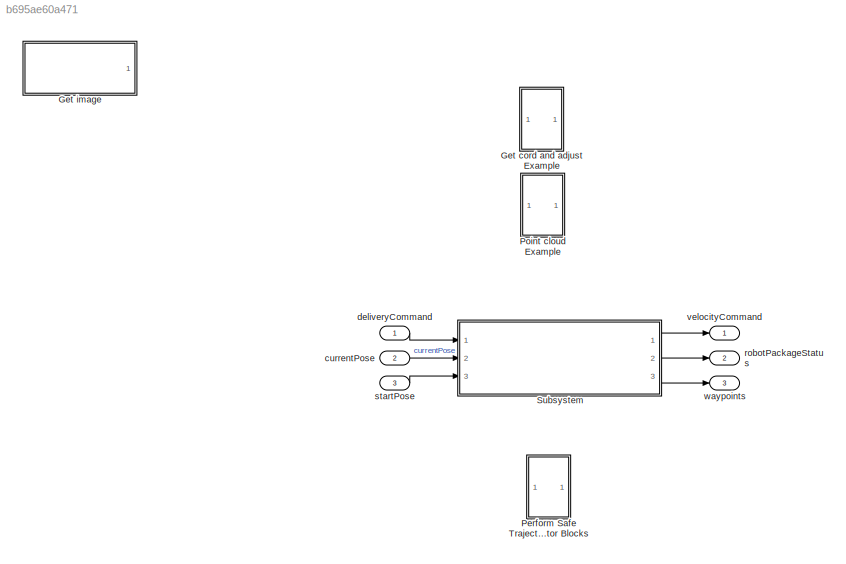
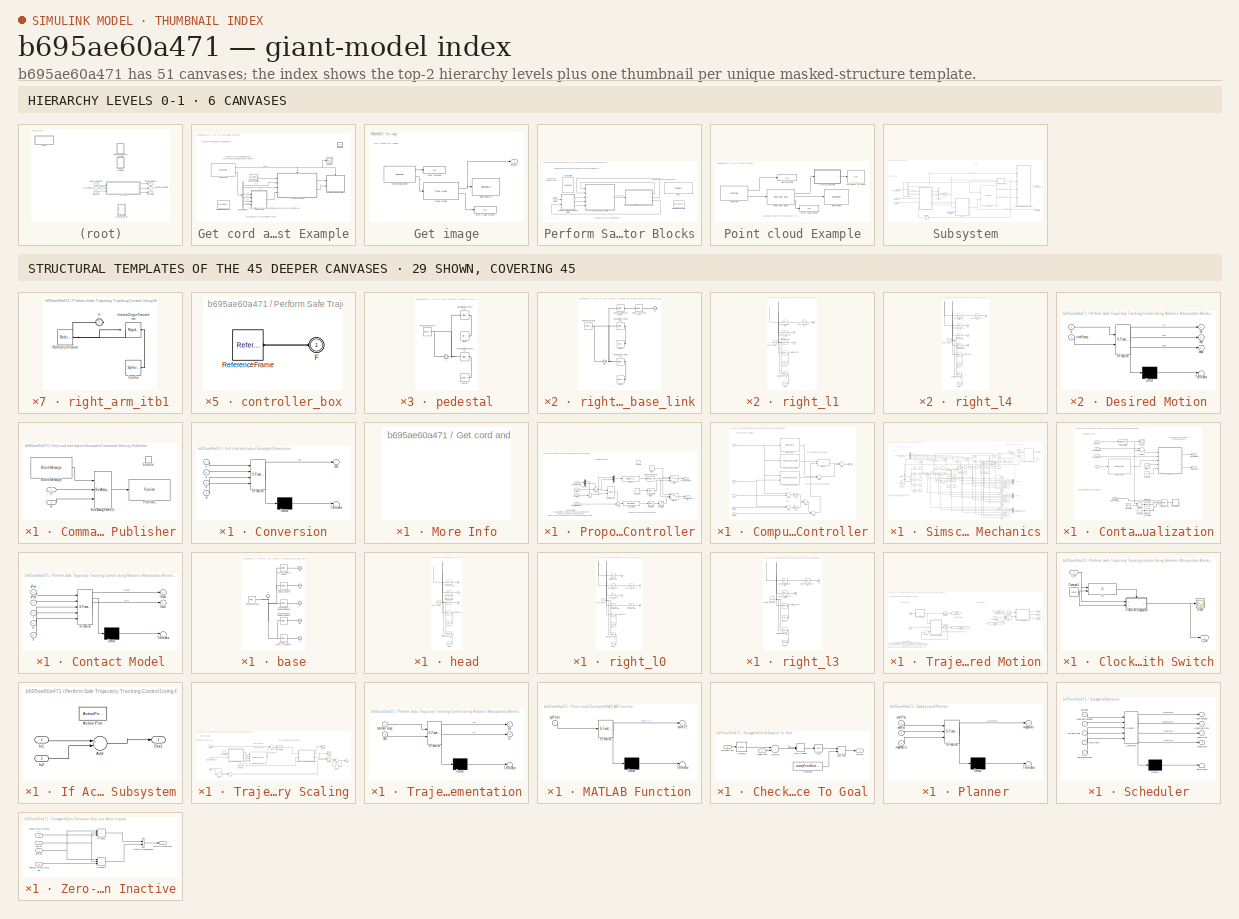
[diagram: thumbnail index - top-2 hierarchy levels (6 canvases) + 29 structural-template representatives of the remaining 45 canvases]
MODEL slx_b695ae60a471
KIND model
CONFIG AbsTol = auto
CONFIG EnableMultiTasking = on
CONFIG FixedStep = 0.02
CONFIG MaxStep = auto
CONFIG MinStep = auto
CONFIG RelTol = 1e-3
CONFIG SampleTimeConstraint = Unconstrained
CONFIG Solver = FixedStepDiscrete
CONFIG SolverName = FixedStepDiscrete
CONFIG StartTime = 0.0
CONFIG StopTime = Inf
BLOCK [SubSystem] Get cord and adjust Example
  Ports = []
  RequestExecContextInheritance = off
BLOCK [BusSelector] Get cord and adjust Example/Bus Selector3
  OutputAsBus = off
  OutputSignals = Pose.Pose.Position.X,Pose.Pose.Position.Y,Pose.Pose.Orientation.X,Pose.Pose.Orientation.Y,Pose.Pose.Orientation.Z,Pose.Pose.Orientation.W
  Ports = [1, 6]
BLOCK [SubSystem] Get cord and adjust Example/Command Velocity Publisher
  Ports = [2, 0, 1]
  RequestExecContextInheritance = off
BLOCK [Reference] Get cord and adjust Example/Command Velocity Publisher/Blank Message  REF=robotlib/Blank Message
  Ports = [0, 1]
  SourceBlock = robotlib/Blank Message
  SourceProductBaseCode = RR
  SourceProductName = ROS Toolbox
  SourceType = ROS Blank Message
BLOCK [BusAssignment] Get cord and adjust Example/Command Velocity Publisher/Bus Assignment1
  AssignedSignals = Linear.X,Angular.Z
  DialogController = Simulink.DDGSource_BusAssignment
  Ports = [3, 1]
BLOCK [EnablePort] Get cord and adjust Example/Command Velocity Publisher/Enable
  Ports = []
BLOCK [Reference] Get cord and adjust Example/Command Velocity Publisher/Publish2  REF=robotlib/Publish
  AttributesFormatString = %<messageType>
  Ports = [1]
  SourceBlock = robotlib/Publish
  SourceProductBaseCode = RR
  SourceProductName = ROS Toolbox
  SourceType = ROS Publish
BLOCK [Inport] Get cord and adjust Example/Command Velocity Publisher/v
  IconDisplay = Port number
BLOCK [Inport] Get cord and adjust Example/Command Velocity Publisher/w
  IconDisplay = Port number
  Port = 2
BLOCK [SubSystem] Get cord and adjust Example/Conversion
  ErrorFcn = Stateflow.Translate.translate
  PermitHierarchicalResolution = ExplicitOnly
  Ports = [4, 1]
  RequestExecContextInheritance = off
  SFBlockType = MATLAB Function
  TreatAsAtomicUnit = on
BLOCK [Demux] Get cord and adjust Example/Conversion/ Demux 
  Outputs = 1
  Ports = [1, 1]
BLOCK [S-Function] Get cord and adjust Example/Conversion/ SFunction 
  EnableBusSupport = off
  FunctionName = sf_sfun
  PortCounts = [4 2]
  Ports = [4, 2]
  SFcnIsStateOwnerBlock = off
  SFunctionDeploymentMode = off
  Tag = Stateflow S-Function 1
BLOCK [Terminator] Get cord and adjust Example/Conversion/ Terminator 
BLOCK [Inport] Get cord and adjust Example/Conversion/w
  IconDisplay = Port number
  Port = 4
BLOCK [Inport] Get cord and adjust Example/Conversion/x
  IconDisplay = Port number
BLOCK [Inport] Get cord and adjust Example/Conversion/y
  IconDisplay = Port number
  Port = 2
BLOCK [Outport] Get cord and adjust Example/Conversion/yaw
  IconDisplay = Port number
  VectorParamsAs1DForOutWhenUnconnected = off
BLOCK [Inport] Get cord and adjust Example/Conversion/z
  IconDisplay = Port number
  Port = 3
BLOCK [Constant] Get cord and adjust Example/Desired Position
  Value = [-10 10]
BLOCK [SubSystem] Get cord and adjust Example/More Info
  OpenFcn = showdemo(bdroot(gcb))
  Ports = []
  RequestExecContextInheritance = off
BLOCK [SubSystem] Get cord and adjust Example/Proportional Controller
  Ports = [4, 2, 1]
  RequestExecContextInheritance = off
BLOCK [Outport] Get cord and adjust Example/Proportional Controller/Angular Velocity (w)
  IconDisplay = Port number
  Port = 2
  VectorParamsAs1DForOutWhenUnconnected = off
BLOCK [Fcn] Get cord and adjust Example/Proportional Controller/Bound [-pi,pi]
  Expr = atan2(sin(u),cos(u))
BLOCK [Constant] Get cord and adjust Example/Proportional Controller/Constant
BLOCK [Demux] Get cord and adjust Example/Proportional Controller/Demux1
  DisplayOption = bar
  Outputs = 2
  Ports = [1, 2]
BLOCK [Trigonometry] Get cord and adjust Example/Proportional Controller/Desired Yaw
  Operator = atan2
  Ports = [2, 1]
BLOCK [Inport] Get cord and adjust Example/Proportional Controller/Desired position
  IconDisplay = Port number
BLOCK [Fcn] Get cord and adjust Example/Proportional Controller/Distance
  Expr = sqrt(u(1)^2+u(2)^2)
BLOCK [Reference] Get cord and adjust Example/Proportional Controller/Distance Threshold  REF=simulink/Logic and Bit
Operations/Compare
To Constant
  Ports = [1, 1]
  SourceBlock = simulink/Logic and Bit\nOperations/Compare\nTo Constant
  SourceProductBaseCode = SL
  SourceProductName = Simulink
  SourceType = Compare To Constant
BLOCK [EnablePort] Get cord and adjust Example/Proportional Controller/Enable
  Ports = []
BLOCK [Reference] Get cord and adjust Example/Proportional Controller/Gain (Slider)  REF=simulink/Math
Operations/Slider
Gain
  Ports = [1, 1]
  SourceBlock = simulink/Math\nOperations/Slider\nGain
  SourceProductBaseCode = SL
  SourceProductName = Simulink
  SourceType = Slider Gain
BLOCK [Reference] Get cord and adjust Example/Proportional Controller/Linear Velocity (Slider)  REF=simulink/Math
Operations/Slider
Gain
  Ports = [1, 1]
  SourceBlock = simulink/Math\nOperations/Slider\nGain
  SourceProductBaseCode = SL
  SourceProductName = Simulink
  SourceType = Slider Gain
BLOCK [Outport] Get cord and adjust Example/Proportional Controller/Linear Velocity (v)
  IconDisplay = Port number
  VectorParamsAs1DForOutWhenUnconnected = off
BLOCK [Mux] Get cord and adjust Example/Proportional Controller/Mux
  DisplayOption = bar
  Inputs = 2
  Ports = [2, 1]
BLOCK [Inport] Get cord and adjust Example/Proportional Controller/Orientation (theta)
  IconDisplay = Port number
  Port = 4
BLOCK [Inport] Get cord and adjust Example/Proportional Controller/Position X
  IconDisplay = Port number
  Port = 2
BLOCK [Inport] Get cord and adjust Example/Proportional Controller/Position Y
  IconDisplay = Port number
  Port = 3
BLOCK [Saturate] Get cord and adjust Example/Proportional Controller/Saturation
  InputPortMap = u0
  Ports = [1, 1]
BLOCK [Constant] Get cord and adjust Example/Proportional Controller/Stop
  Value = 0
BLOCK [Sum] Get cord and adjust Example/Proportional Controller/Sum
  IconShape = round
  InputSameDT = off
  Inputs = +-|
  OutDataTypeStr = Inherit: Inherit via internal rule
  Ports = [2, 1]
  SaturateOnIntegerOverflow = off
BLOCK [Sum] Get cord and adjust Example/Proportional Controller/Sum1
  IconShape = round
  InputSameDT = off
  Inputs = +-|
  OutDataTypeStr = Inherit: Inherit via internal rule
  Ports = [2, 1]
  SaturateOnIntegerOverflow = off
BLOCK [Sum] Get cord and adjust Example/Proportional Controller/Sum3
  IconShape = round
  InputSameDT = off
  Inputs = +-|
  OutDataTypeStr = Inherit: Inherit via internal rule
  Ports = [2, 1]
  SaturateOnIntegerOverflow = off
BLOCK [Switch] Get cord and adjust Example/Proportional Controller/Switch
  Criteria = u2 ~= 0
  InputSameDT = off
  SaturateOnIntegerOverflow = off
BLOCK [Switch] Get cord and adjust Example/Proportional Controller/Switch1
  Criteria = u2 ~= 0
  InputSameDT = off
  SaturateOnIntegerOverflow = off
BLOCK [Scope] Get cord and adjust Example/Scope
  Floating = off
  NumInputPorts = 1
  Ports = [1]
  ScopeSpecificationString = Simulink.scopes.TimeScopeBlockCfg('CurrentConfiguration', extmgr.ConfigurationSet(extmgr.Configuration('Core','General UI',true,'FigureColor',[0.156862745098039 0.156862745098039 0.156862745098039]),extmgr.Configuration('Core','Source UI',true),extmgr.Configuration('Sources','WiredSimulink',true,'DataLoggingLimitDataPoints',true,'DataLoggingMaxPoints','1000','DataLoggingSaveFormat','Array','DataLo...<+2804ch>
BLOCK [MATLABSystem] Get cord and adjust Example/Simulation Rate Control
  MaskDisplay = disp('Rate Control');
  MaskType = ExampleHelperSimulationRateControl
  Ports = []
  SampleTime = 0.02
  System = ExampleHelperSimulationRateControl
BLOCK [Reference] Get cord and adjust Example/Subscribe  REF=robotlib/Subscribe
  Ports = [0, 2]
  SourceBlock = robotlib/Subscribe
  SourceProductBaseCode = RR
  SourceProductName = ROS Toolbox
  SourceType = ROS Subscribe
BLOCK [SubSystem] Get image
  Ports = [0, 1]
  RequestExecContextInheritance = off
  ShowPortLabels = FromPortBlockName
BLOCK [Display] Get image/Error Code Output
  Decimation = 1
  Ports = [1]
BLOCK [Display] Get image/New Message
  Decimation = 1
  Ports = [1]
BLOCK [Reference] Get image/Read Image  REF=robotlib/Read Image
  Ports = [1, 2]
  SourceBlock = robotlib/Read Image
  SourceProductBaseCode = RR
  SourceProductName = ROS Toolbox
  SourceType = ros.slros.internal.block.ReadImage
BLOCK [VideoViewer] Get image/Video Viewer1
  FigPos = [515 695 646 522]
  Ports = [1]
  ScopeSpecificationString = vipscopes.VideoViewerScopeCfg('CurrentConfiguration', extmgr.ConfigurationSet(extmgr.Configuration('Core','General UI',true),extmgr.Configuration('Core','Source UI',true),extmgr.Configuration('Sources','WiredSimulink',true),extmgr.Configuration('Visuals','Video',true),extmgr.Configuration('Tools','Image Navigation Tools',true),extmgr.Configuration('Tools','Image Tool',true),extmgr.Configuration('T...<+76ch>
BLOCK [Outport] Get image/imgLeft
  IconDisplay = Port number
BLOCK [Reference] Get image/imgLeftSubscriber  REF=robotlib/Subscribe
  Ports = [0, 2]
  SourceBlock = robotlib/Subscribe
  SourceProductBaseCode = RR
  SourceProductName = ROS Toolbox
  SourceType = ROS Subscribe
BLOCK [SubSystem] Perform Safe Trajectory Tracking Control Using Robotics Manipulator Blocks
  Ports = []
  RequestExecContextInheritance = off
BLOCK [Clock] Perform Safe Trajectory Tracking Control Using Robotics Manipulator Blocks/Clock
BLOCK [SubSystem] Perform Safe Trajectory Tracking Control Using Robotics Manipulator Blocks/Computed Torque Controller
  Ports = [5, 1]
  RequestExecContextInheritance = off
BLOCK [Sum] Perform Safe Trajectory Tracking Control Using Robotics Manipulator Blocks/Computed Torque Controller/Add
  InputSameDT = off
  Inputs = -+
  OutDataTypeStr = Inherit: Inherit via internal rule
  Ports = [2, 1]
  SaturateOnIntegerOverflow = off
BLOCK [Sum] Perform Safe Trajectory Tracking Control Using Robotics Manipulator Blocks/Computed Torque Controller/Add1
  InputSameDT = off
  OutDataTypeStr = Inherit: Inherit via internal rule
  Ports = [2, 1]
  SaturateOnIntegerOverflow = off
BLOCK [Sum] Perform Safe Trajectory Tracking Control Using Robotics Manipulator Blocks/Computed Torque Controller/Add2
  InputSameDT = off
  Inputs = +-
  OutDataTypeStr = Inherit: Inherit via internal rule
  Ports = [2, 1]
  SaturateOnIntegerOverflow = off
BLOCK [Sum] Perform Safe Trajectory Tracking Control Using Robotics Manipulator Blocks/Computed Torque Controller/Add3
  InputSameDT = off
  Inputs = +-
  OutDataTypeStr = Inherit: Inherit via internal rule
  Ports = [2, 1]
  SaturateOnIntegerOverflow = off
BLOCK [Sum] Perform Safe Trajectory Tracking Control Using Robotics Manipulator Blocks/Computed Torque Controller/Add4
  InputSameDT = off
  OutDataTypeStr = Inherit: Inherit via internal rule
  Ports = [2, 1]
  SaturateOnIntegerOverflow = off
BLOCK [Sum] Perform Safe Trajectory Tracking Control Using Robotics Manipulator Blocks/Computed Torque Controller/Add5
  InputSameDT = off
  OutDataTypeStr = Inherit: Inherit via internal rule
  Ports = [2, 1]
  SaturateOnIntegerOverflow = off
BLOCK [Reference] Perform Safe Trajectory Tracking Control Using Robotics Manipulator Blocks/Computed Torque Controller/Gravity Torque  REF=robotmaniplib/Gravity Torque
  Ports = [1, 1]
  SourceBlock = robotmaniplib/Gravity Torque
  SourceProductBaseCode = RO
  SourceProductName = Robotics System Toolbox
  SourceType = Gravity Torque
BLOCK [Reference] Perform Safe Trajectory Tracking Control Using Robotics Manipulator Blocks/Computed Torque Controller/Joint Space Mass Matrix  REF=robotmaniplib/Joint Space Mass Matrix
  Ports = [1, 1]
  SourceBlock = robotmaniplib/Joint Space Mass Matrix
  SourceProductBaseCode = RO
  SourceProductName = Robotics System Toolbox
  SourceType = Joint Space Mass Matrix
BLOCK [Gain] Perform Safe Trajectory Tracking Control Using Robotics Manipulator Blocks/Computed Torque Controller/Kd
  Gain = 20
  OutDataTypeStr = Inherit: Inherit via internal rule
  ParamDataTypeStr = Inherit: Inherit via internal rule
  SaturateOnIntegerOverflow = off
BLOCK [Gain] Perform Safe Trajectory Tracking Control Using Robotics Manipulator Blocks/Computed Torque Controller/Kp
  Gain = 100
  OutDataTypeStr = Inherit: Inherit via internal rule
  ParamDataTypeStr = Inherit: Inherit via internal rule
  SaturateOnIntegerOverflow = off
BLOCK [Product] Perform Safe Trajectory Tracking Control Using Robotics Manipulator Blocks/Computed Torque Controller/Product
  InputSameDT = off
  Multiplication = Matrix(*)
  OutDataTypeStr = Inherit: Inherit via internal rule
  Ports = [2, 1]
  RndMeth = Floor
  SaturateOnIntegerOverflow = off
BLOCK [Reference] Perform Safe Trajectory Tracking Control Using Robotics Manipulator Blocks/Computed Torque Controller/Velocity Product Torque  REF=robotmaniplib/Velocity Product Torque
  Ports = [2, 1]
  SourceBlock = robotmaniplib/Velocity Product Torque
  SourceProductBaseCode = RO
  SourceProductName = Robotics System Toolbox
  SourceType = Velocity Product Torque
BLOCK [Inport] Perform Safe Trajectory Tracking Control Using Robotics Manipulator Blocks/Computed Torque Controller/ddqd
  IconDisplay = Port number
  Port = 5
BLOCK [Inport] Perform Safe Trajectory Tracking Control Using Robotics Manipulator Blocks/Computed Torque Controller/dq
  IconDisplay = Port number
  Port = 2
BLOCK [Inport] Perform Safe Trajectory Tracking Control Using Robotics Manipulator Blocks/Computed Torque Controller/dqd
  IconDisplay = Port number
  Port = 4
BLOCK [Inport] Perform Safe Trajectory Tracking Control Using Robotics Manipulator Blocks/Computed Torque Controller/q
  IconDisplay = Port number
BLOCK [Inport] Perform Safe Trajectory Tracking Control Using Robotics Manipulator Blocks/Computed Torque Controller/qd
  IconDisplay = Port number
  Port = 3
BLOCK [Outport] Perform Safe Trajectory Tracking Control Using Robotics Manipulator Blocks/Computed Torque Controller/u
  IconDisplay = Port number
  VectorParamsAs1DForOutWhenUnconnected = off
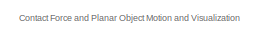
[diagram: Perform Safe Trajectory Tracking Control Using Robotics Manipulator Blocks/Simscape Model with Simple Contact Mechanics - part 1/5, top right region]
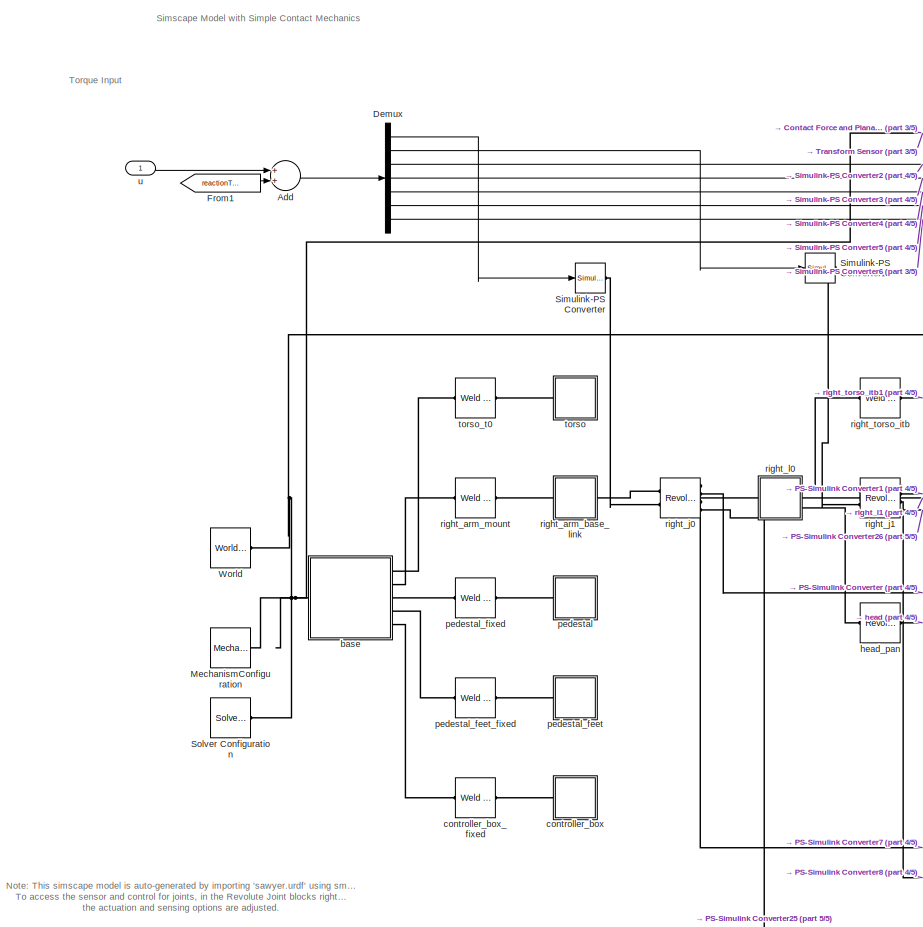
[diagram: Perform Safe Trajectory Tracking Control Using Robotics Manipulator Blocks/Simscape Model with Simple Contact Mechanics - part 2/5, middle left region]
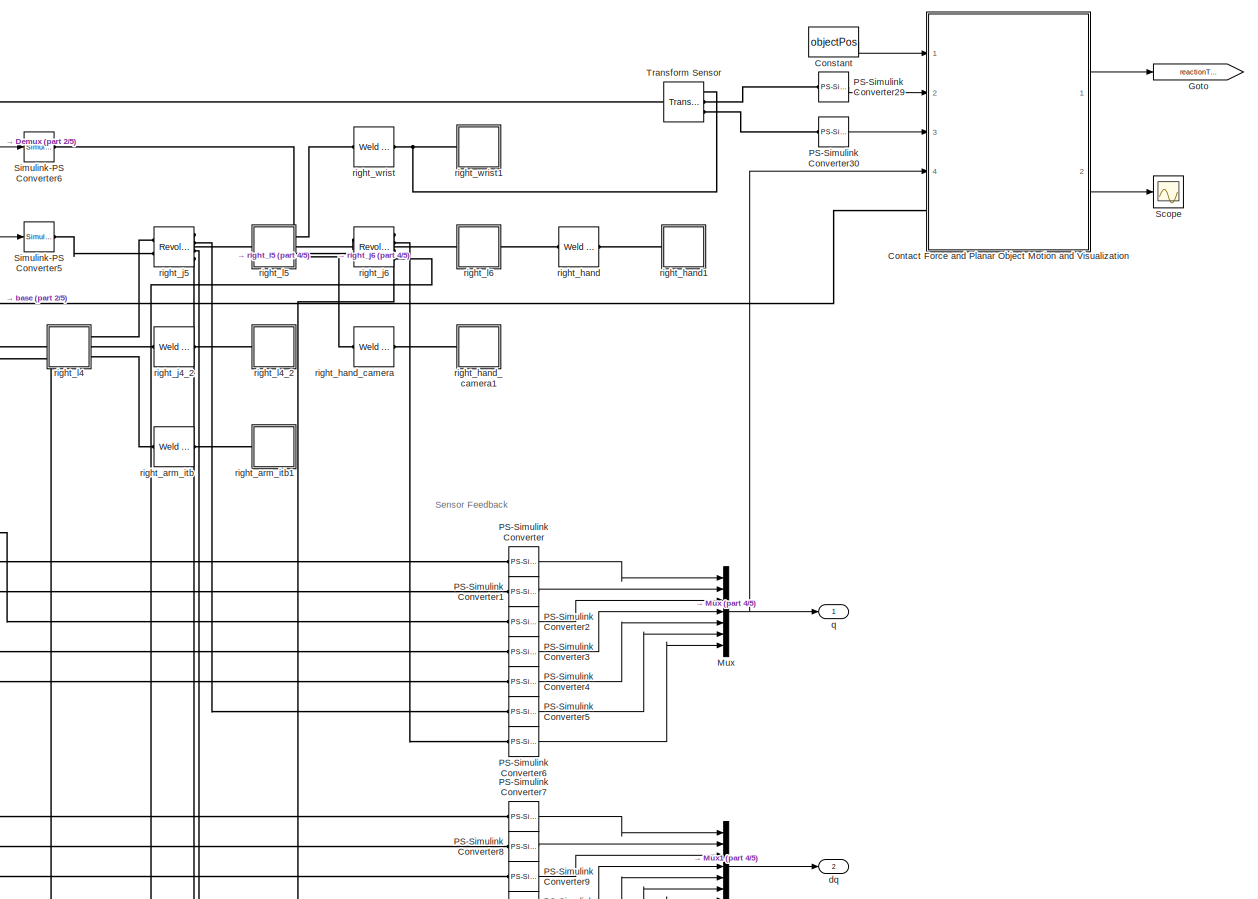
[diagram: Perform Safe Trajectory Tracking Control Using Robotics Manipulator Blocks/Simscape Model with Simple Contact Mechanics - part 3/5, middle right region]
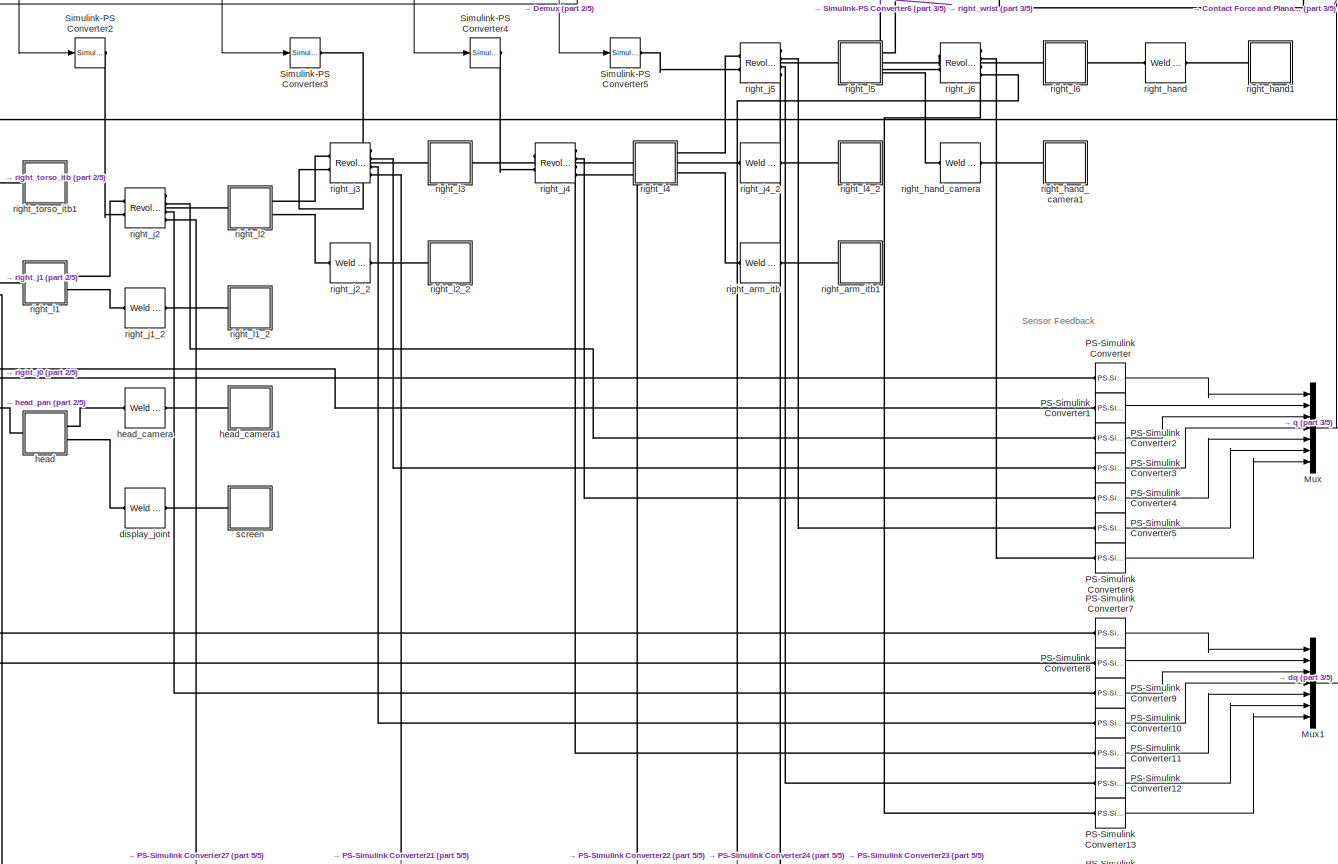
[diagram: Perform Safe Trajectory Tracking Control Using Robotics Manipulator Blocks/Simscape Model with Simple Contact Mechanics - part 4/5, central region]
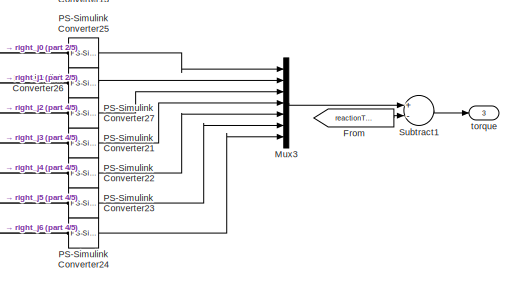
[diagram: Perform Safe Trajectory Tracking Control Using Robotics Manipulator Blocks/Simscape Model with Simple Contact Mechanics - part 5/5, bottom right region]
BLOCK [SubSystem] Perform Safe Trajectory Tracking Control Using Robotics Manipulator Blocks/Simscape Model with Simple Contact Mechanics
  Ports = [1, 3]
  RequestExecContextInheritance = off
BLOCK [Sum] Perform Safe Trajectory Tracking Control Using Robotics Manipulator Blocks/Simscape Model with Simple Contact Mechanics/Add
  InputSameDT = off
  OutDataTypeStr = Inherit: Inherit via internal rule
  Ports = [2, 1]
  SaturateOnIntegerOverflow = off
BLOCK [Constant] Perform Safe Trajectory Tracking Control Using Robotics Manipulator Blocks/Simscape Model with Simple Contact Mechanics/Constant
  Value = objectPos
BLOCK [SubSystem] Perform Safe Trajectory Tracking Control Using Robotics Manipulator Blocks/Simscape Model with Simple Contact Mechanics/Contact Force and Planar Object Motion and Visualization
  Ports = [4, 2, 0, 0, 0, 1]
  RequestExecContextInheritance = off
BLOCK [Reference] Perform Safe Trajectory Tracking Control Using Robotics Manipulator Blocks/Simscape Model with Simple Contact Mechanics/Contact Force and Planar Object Motion and Visualization/Cartesian Joint  REF=sm_lib/Joints/Cartesian
Joint
  Ports = [0, 0, 0, 0, 0, 3, 1]
  SourceBlock = sm_lib/Joints/Cartesian\nJoint
  SourceProductBaseCode = MS
  SourceProductName = Simscape Multibody
  SourceType = Cartesian\nJoint
BLOCK [Constant] Perform Safe Trajectory Tracking Control Using Robotics Manipulator Blocks/Simscape Model with Simple Contact Mechanics/Contact Force and Planar Object Motion and Visualization/Constant1
  Value = 0
BLOCK [Constant] Perform Safe Trajectory Tracking Control Using Robotics Manipulator Blocks/Simscape Model with Simple Contact Mechanics/Contact Force and Planar Object Motion and Visualization/Constant2
  Value = refPos
BLOCK [SubSystem] Perform Safe Trajectory Tracking Control Using Robotics Manipulator Blocks/Simscape Model with Simple Contact Mechanics/Contact Force and Planar Object Motion and Visualization/Contact Model
  ErrorFcn = Stateflow.Translate.translate
  PermitHierarchicalResolution = ExplicitOnly
  Ports = [5, 2]
  RequestExecContextInheritance = off
  SFBlockType = MATLAB Function
  TreatAsAtomicUnit = on
BLOCK [Demux] Perform Safe Trajectory Tracking Control Using Robotics Manipulator Blocks/Simscape Model with Simple Contact Mechanics/Contact Force and Planar Object Motion and Visualization/Contact Model/ Demux 
  Outputs = 1
  Ports = [1, 1]
BLOCK [S-Function] Perform Safe Trajectory Tracking Control Using Robotics Manipulator Blocks/Simscape Model with Simple Contact Mechanics/Contact Force and Planar Object Motion and Visualization/Contact Model/ SFunction 
  EnableBusSupport = off
  FunctionName = sf_sfun
  PortCounts = [5 3]
  Ports = [5, 3]
  SFcnIsStateOwnerBlock = off
  SFunctionDeploymentMode = off
  Tag = Stateflow S-Function 7
BLOCK [Terminator] Perform Safe Trajectory Tracking Control Using Robotics Manipulator Blocks/Simscape Model with Simple Contact Mechanics/Contact Force and Planar Object Motion and Visualization/Contact Model/ Terminator 
BLOCK [Inport] Perform Safe Trajectory Tracking Control Using Robotics Manipulator Blocks/Simscape Model with Simple Contact Mechanics/Contact Force and Planar Object Motion and Visualization/Contact Model/J
  IconDisplay = Port number
  Port = 3
BLOCK [Inport] Perform Safe Trajectory Tracking Control Using Robotics Manipulator Blocks/Simscape Model with Simple Contact Mechanics/Contact Force and Planar Object Motion and Visualization/Contact Model/d
  IconDisplay = Port number
  Port = 5
BLOCK [Outport] Perform Safe Trajectory Tracking Control Using Robotics Manipulator Blocks/Simscape Model with Simple Contact Mechanics/Contact Force and Planar Object Motion and Visualization/Contact Model/force
  IconDisplay = Port number
  Port = 2
  VectorParamsAs1DForOutWhenUnconnected = off
BLOCK [Inport] Perform Safe Trajectory Tracking Control Using Robotics Manipulator Blocks/Simscape Model with Simple Contact Mechanics/Contact Force and Planar Object Motion and Visualization/Contact Model/k
  IconDisplay = Port number
  Port = 4
BLOCK [Outport] Perform Safe Trajectory Tracking Control Using Robotics Manipulator Blocks/Simscape Model with Simple Contact Mechanics/Contact Force and Planar Object Motion and Visualization/Contact Model/torque
  IconDisplay = Port number
  VectorParamsAs1DForOutWhenUnconnected = off
BLOCK [Inport] Perform Safe Trajectory Tracking Control Using Robotics Manipulator Blocks/Simscape Model with Simple Contact Mechanics/Contact Force and Planar Object Motion and Visualization/Contact Model/vPen
  IconDisplay = Port number
  Port = 2
BLOCK [Inport] Perform Safe Trajectory Tracking Control Using Robotics Manipulator Blocks/Simscape Model with Simple Contact Mechanics/Contact Force and Planar Object Motion and Visualization/Contact Model/xPen
  IconDisplay = Port number
BLOCK [Constant] Perform Safe Trajectory Tracking Control Using Robotics Manipulator Blocks/Simscape Model with Simple Contact Mechanics/Contact Force and Planar Object Motion and Visualization/Damping
  Value = 1e2
BLOCK [Reference] Perform Safe Trajectory Tracking Control Using Robotics Manipulator Blocks/Simscape Model with Simple Contact Mechanics/Contact Force and Planar Object Motion and Visualization/Get Jacobian  REF=robotmaniplib/Get Jacobian
  Ports = [1, 1]
  SourceBlock = robotmaniplib/Get Jacobian
  SourceProductBaseCode = RO
  SourceProductName = Robotics System Toolbox
  SourceType = Get Jacobian
BLOCK [SubSystem] Perform Safe Trajectory Tracking Control Using Robotics Manipulator Blocks/Simscape Model with Simple Contact Mechanics/Contact Force and Planar Object Motion and Visualization/Planar Object
  Ports = [0, 0, 0, 0, 0, 1]
  RequestExecContextInheritance = off
BLOCK [PMIOPort] Perform Safe Trajectory Tracking Control Using Robotics Manipulator Blocks/Simscape Model with Simple Contact Mechanics/Contact Force and Planar Object Motion and Visualization/Planar Object/F
  Side = Left
BLOCK [Reference] Perform Safe Trajectory Tracking Control Using Robotics Manipulator Blocks/Simscape Model with Simple Contact Mechanics/Contact Force and Planar Object Motion and Visualization/Planar Object/Inertia  REF=sm_lib/Body Elements/Brick Solid
  Ports = [0, 0, 0, 0, 0, 0, 1]
  SourceBlock = sm_lib/Body Elements/Brick Solid
  SourceProductBaseCode = MS
  SourceProductName = Simscape Multibody
  SourceType = Brick Solid
BLOCK [Reference] Perform Safe Trajectory Tracking Control Using Robotics Manipulator Blocks/Simscape Model with Simple Contact Mechanics/Contact Force and Planar Object Motion and Visualization/Planar Object/InertiaOriginTransform  REF=sm_lib/Frames and
Transforms/Rigid
Transform
  Ports = [0, 0, 0, 0, 0, 1, 1]
  SourceBlock = sm_lib/Frames and\nTransforms/Rigid\nTransform
  SourceProductBaseCode = MS
  SourceProductName = Simscape Multibody
  SourceType = Rigid\nTransform
BLOCK [Reference] Perform Safe Trajectory Tracking Control Using Robotics Manipulator Blocks/Simscape Model with Simple Contact Mechanics/Contact Force and Planar Object Motion and Visualization/Planar Object/ReferenceFrame  REF=sm_lib/Frames and
Transforms/Reference
Frame
  Ports = [0, 0, 0, 0, 0, 0, 1]
  SourceBlock = sm_lib/Frames and\nTransforms/Reference\nFrame
  SourceProductBaseCode = MS
  SourceProductName = Simscape Multibody
  SourceType = Reference\nFrame
BLOCK [Scope] Perform Safe Trajectory Tracking Control Using Robotics Manipulator Blocks/Simscape Model with Simple Contact Mechanics/Contact Force and Planar Object Motion and Visualization/Scope1
  Floating = off
  NumInputPorts = 1
  Ports = [1]
  ScopeSpecificationString = Simulink.scopes.TimeScopeBlockCfg('CurrentConfiguration', extmgr.ConfigurationSet(extmgr.Configuration('Core','General UI',true),extmgr.Configuration('Core','Source UI',true),extmgr.Configuration('Sources','WiredSimulink',true),extmgr.Configuration('Visuals','Time Domain',true,'SerializedDisplays',{struct('MinYLimReal','0.43697','MaxYLimReal','0.78005','YLabelReal','','MinYLimMag','0.43697','MaxYL...<+1336ch>
BLOCK [Reference] Perform Safe Trajectory Tracking Control Using Robotics Manipulator Blocks/Simscape Model with Simple Contact Mechanics/Contact Force and Planar Object Motion and Visualization/Simulink-PS Converter7  REF=nesl_utility/Simulink-PS
Converter
  Ports = [1, 0, 0, 0, 0, 0, 1]
  SourceBlock = nesl_utility/Simulink-PS\nConverter
  SourceProductBaseCode = SS
  SourceProductName = Simscape
  SourceType = Simulink-PS\nConverter
BLOCK [Reference] Perform Safe Trajectory Tracking Control Using Robotics Manipulator Blocks/Simscape Model with Simple Contact Mechanics/Contact Force and Planar Object Motion and Visualization/Simulink-PS Converter8  REF=nesl_utility/Simulink-PS
Converter
  Ports = [1, 0, 0, 0, 0, 0, 1]
  SourceBlock = nesl_utility/Simulink-PS\nConverter
  SourceProductBaseCode = SS
  SourceProductName = Simscape
  SourceType = Simulink-PS\nConverter
BLOCK [Constant] Perform Safe Trajectory Tracking Control Using Robotics Manipulator Blocks/Simscape Model with Simple Contact Mechanics/Contact Force and Planar Object Motion and Visualization/Stiffness
  Value = 1e4
BLOCK [Sum] Perform Safe Trajectory Tracking Control Using Robotics Manipulator Blocks/Simscape Model with Simple Contact Mechanics/Contact Force and Planar Object Motion and Visualization/Subtract
  InputSameDT = off
  Inputs = +-
  OutDataTypeStr = Inherit: Inherit via internal rule
  Ports = [2, 1]
  SaturateOnIntegerOverflow = off
BLOCK [Sum] Perform Safe Trajectory Tracking Control Using Robotics Manipulator Blocks/Simscape Model with Simple Contact Mechanics/Contact Force and Planar Object Motion and Visualization/Subtract2
  InputSameDT = off
  OutDataTypeStr = Inherit: Inherit via internal rule
  Ports = [2, 1]
  SaturateOnIntegerOverflow = off
BLOCK [Inport] Perform Safe Trajectory Tracking Control Using Robotics Manipulator Blocks/Simscape Model with Simple Contact Mechanics/Contact Force and Planar Object Motion and Visualization/endeffectorPos
  IconDisplay = Port number
  Port = 2
BLOCK [Inport] Perform Safe Trajectory Tracking Control Using Robotics Manipulator Blocks/Simscape Model with Simple Contact Mechanics/Contact Force and Planar Object Motion and Visualization/endeffectorVel
  IconDisplay = Port number
  Port = 3
BLOCK [StateSpace] Perform Safe Trajectory Tracking Control Using Robotics Manipulator Blocks/Simscape Model with Simple Contact Mechanics/Contact Force and Planar Object Motion and Visualization/low pass filter
  A = -10
  B = 10
  D = 0
  InitialCondition = objectPos
  Ports = [1, 1]
BLOCK [Inport] Perform Safe Trajectory Tracking Control Using Robotics Manipulator Blocks/Simscape Model with Simple Contact Mechanics/Contact Force and Planar Object Motion and Visualization/objectPos
  IconDisplay = Port number
BLOCK [Inport] Perform Safe Trajectory Tracking Control Using Robotics Manipulator Blocks/Simscape Model with Simple Contact Mechanics/Contact Force and Planar Object Motion and Visualization/q
  IconDisplay = Port number
  Port = 4
BLOCK [Outport] Perform Safe Trajectory Tracking Control Using Robotics Manipulator Blocks/Simscape Model with Simple Contact Mechanics/Contact Force and Planar Object Motion and Visualization/reaction force
  IconDisplay = Port number
  Port = 2
  VectorParamsAs1DForOutWhenUnconnected = off
BLOCK [Outport] Perform Safe Trajectory Tracking Control Using Robotics Manipulator Blocks/Simscape Model with Simple Contact Mechanics/Contact Force and Planar Object Motion and Visualization/reaction torque
  IconDisplay = Port number
  VectorParamsAs1DForOutWhenUnconnected = off
BLOCK [PMIOPort] Perform Safe Trajectory Tracking Control Using Robotics Manipulator Blocks/Simscape Model with Simple Contact Mechanics/Contact Force and Planar Object Motion and Visualization/reference frame
  Side = Left
BLOCK [Demux] Perform Safe Trajectory Tracking Control Using Robotics Manipulator Blocks/Simscape Model with Simple Contact Mechanics/Demux
  DisplayOption = bar
  Outputs = 7
  Ports = [1, 7]
BLOCK [From] Perform Safe Trajectory Tracking Control Using Robotics Manipulator Blocks/Simscape Model with Simple Contact Mechanics/From
  GotoTag = reactionTorque
BLOCK [From] Perform Safe Trajectory Tracking Control Using Robotics Manipulator Blocks/Simscape Model with Simple Contact Mechanics/From1
  GotoTag = reactionTorque
BLOCK [Goto] Perform Safe Trajectory Tracking Control Using Robotics Manipulator Blocks/Simscape Model with Simple Contact Mechanics/Goto
  GotoTag = reactionTorque
BLOCK [Reference] Perform Safe Trajectory Tracking Control Using Robotics Manipulator Blocks/Simscape Model with Simple Contact Mechanics/MechanismConfiguration  REF=sm_lib/Utilities/Mechanism
Configuration
  Ports = [0, 0, 0, 0, 0, 0, 1]
  SourceBlock = sm_lib/Utilities/Mechanism\nConfiguration
  SourceProductBaseCode = MS
  SourceProductName = Simscape Multibody
  SourceType = Mechanism\nConfiguration
BLOCK [Mux] Perform Safe Trajectory Tracking Control Using Robotics Manipulator Blocks/Simscape Model with Simple Contact Mechanics/Mux
  DisplayOption = bar
  Inputs = 7
  Ports = [7, 1]
BLOCK [Mux] Perform Safe Trajectory Tracking Control Using Robotics Manipulator Blocks/Simscape Model with Simple Contact Mechanics/Mux1
  DisplayOption = bar
  Inputs = 7
  Ports = [7, 1]
BLOCK [Mux] Perform Safe Trajectory Tracking Control Using Robotics Manipulator Blocks/Simscape Model with Simple Contact Mechanics/Mux3
  DisplayOption = bar
  Inputs = 7
  Ports = [7, 1]
BLOCK [Reference] Perform Safe Trajectory Tracking Control Using Robotics Manipulator Blocks/Simscape Model with Simple Contact Mechanics/PS-Simulink Converter  REF=nesl_utility/PS-Simulink
Converter
  Ports = [0, 1, 0, 0, 0, 1]
  SourceBlock = nesl_utility/PS-Simulink\nConverter
  SourceProductBaseCode = SS
  SourceProductName = Simscape
  SourceType = PS-Simulink\nConverter
BLOCK [Reference] Perform Safe Trajectory Tracking Control Using Robotics Manipulator Blocks/Simscape Model with Simple Contact Mechanics/PS-Simulink Converter1  REF=nesl_utility/PS-Simulink
Converter
  Ports = [0, 1, 0, 0, 0, 1]
  SourceBlock = nesl_utility/PS-Simulink\nConverter
  SourceProductBaseCode = SS
  SourceProductName = Simscape
  SourceType = PS-Simulink\nConverter
BLOCK [Reference] Perform Safe Trajectory Tracking Control Using Robotics Manipulator Blocks/Simscape Model with Simple Contact Mechanics/PS-Simulink Converter10  REF=nesl_utility/PS-Simulink
Converter
  Ports = [0, 1, 0, 0, 0, 1]
  SourceBlock = nesl_utility/PS-Simulink\nConverter
  SourceProductBaseCode = SS
  SourceProductName = Simscape
  SourceType = PS-Simulink\nConverter
BLOCK [Reference] Perform Safe Trajectory Tracking Control Using Robotics Manipulator Blocks/Simscape Model with Simple Contact Mechanics/PS-Simulink Converter11  REF=nesl_utility/PS-Simulink
Converter
  Ports = [0, 1, 0, 0, 0, 1]
  SourceBlock = nesl_utility/PS-Simulink\nConverter
  SourceProductBaseCode = SS
  SourceProductName = Simscape
  SourceType = PS-Simulink\nConverter
BLOCK [Reference] Perform Safe Trajectory Tracking Control Using Robotics Manipulator Blocks/Simscape Model with Simple Contact Mechanics/PS-Simulink Converter12  REF=nesl_utility/PS-Simulink
Converter
  Ports = [0, 1, 0, 0, 0, 1]
  SourceBlock = nesl_utility/PS-Simulink\nConverter
  SourceProductBaseCode = SS
  SourceProductName = Simscape
  SourceType = PS-Simulink\nConverter
BLOCK [Reference] Perform Safe Trajectory Tracking Control Using Robotics Manipulator Blocks/Simscape Model with Simple Contact Mechanics/PS-Simulink Converter13  REF=nesl_utility/PS-Simulink
Converter
  Ports = [0, 1, 0, 0, 0, 1]
  SourceBlock = nesl_utility/PS-Simulink\nConverter
  SourceProductBaseCode = SS
  SourceProductName = Simscape
  SourceType = PS-Simulink\nConverter
BLOCK [Reference] Perform Safe Trajectory Tracking Control Using Robotics Manipulator Blocks/Simscape Model with Simple Contact Mechanics/PS-Simulink Converter2  REF=nesl_utility/PS-Simulink
Converter
  Ports = [0, 1, 0, 0, 0, 1]
  SourceBlock = nesl_utility/PS-Simulink\nConverter
  SourceProductBaseCode = SS
  SourceProductName = Simscape
  SourceType = PS-Simulink\nConverter
BLOCK [Reference] Perform Safe Trajectory Tracking Control Using Robotics Manipulator Blocks/Simscape Model with Simple Contact Mechanics/PS-Simulink Converter21  REF=nesl_utility/PS-Simulink
Converter
  Ports = [0, 1, 0, 0, 0, 1]
  SourceBlock = nesl_utility/PS-Simulink\nConverter
  SourceProductBaseCode = SS
  SourceProductName = Simscape
  SourceType = PS-Simulink\nConverter
BLOCK [Reference] Perform Safe Trajectory Tracking Control Using Robotics Manipulator Blocks/Simscape Model with Simple Contact Mechanics/PS-Simulink Converter22  REF=nesl_utility/PS-Simulink
Converter
  Ports = [0, 1, 0, 0, 0, 1]
  SourceBlock = nesl_utility/PS-Simulink\nConverter
  SourceProductBaseCode = SS
  SourceProductName = Simscape
  SourceType = PS-Simulink\nConverter
BLOCK [Reference] Perform Safe Trajectory Tracking Control Using Robotics Manipulator Blocks/Simscape Model with Simple Contact Mechanics/PS-Simulink Converter23  REF=nesl_utility/PS-Simulink
Converter
  Ports = [0, 1, 0, 0, 0, 1]
  SourceBlock = nesl_utility/PS-Simulink\nConverter
  SourceProductBaseCode = SS
  SourceProductName = Simscape
  SourceType = PS-Simulink\nConverter
BLOCK [Reference] Perform Safe Trajectory Tracking Control Using Robotics Manipulator Blocks/Simscape Model with Simple Contact Mechanics/PS-Simulink Converter24  REF=nesl_utility/PS-Simulink
Converter
  Ports = [0, 1, 0, 0, 0, 1]
  SourceBlock = nesl_utility/PS-Simulink\nConverter
  SourceProductBaseCode = SS
  SourceProductName = Simscape
  SourceType = PS-Simulink\nConverter
BLOCK [Reference] Perform Safe Trajectory Tracking Control Using Robotics Manipulator Blocks/Simscape Model with Simple Contact Mechanics/PS-Simulink Converter25  REF=nesl_utility/PS-Simulink
Converter
  Ports = [0, 1, 0, 0, 0, 1]
  SourceBlock = nesl_utility/PS-Simulink\nConverter
  SourceProductBaseCode = SS
  SourceProductName = Simscape
  SourceType = PS-Simulink\nConverter
BLOCK [Reference] Perform Safe Trajectory Tracking Control Using Robotics Manipulator Blocks/Simscape Model with Simple Contact Mechanics/PS-Simulink Converter26  REF=nesl_utility/PS-Simulink
Converter
  Ports = [0, 1, 0, 0, 0, 1]
  SourceBlock = nesl_utility/PS-Simulink\nConverter
  SourceProductBaseCode = SS
  SourceProductName = Simscape
  SourceType = PS-Simulink\nConverter
BLOCK [Reference] Perform Safe Trajectory Tracking Control Using Robotics Manipulator Blocks/Simscape Model with Simple Contact Mechanics/PS-Simulink Converter27  REF=nesl_utility/PS-Simulink
Converter
  Ports = [0, 1, 0, 0, 0, 1]
  SourceBlock = nesl_utility/PS-Simulink\nConverter
  SourceProductBaseCode = SS
  SourceProductName = Simscape
  SourceType = PS-Simulink\nConverter
BLOCK [Reference] Perform Safe Trajectory Tracking Control Using Robotics Manipulator Blocks/Simscape Model with Simple Contact Mechanics/PS-Simulink Converter29  REF=nesl_utility/PS-Simulink
Converter
  Ports = [0, 1, 0, 0, 0, 1]
  SourceBlock = nesl_utility/PS-Simulink\nConverter
  SourceProductBaseCode = SS
  SourceProductName = Simscape
  SourceType = PS-Simulink\nConverter
BLOCK [Reference] Perform Safe Trajectory Tracking Control Using Robotics Manipulator Blocks/Simscape Model with Simple Contact Mechanics/PS-Simulink Converter3  REF=nesl_utility/PS-Simulink
Converter
  Ports = [0, 1, 0, 0, 0, 1]
  SourceBlock = nesl_utility/PS-Simulink\nConverter
  SourceProductBaseCode = SS
  SourceProductName = Simscape
  SourceType = PS-Simulink\nConverter
BLOCK [Reference] Perform Safe Trajectory Tracking Control Using Robotics Manipulator Blocks/Simscape Model with Simple Contact Mechanics/PS-Simulink Converter30  REF=nesl_utility/PS-Simulink
Converter
  Ports = [0, 1, 0, 0, 0, 1]
  SourceBlock = nesl_utility/PS-Simulink\nConverter
  SourceProductBaseCode = SS
  SourceProductName = Simscape
  SourceType = PS-Simulink\nConverter
BLOCK [Reference] Perform Safe Trajectory Tracking Control Using Robotics Manipulator Blocks/Simscape Model with Simple Contact Mechanics/PS-Simulink Converter4  REF=nesl_utility/PS-Simulink
Converter
  Ports = [0, 1, 0, 0, 0, 1]
  SourceBlock = nesl_utility/PS-Simulink\nConverter
  SourceProductBaseCode = SS
  SourceProductName = Simscape
  SourceType = PS-Simulink\nConverter
BLOCK [Reference] Perform Safe Trajectory Tracking Control Using Robotics Manipulator Blocks/Simscape Model with Simple Contact Mechanics/PS-Simulink Converter5  REF=nesl_utility/PS-Simulink
Converter
  Ports = [0, 1, 0, 0, 0, 1]
  SourceBlock = nesl_utility/PS-Simulink\nConverter
  SourceProductBaseCode = SS
  SourceProductName = Simscape
  SourceType = PS-Simulink\nConverter
BLOCK [Reference] Perform Safe Trajectory Tracking Control Using Robotics Manipulator Blocks/Simscape Model with Simple Contact Mechanics/PS-Simulink Converter6  REF=nesl_utility/PS-Simulink
Converter
  Ports = [0, 1, 0, 0, 0, 1]
  SourceBlock = nesl_utility/PS-Simulink\nConverter
  SourceProductBaseCode = SS
  SourceProductName = Simscape
  SourceType = PS-Simulink\nConverter
BLOCK [Reference] Perform Safe Trajectory Tracking Control Using Robotics Manipulator Blocks/Simscape Model with Simple Contact Mechanics/PS-Simulink Converter7  REF=nesl_utility/PS-Simulink
Converter
  Ports = [0, 1, 0, 0, 0, 1]
  SourceBlock = nesl_utility/PS-Simulink\nConverter
  SourceProductBaseCode = SS
  SourceProductName = Simscape
  SourceType = PS-Simulink\nConverter
BLOCK [Reference] Perform Safe Trajectory Tracking Control Using Robotics Manipulator Blocks/Simscape Model with Simple Contact Mechanics/PS-Simulink Converter8  REF=nesl_utility/PS-Simulink
Converter
  Ports = [0, 1, 0, 0, 0, 1]
  SourceBlock = nesl_utility/PS-Simulink\nConverter
  SourceProductBaseCode = SS
  SourceProductName = Simscape
  SourceType = PS-Simulink\nConverter
BLOCK [Reference] Perform Safe Trajectory Tracking Control Using Robotics Manipulator Blocks/Simscape Model with Simple Contact Mechanics/PS-Simulink Converter9  REF=nesl_utility/PS-Simulink
Converter
  Ports = [0, 1, 0, 0, 0, 1]
  SourceBlock = nesl_utility/PS-Simulink\nConverter
  SourceProductBaseCode = SS
  SourceProductName = Simscape
  SourceType = PS-Simulink\nConverter
BLOCK [Scope] Perform Safe Trajectory Tracking Control Using Robotics Manipulator Blocks/Simscape Model with Simple Contact Mechanics/Scope
  Floating = off
  NumInputPorts = 1
  Ports = [1]
  ScopeSpecificationString = Simulink.scopes.TimeScopeBlockCfg('CurrentConfiguration', extmgr.ConfigurationSet(extmgr.Configuration('Core','General UI',true),extmgr.Configuration('Core','Source UI',true),extmgr.Configuration('Sources','WiredSimulink',true,'DataLoggingVariableName','ScopeData1'),extmgr.Configuration('Visuals','Time Domain',true,'SerializedDisplays',{struct('MinYLimReal','-20383.08393','MaxYLimReal','2264.7871'...<+1415ch>
BLOCK [Reference] Perform Safe Trajectory Tracking Control Using Robotics Manipulator Blocks/Simscape Model with Simple Contact Mechanics/Simulink-PS Converter  REF=nesl_utility/Simulink-PS
Converter
  Ports = [1, 0, 0, 0, 0, 0, 1]
  SourceBlock = nesl_utility/Simulink-PS\nConverter
  SourceProductBaseCode = SS
  SourceProductName = Simscape
  SourceType = Simulink-PS\nConverter
BLOCK [Reference] Perform Safe Trajectory Tracking Control Using Robotics Manipulator Blocks/Simscape Model with Simple Contact Mechanics/Simulink-PS Converter1  REF=nesl_utility/Simulink-PS
Converter
  Ports = [1, 0, 0, 0, 0, 0, 1]
  SourceBlock = nesl_utility/Simulink-PS\nConverter
  SourceProductBaseCode = SS
  SourceProductName = Simscape
  SourceType = Simulink-PS\nConverter
BLOCK [Reference] Perform Safe Trajectory Tracking Control Using Robotics Manipulator Blocks/Simscape Model with Simple Contact Mechanics/Simulink-PS Converter2  REF=nesl_utility/Simulink-PS
Converter
  Ports = [1, 0, 0, 0, 0, 0, 1]
  SourceBlock = nesl_utility/Simulink-PS\nConverter
  SourceProductBaseCode = SS
  SourceProductName = Simscape
  SourceType = Simulink-PS\nConverter
BLOCK [Reference] Perform Safe Trajectory Tracking Control Using Robotics Manipulator Blocks/Simscape Model with Simple Contact Mechanics/Simulink-PS Converter3  REF=nesl_utility/Simulink-PS
Converter
  Ports = [1, 0, 0, 0, 0, 0, 1]
  SourceBlock = nesl_utility/Simulink-PS\nConverter
  SourceProductBaseCode = SS
  SourceProductName = Simscape
  SourceType = Simulink-PS\nConverter
BLOCK [Reference] Perform Safe Trajectory Tracking Control Using Robotics Manipulator Blocks/Simscape Model with Simple Contact Mechanics/Simulink-PS Converter4  REF=nesl_utility/Simulink-PS
Converter
  Ports = [1, 0, 0, 0, 0, 0, 1]
  SourceBlock = nesl_utility/Simulink-PS\nConverter
  SourceProductBaseCode = SS
  SourceProductName = Simscape
  SourceType = Simulink-PS\nConverter
BLOCK [Reference] Perform Safe Trajectory Tracking Control Using Robotics Manipulator Blocks/Simscape Model with Simple Contact Mechanics/Simulink-PS Converter5  REF=nesl_utility/Simulink-PS
Converter
  Ports = [1, 0, 0, 0, 0, 0, 1]
  SourceBlock = nesl_utility/Simulink-PS\nConverter
  SourceProductBaseCode = SS
  SourceProductName = Simscape
  SourceType = Simulink-PS\nConverter
BLOCK [Reference] Perform Safe Trajectory Tracking Control Using Robotics Manipulator Blocks/Simscape Model with Simple Contact Mechanics/Simulink-PS Converter6  REF=nesl_utility/Simulink-PS
Converter
  Ports = [1, 0, 0, 0, 0, 0, 1]
  SourceBlock = nesl_utility/Simulink-PS\nConverter
  SourceProductBaseCode = SS
  SourceProductName = Simscape
  SourceType = Simulink-PS\nConverter
BLOCK [Reference] Perform Safe Trajectory Tracking Control Using Robotics Manipulator Blocks/Simscape Model with Simple Contact Mechanics/Solver Configuration  REF=nesl_utility/Solver
Configuration
  Ports = [0, 0, 0, 0, 0, 0, 1]
  SourceBlock = nesl_utility/Solver\nConfiguration
  SourceProductBaseCode = SS
  SourceProductName = Simscape
  SourceType = Solver\nConfiguration
BLOCK [Sum] Perform Safe Trajectory Tracking Control Using Robotics Manipulator Blocks/Simscape Model with Simple Contact Mechanics/Subtract1
  InputSameDT = off
  Inputs = +-
  OutDataTypeStr = Inherit: Inherit via internal rule
  Ports = [2, 1]
  SaturateOnIntegerOverflow = off
BLOCK [Reference] Perform Safe Trajectory Tracking Control Using Robotics Manipulator Blocks/Simscape Model with Simple Contact Mechanics/Transform Sensor  REF=sm_lib/Frames and
Transforms/Transform
Sensor
  Ports = [0, 0, 0, 0, 0, 1, 3]
  SourceBlock = sm_lib/Frames and\nTransforms/Transform\nSensor
  SourceProductBaseCode = MS
  SourceProductName = Simscape Multibody
  SourceType = Transform\nSensor
BLOCK [Reference] Perform Safe Trajectory Tracking Control Using Robotics Manipulator Blocks/Simscape Model with Simple Contact Mechanics/World  REF=sm_lib/Frames and
Transforms/World Frame
  Ports = [0, 0, 0, 0, 0, 0, 1]
  SourceBlock = sm_lib/Frames and\nTransforms/World Frame
  SourceProductBaseCode = MS
  SourceProductName = Simscape Multibody
  SourceType = World Frame
BLOCK [SubSystem] Perform Safe Trajectory Tracking Control Using Robotics Manipulator Blocks/Simscape Model with Simple Contact Mechanics/base
  Ports = [0, 0, 0, 0, 0, 1, 5]
  RequestExecContextInheritance = off
BLOCK [PMIOPort] Perform Safe Trajectory Tracking Control Using Robotics Manipulator Blocks/Simscape Model with Simple Contact Mechanics/base/F
  Side = Left
BLOCK [PMIOPort] Perform Safe Trajectory Tracking Control Using Robotics Manipulator Blocks/Simscape Model with Simple Contact Mechanics/base/F1
  Port = 6
  Side = Right
BLOCK [PMIOPort] Perform Safe Trajectory Tracking Control Using Robotics Manipulator Blocks/Simscape Model with Simple Contact Mechanics/base/F2
  Port = 5
  Side = Right
BLOCK [PMIOPort] Perform Safe Trajectory Tracking Control Using Robotics Manipulator Blocks/Simscape Model with Simple Contact Mechanics/base/F3
  Port = 4
  Side = Right
BLOCK [PMIOPort] Perform Safe Trajectory Tracking Control Using Robotics Manipulator Blocks/Simscape Model with Simple Contact Mechanics/base/F4
  Port = 3
  Side = Right
BLOCK [PMIOPort] Perform Safe Trajectory Tracking Control Using Robotics Manipulator Blocks/Simscape Model with Simple Contact Mechanics/base/F5
  Port = 2
  Side = Right
BLOCK [Reference] Perform Safe Trajectory Tracking Control Using Robotics Manipulator Blocks/Simscape Model with Simple Contact Mechanics/base/ReferenceFrame  REF=sm_lib/Frames and
Transforms/Reference
Frame
  Ports = [0, 0, 0, 0, 0, 0, 1]
  SourceBlock = sm_lib/Frames and\nTransforms/Reference\nFrame
  SourceProductBaseCode = MS
  SourceProductName = Simscape Multibody
  SourceType = Reference\nFrame
BLOCK [Reference] Perform Safe Trajectory Tracking Control Using Robotics Manipulator Blocks/Simscape Model with Simple Contact Mechanics/base/controller_box_fixed_OriginTransform  REF=sm_lib/Frames and
Transforms/Rigid
Transform
  Ports = [0, 0, 0, 0, 0, 1, 1]
  SourceBlock = sm_lib/Frames and\nTransforms/Rigid\nTransform
  SourceProductBaseCode = MS
  SourceProductName = Simscape Multibody
  SourceType = Rigid\nTransform
BLOCK [Reference] Perform Safe Trajectory Tracking Control Using Robotics Manipulator Blocks/Simscape Model with Simple Contact Mechanics/base/pedestal_feet_fixed_OriginTransform  REF=sm_lib/Frames and
Transforms/Rigid
Transform
  Ports = [0, 0, 0, 0, 0, 1, 1]
  SourceBlock = sm_lib/Frames and\nTransforms/Rigid\nTransform
  SourceProductBaseCode = MS
  SourceProductName = Simscape Multibody
  SourceType = Rigid\nTransform
BLOCK [Reference] Perform Safe Trajectory Tracking Control Using Robotics Manipulator Blocks/Simscape Model with Simple Contact Mechanics/base/pedestal_fixed_OriginTransform  REF=sm_lib/Frames and
Transforms/Rigid
Transform
  Ports = [0, 0, 0, 0, 0, 1, 1]
  SourceBlock = sm_lib/Frames and\nTransforms/Rigid\nTransform
  SourceProductBaseCode = MS
  SourceProductName = Simscape Multibody
  SourceType = Rigid\nTransform
BLOCK [Reference] Perform Safe Trajectory Tracking Control Using Robotics Manipulator Blocks/Simscape Model with Simple Contact Mechanics/base/right_arm_mount_OriginTransform  REF=sm_lib/Frames and
Transforms/Rigid
Transform
  Ports = [0, 0, 0, 0, 0, 1, 1]
  SourceBlock = sm_lib/Frames and\nTransforms/Rigid\nTransform
  SourceProductBaseCode = MS
  SourceProductName = Simscape Multibody
  SourceType = Rigid\nTransform
BLOCK [Reference] Perform Safe Trajectory Tracking Control Using Robotics Manipulator Blocks/Simscape Model with Simple Contact Mechanics/base/torso_t0_OriginTransform  REF=sm_lib/Frames and
Transforms/Rigid
Transform
  Ports = [0, 0, 0, 0, 0, 1, 1]
  SourceBlock = sm_lib/Frames and\nTransforms/Rigid\nTransform
  SourceProductBaseCode = MS
  SourceProductName = Simscape Multibody
  SourceType = Rigid\nTransform
BLOCK [SubSystem] Perform Safe Trajectory Tracking Control Using Robotics Manipulator Blocks/Simscape Model with Simple Contact Mechanics/controller_box
  Ports = [0, 0, 0, 0, 0, 1]
  RequestExecContextInheritance = off
BLOCK [PMIOPort] Perform Safe Trajectory Tracking Control Using Robotics Manipulator Blocks/Simscape Model with Simple Contact Mechanics/controller_box/F
  Side = Left
BLOCK [Reference] Perform Safe Trajectory Tracking Control Using Robotics Manipulator Blocks/Simscape Model with Simple Contact Mechanics/controller_box/ReferenceFrame  REF=sm_lib/Frames and
Transforms/Reference
Frame
  Ports = [0, 0, 0, 0, 0, 0, 1]
  SourceBlock = sm_lib/Frames and\nTransforms/Reference\nFrame
  SourceProductBaseCode = MS
  SourceProductName = Simscape Multibody
  SourceType = Reference\nFrame
BLOCK [Reference] Perform Safe Trajectory Tracking Control Using Robotics Manipulator Blocks/Simscape Model with Simple Contact Mechanics/controller_box_fixed  REF=sm_lib/Joints/Weld Joint
  Ports = [0, 0, 0, 0, 0, 1, 1]
  SourceBlock = sm_lib/Joints/Weld Joint
  SourceProductBaseCode = MS
  SourceProductName = Simscape Multibody
  SourceType = Weld Joint
BLOCK [Reference] Perform Safe Trajectory Tracking Control Using Robotics Manipulator Blocks/Simscape Model with Simple Contact Mechanics/display_joint  REF=sm_lib/Joints/Weld Joint
  Ports = [0, 0, 0, 0, 0, 1, 1]
  SourceBlock = sm_lib/Joints/Weld Joint
  SourceProductBaseCode = MS
  SourceProductName = Simscape Multibody
  SourceType = Weld Joint
BLOCK [Outport] Perform Safe Trajectory Tracking Control Using Robotics Manipulator Blocks/Simscape Model with Simple Contact Mechanics/dq
  IconDisplay = Port number
  Port = 2
  VectorParamsAs1DForOutWhenUnconnected = off
BLOCK [SubSystem] Perform Safe Trajectory Tracking Control Using Robotics Manipulator Blocks/Simscape Model with Simple Contact Mechanics/head
  Ports = [0, 0, 0, 0, 0, 1, 2]
  RequestExecContextInheritance = off
BLOCK [PMIOPort] Perform Safe Trajectory Tracking Control Using Robotics Manipulator Blocks/Simscape Model with Simple Contact Mechanics/head/F
  Side = Left
BLOCK [PMIOPort] Perform Safe Trajectory Tracking Control Using Robotics Manipulator Blocks/Simscape Model with Simple Contact Mechanics/head/F1
  Port = 3
  Side = Right
BLOCK [PMIOPort] Perform Safe Trajectory Tracking Control Using Robotics Manipulator Blocks/Simscape Model with Simple Contact Mechanics/head/F2
  Port = 2
  Side = Right
BLOCK [Reference] Perform Safe Trajectory Tracking Control Using Robotics Manipulator Blocks/Simscape Model with Simple Contact Mechanics/head/Inertia  REF=sm_lib/Body Elements/Spherical Solid
  Ports = [0, 0, 0, 0, 0, 0, 1]
  SourceBlock = sm_lib/Body Elements/Spherical Solid
  SourceProductBaseCode = MS
  SourceProductName = Simscape Multibody
  SourceType = Spherical Solid
BLOCK [Reference] Perform Safe Trajectory Tracking Control Using Robotics Manipulator Blocks/Simscape Model with Simple Contact Mechanics/head/InertiaOriginTransform  REF=sm_lib/Frames and
Transforms/Rigid
Transform
  Ports = [0, 0, 0, 0, 0, 1, 1]
  SourceBlock = sm_lib/Frames and\nTransforms/Rigid\nTransform
  SourceProductBaseCode = MS
  SourceProductName = Simscape Multibody
  SourceType = Rigid\nTransform
BLOCK [Reference] Perform Safe Trajectory Tracking Control Using Robotics Manipulator Blocks/Simscape Model with Simple Contact Mechanics/head/ReferenceFrame  REF=sm_lib/Frames and
Transforms/Reference
Frame
  Ports = [0, 0, 0, 0, 0, 0, 1]
  SourceBlock = sm_lib/Frames and\nTransforms/Reference\nFrame
  SourceProductBaseCode = MS
  SourceProductName = Simscape Multibody
  SourceType = Reference\nFrame
BLOCK [Reference] Perform Safe Trajectory Tracking Control Using Robotics Manipulator Blocks/Simscape Model with Simple Contact Mechanics/head/Visual  REF=sm_lib/Body Elements/File Solid
  Ports = [0, 0, 0, 0, 0, 0, 1]
  SourceBlock = sm_lib/Body Elements/File Solid
  SourceProductBaseCode = MS
  SourceProductName = Simscape Multibody
  SourceType = File Solid
BLOCK [Reference] Perform Safe Trajectory Tracking Control Using Robotics Manipulator Blocks/Simscape Model with Simple Contact Mechanics/head/VisualOriginTransform  REF=sm_lib/Frames and
Transforms/Rigid
Transform
  Ports = [0, 0, 0, 0, 0, 1, 1]
  SourceBlock = sm_lib/Frames and\nTransforms/Rigid\nTransform
  SourceProductBaseCode = MS
  SourceProductName = Simscape Multibody
  SourceType = Rigid\nTransform
BLOCK [Reference] Perform Safe Trajectory Tracking Control Using Robotics Manipulator Blocks/Simscape Model with Simple Contact Mechanics/head/display_joint_OriginTransform  REF=sm_lib/Frames and
Transforms/Rigid
Transform
  Ports = [0, 0, 0, 0, 0, 1, 1]
  SourceBlock = sm_lib/Frames and\nTransforms/Rigid\nTransform
  SourceProductBaseCode = MS
  SourceProductName = Simscape Multibody
  SourceType = Rigid\nTransform
BLOCK [Reference] Perform Safe Trajectory Tracking Control Using Robotics Manipulator Blocks/Simscape Model with Simple Contact Mechanics/head/head_camera_OriginTransform  REF=sm_lib/Frames and
Transforms/Rigid
Transform
  Ports = [0, 0, 0, 0, 0, 1, 1]
  SourceBlock = sm_lib/Frames and\nTransforms/Rigid\nTransform
  SourceProductBaseCode = MS
  SourceProductName = Simscape Multibody
  SourceType = Rigid\nTransform
BLOCK [Reference] Perform Safe Trajectory Tracking Control Using Robotics Manipulator Blocks/Simscape Model with Simple Contact Mechanics/head/head_pan_AxisInvTransform  REF=sm_lib/Frames and
Transforms/Rigid
Transform
  Ports = [0, 0, 0, 0, 0, 1, 1]
  SourceBlock = sm_lib/Frames and\nTransforms/Rigid\nTransform
  SourceProductBaseCode = MS
  SourceProductName = Simscape Multibody
  SourceType = Rigid\nTransform
BLOCK [Reference] Perform Safe Trajectory Tracking Control Using Robotics Manipulator Blocks/Simscape Model with Simple Contact Mechanics/head_camera  REF=sm_lib/Joints/Weld Joint
  Ports = [0, 0, 0, 0, 0, 1, 1]
  SourceBlock = sm_lib/Joints/Weld Joint
  SourceProductBaseCode = MS
  SourceProductName = Simscape Multibody
  SourceType = Weld Joint
BLOCK [SubSystem] Perform Safe Trajectory Tracking Control Using Robotics Manipulator Blocks/Simscape Model with Simple Contact Mechanics/head_camera1
  Ports = [0, 0, 0, 0, 0, 1]
  RequestExecContextInheritance = off
BLOCK [PMIOPort] Perform Safe Trajectory Tracking Control Using Robotics Manipulator Blocks/Simscape Model with Simple Contact Mechanics/head_camera1/F
  Side = Left
BLOCK [Reference] Perform Safe Trajectory Tracking Control Using Robotics Manipulator Blocks/Simscape Model with Simple Contact Mechanics/head_camera1/ReferenceFrame  REF=sm_lib/Frames and
Transforms/Reference
Frame
  Ports = [0, 0, 0, 0, 0, 0, 1]
  SourceBlock = sm_lib/Frames and\nTransforms/Reference\nFrame
  SourceProductBaseCode = MS
  SourceProductName = Simscape Multibody
  SourceType = Reference\nFrame
BLOCK [Reference] Perform Safe Trajectory Tracking Control Using Robotics Manipulator Blocks/Simscape Model with Simple Contact Mechanics/head_pan  REF=sm_lib/Joints/Revolute Joint
  Ports = [0, 0, 0, 0, 0, 1, 1]
  SourceBlock = sm_lib/Joints/Revolute Joint
  SourceProductBaseCode = MS
  SourceProductName = Simscape Multibody
  SourceType = Revolute Joint
BLOCK [SubSystem] Perform Safe Trajectory Tracking Control Using Robotics Manipulator Blocks/Simscape Model with Simple Contact Mechanics/pedestal
  Ports = [0, 0, 0, 0, 0, 1]
  RequestExecContextInheritance = off
BLOCK [PMIOPort] Perform Safe Trajectory Tracking Control Using Robotics Manipulator Blocks/Simscape Model with Simple Contact Mechanics/pedestal/F
  Side = Left
BLOCK [Reference] Perform Safe Trajectory Tracking Control Using Robotics Manipulator Blocks/Simscape Model with Simple Contact Mechanics/pedestal/Inertia  REF=sm_lib/Body Elements/Spherical Solid
  Ports = [0, 0, 0, 0, 0, 0, 1]
  SourceBlock = sm_lib/Body Elements/Spherical Solid
  SourceProductBaseCode = MS
  SourceProductName = Simscape Multibody
  SourceType = Spherical Solid
BLOCK [Reference] Perform Safe Trajectory Tracking Control Using Robotics Manipulator Blocks/Simscape Model with Simple Contact Mechanics/pedestal/InertiaOriginTransform  REF=sm_lib/Frames and
Transforms/Rigid
Transform
  Ports = [0, 0, 0, 0, 0, 1, 1]
  SourceBlock = sm_lib/Frames and\nTransforms/Rigid\nTransform
  SourceProductBaseCode = MS
  SourceProductName = Simscape Multibody
  SourceType = Rigid\nTransform
BLOCK [Reference] Perform Safe Trajectory Tracking Control Using Robotics Manipulator Blocks/Simscape Model with Simple Contact Mechanics/pedestal/ReferenceFrame  REF=sm_lib/Frames and
Transforms/Reference
Frame
  Ports = [0, 0, 0, 0, 0, 0, 1]
  SourceBlock = sm_lib/Frames and\nTransforms/Reference\nFrame
  SourceProductBaseCode = MS
  SourceProductName = Simscape Multibody
  SourceType = Reference\nFrame
BLOCK [Reference] Perform Safe Trajectory Tracking Control Using Robotics Manipulator Blocks/Simscape Model with Simple Contact Mechanics/pedestal/Visual  REF=sm_lib/Body Elements/File Solid
  Ports = [0, 0, 0, 0, 0, 0, 1]
  SourceBlock = sm_lib/Body Elements/File Solid
  SourceProductBaseCode = MS
  SourceProductName = Simscape Multibody
  SourceType = File Solid
BLOCK [Reference] Perform Safe Trajectory Tracking Control Using Robotics Manipulator Blocks/Simscape Model with Simple Contact Mechanics/pedestal/VisualOriginTransform  REF=sm_lib/Frames and
Transforms/Rigid
Transform
  Ports = [0, 0, 0, 0, 0, 1, 1]
  SourceBlock = sm_lib/Frames and\nTransforms/Rigid\nTransform
  SourceProductBaseCode = MS
  SourceProductName = Simscape Multibody
  SourceType = Rigid\nTransform
BLOCK [SubSystem] Perform Safe Trajectory Tracking Control Using Robotics Manipulator Blocks/Simscape Model with Simple Contact Mechanics/pedestal_feet
  Ports = [0, 0, 0, 0, 0, 1]
  RequestExecContextInheritance = off
BLOCK [PMIOPort] Perform Safe Trajectory Tracking Control Using Robotics Manipulator Blocks/Simscape Model with Simple Contact Mechanics/pedestal_feet/F
  Side = Left
BLOCK [Reference] Perform Safe Trajectory Tracking Control Using Robotics Manipulator Blocks/Simscape Model with Simple Contact Mechanics/pedestal_feet/ReferenceFrame  REF=sm_lib/Frames and
Transforms/Reference
Frame
  Ports = [0, 0, 0, 0, 0, 0, 1]
  SourceBlock = sm_lib/Frames and\nTransforms/Reference\nFrame
  SourceProductBaseCode = MS
  SourceProductName = Simscape Multibody
  SourceType = Reference\nFrame
BLOCK [Reference] Perform Safe Trajectory Tracking Control Using Robotics Manipulator Blocks/Simscape Model with Simple Contact Mechanics/pedestal_feet_fixed  REF=sm_lib/Joints/Weld Joint
  Ports = [0, 0, 0, 0, 0, 1, 1]
  SourceBlock = sm_lib/Joints/Weld Joint
  SourceProductBaseCode = MS
  SourceProductName = Simscape Multibody
  SourceType = Weld Joint
BLOCK [Reference] Perform Safe Trajectory Tracking Control Using Robotics Manipulator Blocks/Simscape Model with Simple Contact Mechanics/pedestal_fixed  REF=sm_lib/Joints/Weld Joint
  Ports = [0, 0, 0, 0, 0, 1, 1]
  SourceBlock = sm_lib/Joints/Weld Joint
  SourceProductBaseCode = MS
  SourceProductName = Simscape Multibody
  SourceType = Weld Joint
BLOCK [Outport] Perform Safe Trajectory Tracking Control Using Robotics Manipulator Blocks/Simscape Model with Simple Contact Mechanics/q
  IconDisplay = Port number
  VectorParamsAs1DForOutWhenUnconnected = off
BLOCK [SubSystem] Perform Safe Trajectory Tracking Control Using Robotics Manipulator Blocks/Simscape Model with Simple Contact Mechanics/right_arm_base_link
  Ports = [0, 0, 0, 0, 0, 1, 1]
  RequestExecContextInheritance = off
BLOCK [PMIOPort] Perform Safe Trajectory Tracking Control Using Robotics Manipulator Blocks/Simscape Model with Simple Contact Mechanics/right_arm_base_link/F
  Side = Left
BLOCK [PMIOPort] Perform Safe Trajectory Tracking Control Using Robotics Manipulator Blocks/Simscape Model with Simple Contact Mechanics/right_arm_base_link/F1
  Port = 2
  Side = Right
BLOCK [Reference] Perform Safe Trajectory Tracking Control Using Robotics Manipulator Blocks/Simscape Model with Simple Contact Mechanics/right_arm_base_link/Inertia  REF=sm_lib/Body Elements/Spherical Solid
  Ports = [0, 0, 0, 0, 0, 0, 1]
  SourceBlock = sm_lib/Body Elements/Spherical Solid
  SourceProductBaseCode = MS
  SourceProductName = Simscape Multibody
  SourceType = Spherical Solid
BLOCK [Reference] Perform Safe Trajectory Tracking Control Using Robotics Manipulator Blocks/Simscape Model with Simple Contact Mechanics/right_arm_base_link/InertiaOriginTransform  REF=sm_lib/Frames and
Transforms/Rigid
Transform
  Ports = [0, 0, 0, 0, 0, 1, 1]
  SourceBlock = sm_lib/Frames and\nTransforms/Rigid\nTransform
  SourceProductBaseCode = MS
  SourceProductName = Simscape Multibody
  SourceType = Rigid\nTransform
BLOCK [Reference] Perform Safe Trajectory Tracking Control Using Robotics Manipulator Blocks/Simscape Model with Simple Contact Mechanics/right_arm_base_link/ReferenceFrame  REF=sm_lib/Frames and
Transforms/Reference
Frame
  Ports = [0, 0, 0, 0, 0, 0, 1]
  SourceBlock = sm_lib/Frames and\nTransforms/Reference\nFrame
  SourceProductBaseCode = MS
  SourceProductName = Simscape Multibody
  SourceType = Reference\nFrame
BLOCK [Reference] Perform Safe Trajectory Tracking Control Using Robotics Manipulator Blocks/Simscape Model with Simple Contact Mechanics/right_arm_base_link/Visual  REF=sm_lib/Body Elements/File Solid
  Ports = [0, 0, 0, 0, 0, 0, 1]
  SourceBlock = sm_lib/Body Elements/File Solid
  SourceProductBaseCode = MS
  SourceProductName = Simscape Multibody
  SourceType = File Solid
BLOCK [Reference] Perform Safe Trajectory Tracking Control Using Robotics Manipulator Blocks/Simscape Model with Simple Contact Mechanics/right_arm_base_link/VisualOriginTransform  REF=sm_lib/Frames and
Transforms/Rigid
Transform
  Ports = [0, 0, 0, 0, 0, 1, 1]
  SourceBlock = sm_lib/Frames and\nTransforms/Rigid\nTransform
  SourceProductBaseCode = MS
  SourceProductName = Simscape Multibody
  SourceType = Rigid\nTransform
BLOCK [Reference] Perform Safe Trajectory Tracking Control Using Robotics Manipulator Blocks/Simscape Model with Simple Contact Mechanics/right_arm_base_link/right_j0_AxisTransform  REF=sm_lib/Frames and
Transforms/Rigid
Transform
  Ports = [0, 0, 0, 0, 0, 1, 1]
  SourceBlock = sm_lib/Frames and\nTransforms/Rigid\nTransform
  SourceProductBaseCode = MS
  SourceProductName = Simscape Multibody
  SourceType = Rigid\nTransform
BLOCK [Reference] Perform Safe Trajectory Tracking Control Using Robotics Manipulator Blocks/Simscape Model with Simple Contact Mechanics/right_arm_base_link/right_j0_OriginTransform  REF=sm_lib/Frames and
Transforms/Rigid
Transform
  Ports = [0, 0, 0, 0, 0, 1, 1]
  SourceBlock = sm_lib/Frames and\nTransforms/Rigid\nTransform
  SourceProductBaseCode = MS
  SourceProductName = Simscape Multibody
  SourceType = Rigid\nTransform
BLOCK [Reference] Perform Safe Trajectory Tracking Control Using Robotics Manipulator Blocks/Simscape Model with Simple Contact Mechanics/right_arm_itb  REF=sm_lib/Joints/Weld Joint
  Ports = [0, 0, 0, 0, 0, 1, 1]
  SourceBlock = sm_lib/Joints/Weld Joint
  SourceProductBaseCode = MS
  SourceProductName = Simscape Multibody
  SourceType = Weld Joint
BLOCK [SubSystem] Perform Safe Trajectory Tracking Control Using Robotics Manipulator Blocks/Simscape Model with Simple Contact Mechanics/right_arm_itb1
  Ports = [0, 0, 0, 0, 0, 1]
  RequestExecContextInheritance = off
BLOCK [PMIOPort] Perform Safe Trajectory Tracking Control Using Robotics Manipulator Blocks/Simscape Model with Simple Contact Mechanics/right_arm_itb1/F
  Side = Left
BLOCK [Reference] Perform Safe Trajectory Tracking Control Using Robotics Manipulator Blocks/Simscape Model with Simple Contact Mechanics/right_arm_itb1/Inertia  REF=sm_lib/Body Elements/Spherical Solid
  Ports = [0, 0, 0, 0, 0, 0, 1]
  SourceBlock = sm_lib/Body Elements/Spherical Solid
  SourceProductBaseCode = MS
  SourceProductName = Simscape Multibody
  SourceType = Spherical Solid
BLOCK [Reference] Perform Safe Trajectory Tracking Control Using Robotics Manipulator Blocks/Simscape Model with Simple Contact Mechanics/right_arm_itb1/InertiaOriginTransform  REF=sm_lib/Frames and
Transforms/Rigid
Transform
  Ports = [0, 0, 0, 0, 0, 1, 1]
  SourceBlock = sm_lib/Frames and\nTransforms/Rigid\nTransform
  SourceProductBaseCode = MS
  SourceProductName = Simscape Multibody
  SourceType = Rigid\nTransform
BLOCK [Reference] Perform Safe Trajectory Tracking Control Using Robotics Manipulator Blocks/Simscape Model with Simple Contact Mechanics/right_arm_itb1/ReferenceFrame  REF=sm_lib/Frames and
Transforms/Reference
Frame
  Ports = [0, 0, 0, 0, 0, 0, 1]
  SourceBlock = sm_lib/Frames and\nTransforms/Reference\nFrame
  SourceProductBaseCode = MS
  SourceProductName = Simscape Multibody
  SourceType = Reference\nFrame
BLOCK [Reference] Perform Safe Trajectory Tracking Control Using Robotics Manipulator Blocks/Simscape Model with Simple Contact Mechanics/right_arm_mount  REF=sm_lib/Joints/Weld Joint
  Ports = [0, 0, 0, 0, 0, 1, 1]
  SourceBlock = sm_lib/Joints/Weld Joint
  SourceProductBaseCode = MS
  SourceProductName = Simscape Multibody
  SourceType = Weld Joint
BLOCK [Reference] Perform Safe Trajectory Tracking Control Using Robotics Manipulator Blocks/Simscape Model with Simple Contact Mechanics/right_hand  REF=sm_lib/Joints/Weld Joint
  Ports = [0, 0, 0, 0, 0, 1, 1]
  SourceBlock = sm_lib/Joints/Weld Joint
  SourceProductBaseCode = MS
  SourceProductName = Simscape Multibody
  SourceType = Weld Joint
BLOCK [SubSystem] Perform Safe Trajectory Tracking Control Using Robotics Manipulator Blocks/Simscape Model with Simple Contact Mechanics/right_hand1
  Ports = [0, 0, 0, 0, 0, 1]
  RequestExecContextInheritance = off
BLOCK [PMIOPort] Perform Safe Trajectory Tracking Control Using Robotics Manipulator Blocks/Simscape Model with Simple Contact Mechanics/right_hand1/F
  Side = Left
BLOCK [Reference] Perform Safe Trajectory Tracking Control Using Robotics Manipulator Blocks/Simscape Model with Simple Contact Mechanics/right_hand1/Inertia  REF=sm_lib/Body Elements/Spherical Solid
  Ports = [0, 0, 0, 0, 0, 0, 1]
  SourceBlock = sm_lib/Body Elements/Spherical Solid
  SourceProductBaseCode = MS
  SourceProductName = Simscape Multibody
  SourceType = Spherical Solid
BLOCK [Reference] Perform Safe Trajectory Tracking Control Using Robotics Manipulator Blocks/Simscape Model with Simple Contact Mechanics/right_hand1/InertiaOriginTransform  REF=sm_lib/Frames and
Transforms/Rigid
Transform
  Ports = [0, 0, 0, 0, 0, 1, 1]
  SourceBlock = sm_lib/Frames and\nTransforms/Rigid\nTransform
  SourceProductBaseCode = MS
  SourceProductName = Simscape Multibody
  SourceType = Rigid\nTransform
BLOCK [Reference] Perform Safe Trajectory Tracking Control Using Robotics Manipulator Blocks/Simscape Model with Simple Contact Mechanics/right_hand1/ReferenceFrame  REF=sm_lib/Frames and
Transforms/Reference
Frame
  Ports = [0, 0, 0, 0, 0, 0, 1]
  SourceBlock = sm_lib/Frames and\nTransforms/Reference\nFrame
  SourceProductBaseCode = MS
  SourceProductName = Simscape Multibody
  SourceType = Reference\nFrame
BLOCK [Reference] Perform Safe Trajectory Tracking Control Using Robotics Manipulator Blocks/Simscape Model with Simple Contact Mechanics/right_hand_camera  REF=sm_lib/Joints/Weld Joint
  Ports = [0, 0, 0, 0, 0, 1, 1]
  SourceBlock = sm_lib/Joints/Weld Joint
  SourceProductBaseCode = MS
  SourceProductName = Simscape Multibody
  SourceType = Weld Joint
BLOCK [SubSystem] Perform Safe Trajectory Tracking Control Using Robotics Manipulator Blocks/Simscape Model with Simple Contact Mechanics/right_hand_camera1
  Ports = [0, 0, 0, 0, 0, 1]
  RequestExecContextInheritance = off
BLOCK [PMIOPort] Perform Safe Trajectory Tracking Control Using Robotics Manipulator Blocks/Simscape Model with Simple Contact Mechanics/right_hand_camera1/F
  Side = Left
BLOCK [Reference] Perform Safe Trajectory Tracking Control Using Robotics Manipulator Blocks/Simscape Model with Simple Contact Mechanics/right_hand_camera1/ReferenceFrame  REF=sm_lib/Frames and
Transforms/Reference
Frame
  Ports = [0, 0, 0, 0, 0, 0, 1]
  SourceBlock = sm_lib/Frames and\nTransforms/Reference\nFrame
  SourceProductBaseCode = MS
  SourceProductName = Simscape Multibody
  SourceType = Reference\nFrame
BLOCK [Reference] Perform Safe Trajectory Tracking Control Using Robotics Manipulator Blocks/Simscape Model with Simple Contact Mechanics/right_j0  REF=sm_lib/Joints/Revolute Joint
  Ports = [0, 0, 0, 0, 0, 2, 4]
  SourceBlock = sm_lib/Joints/Revolute Joint
  SourceProductBaseCode = MS
  SourceProductName = Simscape Multibody
  SourceType = Revolute Joint
BLOCK [Reference] Perform Safe Trajectory Tracking Control Using Robotics Manipulator Blocks/Simscape Model with Simple Contact Mechanics/right_j1  REF=sm_lib/Joints/Revolute Joint
  Ports = [0, 0, 0, 0, 0, 2, 4]
  SourceBlock = sm_lib/Joints/Revolute Joint
  SourceProductBaseCode = MS
  SourceProductName = Simscape Multibody
  SourceType = Revolute Joint
BLOCK [Reference] Perform Safe Trajectory Tracking Control Using Robotics Manipulator Blocks/Simscape Model with Simple Contact Mechanics/right_j1_2  REF=sm_lib/Joints/Weld Joint
  Ports = [0, 0, 0, 0, 0, 1, 1]
  SourceBlock = sm_lib/Joints/Weld Joint
  SourceProductBaseCode = MS
  SourceProductName = Simscape Multibody
  SourceType = Weld Joint
BLOCK [Reference] Perform Safe Trajectory Tracking Control Using Robotics Manipulator Blocks/Simscape Model with Simple Contact Mechanics/right_j2  REF=sm_lib/Joints/Revolute Joint
  Ports = [0, 0, 0, 0, 0, 2, 4]
  SourceBlock = sm_lib/Joints/Revolute Joint
  SourceProductBaseCode = MS
  SourceProductName = Simscape Multibody
  SourceType = Revolute Joint
BLOCK [Reference] Perform Safe Trajectory Tracking Control Using Robotics Manipulator Blocks/Simscape Model with Simple Contact Mechanics/right_j2_2  REF=sm_lib/Joints/Weld Joint
  Ports = [0, 0, 0, 0, 0, 1, 1]
  SourceBlock = sm_lib/Joints/Weld Joint
  SourceProductBaseCode = MS
  SourceProductName = Simscape Multibody
  SourceType = Weld Joint
BLOCK [Reference] Perform Safe Trajectory Tracking Control Using Robotics Manipulator Blocks/Simscape Model with Simple Contact Mechanics/right_j3  REF=sm_lib/Joints/Revolute Joint
  Ports = [0, 0, 0, 0, 0, 2, 4]
  SourceBlock = sm_lib/Joints/Revolute Joint
  SourceProductBaseCode = MS
  SourceProductName = Simscape Multibody
  SourceType = Revolute Joint
BLOCK [Reference] Perform Safe Trajectory Tracking Control Using Robotics Manipulator Blocks/Simscape Model with Simple Contact Mechanics/right_j4  REF=sm_lib/Joints/Revolute Joint
  Ports = [0, 0, 0, 0, 0, 2, 4]
  SourceBlock = sm_lib/Joints/Revolute Joint
  SourceProductBaseCode = MS
  SourceProductName = Simscape Multibody
  SourceType = Revolute Joint
BLOCK [Reference] Perform Safe Trajectory Tracking Control Using Robotics Manipulator Blocks/Simscape Model with Simple Contact Mechanics/right_j4_2  REF=sm_lib/Joints/Weld Joint
  Ports = [0, 0, 0, 0, 0, 1, 1]
  SourceBlock = sm_lib/Joints/Weld Joint
  SourceProductBaseCode = MS
  SourceProductName = Simscape Multibody
  SourceType = Weld Joint
BLOCK [Reference] Perform Safe Trajectory Tracking Control Using Robotics Manipulator Blocks/Simscape Model with Simple Contact Mechanics/right_j5  REF=sm_lib/Joints/Revolute Joint
  Ports = [0, 0, 0, 0, 0, 2, 4]
  SourceBlock = sm_lib/Joints/Revolute Joint
  SourceProductBaseCode = MS
  SourceProductName = Simscape Multibody
  SourceType = Revolute Joint
BLOCK [Reference] Perform Safe Trajectory Tracking Control Using Robotics Manipulator Blocks/Simscape Model with Simple Contact Mechanics/right_j6  REF=sm_lib/Joints/Revolute Joint
  Ports = [0, 0, 0, 0, 0, 2, 4]
  SourceBlock = sm_lib/Joints/Revolute Joint
  SourceProductBaseCode = MS
  SourceProductName = Simscape Multibody
  SourceType = Revolute Joint
BLOCK [SubSystem] Perform Safe Trajectory Tracking Control Using Robotics Manipulator Blocks/Simscape Model with Simple Contact Mechanics/right_l0
  Ports = [0, 0, 0, 0, 0, 1, 3]
  RequestExecContextInheritance = off
BLOCK [PMIOPort] Perform Safe Trajectory Tracking Control Using Robotics Manipulator Blocks/Simscape Model with Simple Contact Mechanics/right_l0/F
  Side = Left
BLOCK [PMIOPort] Perform Safe Trajectory Tracking Control Using Robotics Manipulator Blocks/Simscape Model with Simple Contact Mechanics/right_l0/F1
  Port = 4
  Side = Right
BLOCK [PMIOPort] Perform Safe Trajectory Tracking Control Using Robotics Manipulator Blocks/Simscape Model with Simple Contact Mechanics/right_l0/F2
  Port = 3
  Side = Right
BLOCK [PMIOPort] Perform Safe Trajectory Tracking Control Using Robotics Manipulator Blocks/Simscape Model with Simple Contact Mechanics/right_l0/F3
  Port = 2
  Side = Right
BLOCK [Reference] Perform Safe Trajectory Tracking Control Using Robotics Manipulator Blocks/Simscape Model with Simple Contact Mechanics/right_l0/Inertia  REF=sm_lib/Body Elements/Spherical Solid
  Ports = [0, 0, 0, 0, 0, 0, 1]
  SourceBlock = sm_lib/Body Elements/Spherical Solid
  SourceProductBaseCode = MS
  SourceProductName = Simscape Multibody
  SourceType = Spherical Solid
BLOCK [Reference] Perform Safe Trajectory Tracking Control Using Robotics Manipulator Blocks/Simscape Model with Simple Contact Mechanics/right_l0/InertiaOriginTransform  REF=sm_lib/Frames and
Transforms/Rigid
Transform
  Ports = [0, 0, 0, 0, 0, 1, 1]
  SourceBlock = sm_lib/Frames and\nTransforms/Rigid\nTransform
  SourceProductBaseCode = MS
  SourceProductName = Simscape Multibody
  SourceType = Rigid\nTransform
BLOCK [Reference] Perform Safe Trajectory Tracking Control Using Robotics Manipulator Blocks/Simscape Model with Simple Contact Mechanics/right_l0/ReferenceFrame  REF=sm_lib/Frames and
Transforms/Reference
Frame
  Ports = [0, 0, 0, 0, 0, 0, 1]
  SourceBlock = sm_lib/Frames and\nTransforms/Reference\nFrame
  SourceProductBaseCode = MS
  SourceProductName = Simscape Multibody
  SourceType = Reference\nFrame
BLOCK [Reference] Perform Safe Trajectory Tracking Control Using Robotics Manipulator Blocks/Simscape Model with Simple Contact Mechanics/right_l0/Visual  REF=sm_lib/Body Elements/File Solid
  Ports = [0, 0, 0, 0, 0, 0, 1]
  SourceBlock = sm_lib/Body Elements/File Solid
  SourceProductBaseCode = MS
  SourceProductName = Simscape Multibody
  SourceType = File Solid
BLOCK [Reference] Perform Safe Trajectory Tracking Control Using Robotics Manipulator Blocks/Simscape Model with Simple Contact Mechanics/right_l0/VisualOriginTransform  REF=sm_lib/Frames and
Transforms/Rigid
Transform
  Ports = [0, 0, 0, 0, 0, 1, 1]
  SourceBlock = sm_lib/Frames and\nTransforms/Rigid\nTransform
  SourceProductBaseCode = MS
  SourceProductName = Simscape Multibody
  SourceType = Rigid\nTransform
BLOCK [Reference] Perform Safe Trajectory Tracking Control Using Robotics Manipulator Blocks/Simscape Model with Simple Contact Mechanics/right_l0/head_pan_AxisTransform  REF=sm_lib/Frames and
Transforms/Rigid
Transform
  Ports = [0, 0, 0, 0, 0, 1, 1]
  SourceBlock = sm_lib/Frames and\nTransforms/Rigid\nTransform
  SourceProductBaseCode = MS
  SourceProductName = Simscape Multibody
  SourceType = Rigid\nTransform
BLOCK [Reference] Perform Safe Trajectory Tracking Control Using Robotics Manipulator Blocks/Simscape Model with Simple Contact Mechanics/right_l0/head_pan_OriginTransform  REF=sm_lib/Frames and
Transforms/Rigid
Transform
  Ports = [0, 0, 0, 0, 0, 1, 1]
  SourceBlock = sm_lib/Frames and\nTransforms/Rigid\nTransform
  SourceProductBaseCode = MS
  SourceProductName = Simscape Multibody
  SourceType = Rigid\nTransform
BLOCK [Reference] Perform Safe Trajectory Tracking Control Using Robotics Manipulator Blocks/Simscape Model with Simple Contact Mechanics/right_l0/right_j0_AxisInvTransform  REF=sm_lib/Frames and
Transforms/Rigid
Transform
  Ports = [0, 0, 0, 0, 0, 1, 1]
  SourceBlock = sm_lib/Frames and\nTransforms/Rigid\nTransform
  SourceProductBaseCode = MS
  SourceProductName = Simscape Multibody
  SourceType = Rigid\nTransform
BLOCK [Reference] Perform Safe Trajectory Tracking Control Using Robotics Manipulator Blocks/Simscape Model with Simple Contact Mechanics/right_l0/right_j1_AxisTransform  REF=sm_lib/Frames and
Transforms/Rigid
Transform
  Ports = [0, 0, 0, 0, 0, 1, 1]
  SourceBlock = sm_lib/Frames and\nTransforms/Rigid\nTransform
  SourceProductBaseCode = MS
  SourceProductName = Simscape Multibody
  SourceType = Rigid\nTransform
BLOCK [Reference] Perform Safe Trajectory Tracking Control Using Robotics Manipulator Blocks/Simscape Model with Simple Contact Mechanics/right_l0/right_j1_OriginTransform  REF=sm_lib/Frames and
Transforms/Rigid
Transform
  Ports = [0, 0, 0, 0, 0, 1, 1]
  SourceBlock = sm_lib/Frames and\nTransforms/Rigid\nTransform
  SourceProductBaseCode = MS
  SourceProductName = Simscape Multibody
  SourceType = Rigid\nTransform
BLOCK [Reference] Perform Safe Trajectory Tracking Control Using Robotics Manipulator Blocks/Simscape Model with Simple Contact Mechanics/right_l0/right_torso_itb_OriginTransform  REF=sm_lib/Frames and
Transforms/Rigid
Transform
  Ports = [0, 0, 0, 0, 0, 1, 1]
  SourceBlock = sm_lib/Frames and\nTransforms/Rigid\nTransform
  SourceProductBaseCode = MS
  SourceProductName = Simscape Multibody
  SourceType = Rigid\nTransform
BLOCK [SubSystem] Perform Safe Trajectory Tracking Control Using Robotics Manipulator Blocks/Simscape Model with Simple Contact Mechanics/right_l1
  Ports = [0, 0, 0, 0, 0, 1, 2]
  RequestExecContextInheritance = off
BLOCK [PMIOPort] Perform Safe Trajectory Tracking Control Using Robotics Manipulator Blocks/Simscape Model with Simple Contact Mechanics/right_l1/F
  Side = Left
BLOCK [PMIOPort] Perform Safe Trajectory Tracking Control Using Robotics Manipulator Blocks/Simscape Model with Simple Contact Mechanics/right_l1/F1
  Port = 3
  Side = Right
BLOCK [PMIOPort] Perform Safe Trajectory Tracking Control Using Robotics Manipulator Blocks/Simscape Model with Simple Contact Mechanics/right_l1/F2
  Port = 2
  Side = Right
BLOCK [Reference] Perform Safe Trajectory Tracking Control Using Robotics Manipulator Blocks/Simscape Model with Simple Contact Mechanics/right_l1/Inertia  REF=sm_lib/Body Elements/Spherical Solid
  Ports = [0, 0, 0, 0, 0, 0, 1]
  SourceBlock = sm_lib/Body Elements/Spherical Solid
  SourceProductBaseCode = MS
  SourceProductName = Simscape Multibody
  SourceType = Spherical Solid
BLOCK [Reference] Perform Safe Trajectory Tracking Control Using Robotics Manipulator Blocks/Simscape Model with Simple Contact Mechanics/right_l1/InertiaOriginTransform  REF=sm_lib/Frames and
Transforms/Rigid
Transform
  Ports = [0, 0, 0, 0, 0, 1, 1]
  SourceBlock = sm_lib/Frames and\nTransforms/Rigid\nTransform
  SourceProductBaseCode = MS
  SourceProductName = Simscape Multibody
  SourceType = Rigid\nTransform
BLOCK [Reference] Perform Safe Trajectory Tracking Control Using Robotics Manipulator Blocks/Simscape Model with Simple Contact Mechanics/right_l1/ReferenceFrame  REF=sm_lib/Frames and
Transforms/Reference
Frame
  Ports = [0, 0, 0, 0, 0, 0, 1]
  SourceBlock = sm_lib/Frames and\nTransforms/Reference\nFrame
  SourceProductBaseCode = MS
  SourceProductName = Simscape Multibody
  SourceType = Reference\nFrame
BLOCK [Reference] Perform Safe Trajectory Tracking Control Using Robotics Manipulator Blocks/Simscape Model with Simple Contact Mechanics/right_l1/Visual  REF=sm_lib/Body Elements/File Solid
  Ports = [0, 0, 0, 0, 0, 0, 1]
  SourceBlock = sm_lib/Body Elements/File Solid
  SourceProductBaseCode = MS
  SourceProductName = Simscape Multibody
  SourceType = File Solid
BLOCK [Reference] Perform Safe Trajectory Tracking Control Using Robotics Manipulator Blocks/Simscape Model with Simple Contact Mechanics/right_l1/VisualOriginTransform  REF=sm_lib/Frames and
Transforms/Rigid
Transform
  Ports = [0, 0, 0, 0, 0, 1, 1]
  SourceBlock = sm_lib/Frames and\nTransforms/Rigid\nTransform
  SourceProductBaseCode = MS
  SourceProductName = Simscape Multibody
  SourceType = Rigid\nTransform
BLOCK [Reference] Perform Safe Trajectory Tracking Control Using Robotics Manipulator Blocks/Simscape Model with Simple Contact Mechanics/right_l1/right_j1_2_OriginTransform  REF=sm_lib/Frames and
Transforms/Rigid
Transform
  Ports = [0, 0, 0, 0, 0, 1, 1]
  SourceBlock = sm_lib/Frames and\nTransforms/Rigid\nTransform
  SourceProductBaseCode = MS
  SourceProductName = Simscape Multibody
  SourceType = Rigid\nTransform
BLOCK [Reference] Perform Safe Trajectory Tracking Control Using Robotics Manipulator Blocks/Simscape Model with Simple Contact Mechanics/right_l1/right_j1_AxisInvTransform  REF=sm_lib/Frames and
Transforms/Rigid
Transform
  Ports = [0, 0, 0, 0, 0, 1, 1]
  SourceBlock = sm_lib/Frames and\nTransforms/Rigid\nTransform
  SourceProductBaseCode = MS
  SourceProductName = Simscape Multibody
  SourceType = Rigid\nTransform
BLOCK [Reference] Perform Safe Trajectory Tracking Control Using Robotics Manipulator Blocks/Simscape Model with Simple Contact Mechanics/right_l1/right_j2_AxisTransform  REF=sm_lib/Frames and
Transforms/Rigid
Transform
  Ports = [0, 0, 0, 0, 0, 1, 1]
  SourceBlock = sm_lib/Frames and\nTransforms/Rigid\nTransform
  SourceProductBaseCode = MS
  SourceProductName = Simscape Multibody
  SourceType = Rigid\nTransform
BLOCK [Reference] Perform Safe Trajectory Tracking Control Using Robotics Manipulator Blocks/Simscape Model with Simple Contact Mechanics/right_l1/right_j2_OriginTransform  REF=sm_lib/Frames and
Transforms/Rigid
Transform
  Ports = [0, 0, 0, 0, 0, 1, 1]
  SourceBlock = sm_lib/Frames and\nTransforms/Rigid\nTransform
  SourceProductBaseCode = MS
  SourceProductName = Simscape Multibody
  SourceType = Rigid\nTransform
BLOCK [SubSystem] Perform Safe Trajectory Tracking Control Using Robotics Manipulator Blocks/Simscape Model with Simple Contact Mechanics/right_l1_2
  Ports = [0, 0, 0, 0, 0, 1]
  RequestExecContextInheritance = off
BLOCK [PMIOPort] Perform Safe Trajectory Tracking Control Using Robotics Manipulator Blocks/Simscape Model with Simple Contact Mechanics/right_l1_2/F
  Side = Left
BLOCK [Reference] Perform Safe Trajectory Tracking Control Using Robotics Manipulator Blocks/Simscape Model with Simple Contact Mechanics/right_l1_2/Inertia  REF=sm_lib/Body Elements/Spherical Solid
  Ports = [0, 0, 0, 0, 0, 0, 1]
  SourceBlock = sm_lib/Body Elements/Spherical Solid
  SourceProductBaseCode = MS
  SourceProductName = Simscape Multibody
  SourceType = Spherical Solid
BLOCK [Reference] Perform Safe Trajectory Tracking Control Using Robotics Manipulator Blocks/Simscape Model with Simple Contact Mechanics/right_l1_2/InertiaOriginTransform  REF=sm_lib/Frames and
Transforms/Rigid
Transform
  Ports = [0, 0, 0, 0, 0, 1, 1]
  SourceBlock = sm_lib/Frames and\nTransforms/Rigid\nTransform
  SourceProductBaseCode = MS
  SourceProductName = Simscape Multibody
  SourceType = Rigid\nTransform
BLOCK [Reference] Perform Safe Trajectory Tracking Control Using Robotics Manipulator Blocks/Simscape Model with Simple Contact Mechanics/right_l1_2/ReferenceFrame  REF=sm_lib/Frames and
Transforms/Reference
Frame
  Ports = [0, 0, 0, 0, 0, 0, 1]
  SourceBlock = sm_lib/Frames and\nTransforms/Reference\nFrame
  SourceProductBaseCode = MS
  SourceProductName = Simscape Multibody
  SourceType = Reference\nFrame
BLOCK [SubSystem] Perform Safe Trajectory Tracking Control Using Robotics Manipulator Blocks/Simscape Model with Simple Contact Mechanics/right_l2
  Ports = [0, 0, 0, 0, 0, 1, 2]
  RequestExecContextInheritance = off
BLOCK [PMIOPort] Perform Safe Trajectory Tracking Control Using Robotics Manipulator Blocks/Simscape Model with Simple Contact Mechanics/right_l2/F
  Side = Left
BLOCK [PMIOPort] Perform Safe Trajectory Tracking Control Using Robotics Manipulator Blocks/Simscape Model with Simple Contact Mechanics/right_l2/F1
  Port = 3
  Side = Right
BLOCK [PMIOPort] Perform Safe Trajectory Tracking Control Using Robotics Manipulator Blocks/Simscape Model with Simple Contact Mechanics/right_l2/F2
  Port = 2
  Side = Right
BLOCK [Reference] Perform Safe Trajectory Tracking Control Using Robotics Manipulator Blocks/Simscape Model with Simple Contact Mechanics/right_l2/Inertia  REF=sm_lib/Body Elements/Spherical Solid
  Ports = [0, 0, 0, 0, 0, 0, 1]
  SourceBlock = sm_lib/Body Elements/Spherical Solid
  SourceProductBaseCode = MS
  SourceProductName = Simscape Multibody
  SourceType = Spherical Solid
BLOCK [Reference] Perform Safe Trajectory Tracking Control Using Robotics Manipulator Blocks/Simscape Model with Simple Contact Mechanics/right_l2/InertiaOriginTransform  REF=sm_lib/Frames and
Transforms/Rigid
Transform
  Ports = [0, 0, 0, 0, 0, 1, 1]
  SourceBlock = sm_lib/Frames and\nTransforms/Rigid\nTransform
  SourceProductBaseCode = MS
  SourceProductName = Simscape Multibody
  SourceType = Rigid\nTransform
BLOCK [Reference] Perform Safe Trajectory Tracking Control Using Robotics Manipulator Blocks/Simscape Model with Simple Contact Mechanics/right_l2/ReferenceFrame  REF=sm_lib/Frames and
Transforms/Reference
Frame
  Ports = [0, 0, 0, 0, 0, 0, 1]
  SourceBlock = sm_lib/Frames and\nTransforms/Reference\nFrame
  SourceProductBaseCode = MS
  SourceProductName = Simscape Multibody
  SourceType = Reference\nFrame
BLOCK [Reference] Perform Safe Trajectory Tracking Control Using Robotics Manipulator Blocks/Simscape Model with Simple Contact Mechanics/right_l2/Visual  REF=sm_lib/Body Elements/File Solid
  Ports = [0, 0, 0, 0, 0, 0, 1]
  SourceBlock = sm_lib/Body Elements/File Solid
  SourceProductBaseCode = MS
  SourceProductName = Simscape Multibody
  SourceType = File Solid
BLOCK [Reference] Perform Safe Trajectory Tracking Control Using Robotics Manipulator Blocks/Simscape Model with Simple Contact Mechanics/right_l2/VisualOriginTransform  REF=sm_lib/Frames and
Transforms/Rigid
Transform
  Ports = [0, 0, 0, 0, 0, 1, 1]
  SourceBlock = sm_lib/Frames and\nTransforms/Rigid\nTransform
  SourceProductBaseCode = MS
  SourceProductName = Simscape Multibody
  SourceType = Rigid\nTransform
BLOCK [Reference] Perform Safe Trajectory Tracking Control Using Robotics Manipulator Blocks/Simscape Model with Simple Contact Mechanics/right_l2/right_j2_2_OriginTransform  REF=sm_lib/Frames and
Transforms/Rigid
Transform
  Ports = [0, 0, 0, 0, 0, 1, 1]
  SourceBlock = sm_lib/Frames and\nTransforms/Rigid\nTransform
  SourceProductBaseCode = MS
  SourceProductName = Simscape Multibody
  SourceType = Rigid\nTransform
BLOCK [Reference] Perform Safe Trajectory Tracking Control Using Robotics Manipulator Blocks/Simscape Model with Simple Contact Mechanics/right_l2/right_j2_AxisInvTransform  REF=sm_lib/Frames and
Transforms/Rigid
Transform
  Ports = [0, 0, 0, 0, 0, 1, 1]
  SourceBlock = sm_lib/Frames and\nTransforms/Rigid\nTransform
  SourceProductBaseCode = MS
  SourceProductName = Simscape Multibody
  SourceType = Rigid\nTransform
BLOCK [Reference] Perform Safe Trajectory Tracking Control Using Robotics Manipulator Blocks/Simscape Model with Simple Contact Mechanics/right_l2/right_j3_AxisTransform  REF=sm_lib/Frames and
Transforms/Rigid
Transform
  Ports = [0, 0, 0, 0, 0, 1, 1]
  SourceBlock = sm_lib/Frames and\nTransforms/Rigid\nTransform
  SourceProductBaseCode = MS
  SourceProductName = Simscape Multibody
  SourceType = Rigid\nTransform
BLOCK [Reference] Perform Safe Trajectory Tracking Control Using Robotics Manipulator Blocks/Simscape Model with Simple Contact Mechanics/right_l2/right_j3_OriginTransform  REF=sm_lib/Frames and
Transforms/Rigid
Transform
  Ports = [0, 0, 0, 0, 0, 1, 1]
  SourceBlock = sm_lib/Frames and\nTransforms/Rigid\nTransform
  SourceProductBaseCode = MS
  SourceProductName = Simscape Multibody
  SourceType = Rigid\nTransform
BLOCK [SubSystem] Perform Safe Trajectory Tracking Control Using Robotics Manipulator Blocks/Simscape Model with Simple Contact Mechanics/right_l2_2
  Ports = [0, 0, 0, 0, 0, 1]
  RequestExecContextInheritance = off
BLOCK [PMIOPort] Perform Safe Trajectory Tracking Control Using Robotics Manipulator Blocks/Simscape Model with Simple Contact Mechanics/right_l2_2/F
  Side = Left
BLOCK [Reference] Perform Safe Trajectory Tracking Control Using Robotics Manipulator Blocks/Simscape Model with Simple Contact Mechanics/right_l2_2/Inertia  REF=sm_lib/Body Elements/Spherical Solid
  Ports = [0, 0, 0, 0, 0, 0, 1]
  SourceBlock = sm_lib/Body Elements/Spherical Solid
  SourceProductBaseCode = MS
  SourceProductName = Simscape Multibody
  SourceType = Spherical Solid
BLOCK [Reference] Perform Safe Trajectory Tracking Control Using Robotics Manipulator Blocks/Simscape Model with Simple Contact Mechanics/right_l2_2/InertiaOriginTransform  REF=sm_lib/Frames and
Transforms/Rigid
Transform
  Ports = [0, 0, 0, 0, 0, 1, 1]
  SourceBlock = sm_lib/Frames and\nTransforms/Rigid\nTransform
  SourceProductBaseCode = MS
  SourceProductName = Simscape Multibody
  SourceType = Rigid\nTransform
BLOCK [Reference] Perform Safe Trajectory Tracking Control Using Robotics Manipulator Blocks/Simscape Model with Simple Contact Mechanics/right_l2_2/ReferenceFrame  REF=sm_lib/Frames and
Transforms/Reference
Frame
  Ports = [0, 0, 0, 0, 0, 0, 1]
  SourceBlock = sm_lib/Frames and\nTransforms/Reference\nFrame
  SourceProductBaseCode = MS
  SourceProductName = Simscape Multibody
  SourceType = Reference\nFrame
BLOCK [SubSystem] Perform Safe Trajectory Tracking Control Using Robotics Manipulator Blocks/Simscape Model with Simple Contact Mechanics/right_l3
  Ports = [0, 0, 0, 0, 0, 1, 1]
  RequestExecContextInheritance = off
BLOCK [PMIOPort] Perform Safe Trajectory Tracking Control Using Robotics Manipulator Blocks/Simscape Model with Simple Contact Mechanics/right_l3/F
  Side = Left
BLOCK [PMIOPort] Perform Safe Trajectory Tracking Control Using Robotics Manipulator Blocks/Simscape Model with Simple Contact Mechanics/right_l3/F1
  Port = 2
  Side = Right
BLOCK [Reference] Perform Safe Trajectory Tracking Control Using Robotics Manipulator Blocks/Simscape Model with Simple Contact Mechanics/right_l3/Inertia  REF=sm_lib/Body Elements/Spherical Solid
  Ports = [0, 0, 0, 0, 0, 0, 1]
  SourceBlock = sm_lib/Body Elements/Spherical Solid
  SourceProductBaseCode = MS
  SourceProductName = Simscape Multibody
  SourceType = Spherical Solid
BLOCK [Reference] Perform Safe Trajectory Tracking Control Using Robotics Manipulator Blocks/Simscape Model with Simple Contact Mechanics/right_l3/InertiaOriginTransform  REF=sm_lib/Frames and
Transforms/Rigid
Transform
  Ports = [0, 0, 0, 0, 0, 1, 1]
  SourceBlock = sm_lib/Frames and\nTransforms/Rigid\nTransform
  SourceProductBaseCode = MS
  SourceProductName = Simscape Multibody
  SourceType = Rigid\nTransform
BLOCK [Reference] Perform Safe Trajectory Tracking Control Using Robotics Manipulator Blocks/Simscape Model with Simple Contact Mechanics/right_l3/ReferenceFrame  REF=sm_lib/Frames and
Transforms/Reference
Frame
  Ports = [0, 0, 0, 0, 0, 0, 1]
  SourceBlock = sm_lib/Frames and\nTransforms/Reference\nFrame
  SourceProductBaseCode = MS
  SourceProductName = Simscape Multibody
  SourceType = Reference\nFrame
BLOCK [Reference] Perform Safe Trajectory Tracking Control Using Robotics Manipulator Blocks/Simscape Model with Simple Contact Mechanics/right_l3/Visual  REF=sm_lib/Body Elements/File Solid
  Ports = [0, 0, 0, 0, 0, 0, 1]
  SourceBlock = sm_lib/Body Elements/File Solid
  SourceProductBaseCode = MS
  SourceProductName = Simscape Multibody
  SourceType = File Solid
BLOCK [Reference] Perform Safe Trajectory Tracking Control Using Robotics Manipulator Blocks/Simscape Model with Simple Contact Mechanics/right_l3/VisualOriginTransform  REF=sm_lib/Frames and
Transforms/Rigid
Transform
  Ports = [0, 0, 0, 0, 0, 1, 1]
  SourceBlock = sm_lib/Frames and\nTransforms/Rigid\nTransform
  SourceProductBaseCode = MS
  SourceProductName = Simscape Multibody
  SourceType = Rigid\nTransform
BLOCK [Reference] Perform Safe Trajectory Tracking Control Using Robotics Manipulator Blocks/Simscape Model with Simple Contact Mechanics/right_l3/right_j3_AxisInvTransform  REF=sm_lib/Frames and
Transforms/Rigid
Transform
  Ports = [0, 0, 0, 0, 0, 1, 1]
  SourceBlock = sm_lib/Frames and\nTransforms/Rigid\nTransform
  SourceProductBaseCode = MS
  SourceProductName = Simscape Multibody
  SourceType = Rigid\nTransform
BLOCK [Reference] Perform Safe Trajectory Tracking Control Using Robotics Manipulator Blocks/Simscape Model with Simple Contact Mechanics/right_l3/right_j4_AxisTransform  REF=sm_lib/Frames and
Transforms/Rigid
Transform
  Ports = [0, 0, 0, 0, 0, 1, 1]
  SourceBlock = sm_lib/Frames and\nTransforms/Rigid\nTransform
  SourceProductBaseCode = MS
  SourceProductName = Simscape Multibody
  SourceType = Rigid\nTransform
BLOCK [Reference] Perform Safe Trajectory Tracking Control Using Robotics Manipulator Blocks/Simscape Model with Simple Contact Mechanics/right_l3/right_j4_OriginTransform  REF=sm_lib/Frames and
Transforms/Rigid
Transform
  Ports = [0, 0, 0, 0, 0, 1, 1]
  SourceBlock = sm_lib/Frames and\nTransforms/Rigid\nTransform
  SourceProductBaseCode = MS
  SourceProductName = Simscape Multibody
  SourceType = Rigid\nTransform
BLOCK [SubSystem] Perform Safe Trajectory Tracking Control Using Robotics Manipulator Blocks/Simscape Model with Simple Contact Mechanics/right_l4
  Ports = [0, 0, 0, 0, 0, 1, 3]
  RequestExecContextInheritance = off
BLOCK [PMIOPort] Perform Safe Trajectory Tracking Control Using Robotics Manipulator Blocks/Simscape Model with Simple Contact Mechanics/right_l4/F
  Side = Left
BLOCK [PMIOPort] Perform Safe Trajectory Tracking Control Using Robotics Manipulator Blocks/Simscape Model with Simple Contact Mechanics/right_l4/F1
  Port = 4
  Side = Right
BLOCK [PMIOPort] Perform Safe Trajectory Tracking Control Using Robotics Manipulator Blocks/Simscape Model with Simple Contact Mechanics/right_l4/F2
  Port = 3
  Side = Right
BLOCK [PMIOPort] Perform Safe Trajectory Tracking Control Using Robotics Manipulator Blocks/Simscape Model with Simple Contact Mechanics/right_l4/F3
  Port = 2
  Side = Right
BLOCK [Reference] Perform Safe Trajectory Tracking Control Using Robotics Manipulator Blocks/Simscape Model with Simple Contact Mechanics/right_l4/Inertia  REF=sm_lib/Body Elements/Spherical Solid
  Ports = [0, 0, 0, 0, 0, 0, 1]
  SourceBlock = sm_lib/Body Elements/Spherical Solid
  SourceProductBaseCode = MS
  SourceProductName = Simscape Multibody
  SourceType = Spherical Solid
BLOCK [Reference] Perform Safe Trajectory Tracking Control Using Robotics Manipulator Blocks/Simscape Model with Simple Contact Mechanics/right_l4/InertiaOriginTransform  REF=sm_lib/Frames and
Transforms/Rigid
Transform
  Ports = [0, 0, 0, 0, 0, 1, 1]
  SourceBlock = sm_lib/Frames and\nTransforms/Rigid\nTransform
  SourceProductBaseCode = MS
  SourceProductName = Simscape Multibody
  SourceType = Rigid\nTransform
BLOCK [Reference] Perform Safe Trajectory Tracking Control Using Robotics Manipulator Blocks/Simscape Model with Simple Contact Mechanics/right_l4/ReferenceFrame  REF=sm_lib/Frames and
Transforms/Reference
Frame
  Ports = [0, 0, 0, 0, 0, 0, 1]
  SourceBlock = sm_lib/Frames and\nTransforms/Reference\nFrame
  SourceProductBaseCode = MS
  SourceProductName = Simscape Multibody
  SourceType = Reference\nFrame
BLOCK [Reference] Perform Safe Trajectory Tracking Control Using Robotics Manipulator Blocks/Simscape Model with Simple Contact Mechanics/right_l4/Visual  REF=sm_lib/Body Elements/File Solid
  Ports = [0, 0, 0, 0, 0, 0, 1]
  SourceBlock = sm_lib/Body Elements/File Solid
  SourceProductBaseCode = MS
  SourceProductName = Simscape Multibody
  SourceType = File Solid
BLOCK [Reference] Perform Safe Trajectory Tracking Control Using Robotics Manipulator Blocks/Simscape Model with Simple Contact Mechanics/right_l4/VisualOriginTransform  REF=sm_lib/Frames and
Transforms/Rigid
Transform
  Ports = [0, 0, 0, 0, 0, 1, 1]
  SourceBlock = sm_lib/Frames and\nTransforms/Rigid\nTransform
  SourceProductBaseCode = MS
  SourceProductName = Simscape Multibody
  SourceType = Rigid\nTransform
BLOCK [Reference] Perform Safe Trajectory Tracking Control Using Robotics Manipulator Blocks/Simscape Model with Simple Contact Mechanics/right_l4/right_arm_itb_OriginTransform  REF=sm_lib/Frames and
Transforms/Rigid
Transform
  Ports = [0, 0, 0, 0, 0, 1, 1]
  SourceBlock = sm_lib/Frames and\nTransforms/Rigid\nTransform
  SourceProductBaseCode = MS
  SourceProductName = Simscape Multibody
  SourceType = Rigid\nTransform
BLOCK [Reference] Perform Safe Trajectory Tracking Control Using Robotics Manipulator Blocks/Simscape Model with Simple Contact Mechanics/right_l4/right_j4_2_OriginTransform  REF=sm_lib/Frames and
Transforms/Rigid
Transform
  Ports = [0, 0, 0, 0, 0, 1, 1]
  SourceBlock = sm_lib/Frames and\nTransforms/Rigid\nTransform
  SourceProductBaseCode = MS
  SourceProductName = Simscape Multibody
  SourceType = Rigid\nTransform
BLOCK [Reference] Perform Safe Trajectory Tracking Control Using Robotics Manipulator Blocks/Simscape Model with Simple Contact Mechanics/right_l4/right_j4_AxisInvTransform  REF=sm_lib/Frames and
Transforms/Rigid
Transform
  Ports = [0, 0, 0, 0, 0, 1, 1]
  SourceBlock = sm_lib/Frames and\nTransforms/Rigid\nTransform
  SourceProductBaseCode = MS
  SourceProductName = Simscape Multibody
  SourceType = Rigid\nTransform
BLOCK [Reference] Perform Safe Trajectory Tracking Control Using Robotics Manipulator Blocks/Simscape Model with Simple Contact Mechanics/right_l4/right_j5_AxisTransform  REF=sm_lib/Frames and
Transforms/Rigid
Transform
  Ports = [0, 0, 0, 0, 0, 1, 1]
  SourceBlock = sm_lib/Frames and\nTransforms/Rigid\nTransform
  SourceProductBaseCode = MS
  SourceProductName = Simscape Multibody
  SourceType = Rigid\nTransform
BLOCK [Reference] Perform Safe Trajectory Tracking Control Using Robotics Manipulator Blocks/Simscape Model with Simple Contact Mechanics/right_l4/right_j5_OriginTransform  REF=sm_lib/Frames and
Transforms/Rigid
Transform
  Ports = [0, 0, 0, 0, 0, 1, 1]
  SourceBlock = sm_lib/Frames and\nTransforms/Rigid\nTransform
  SourceProductBaseCode = MS
  SourceProductName = Simscape Multibody
  SourceType = Rigid\nTransform
BLOCK [SubSystem] Perform Safe Trajectory Tracking Control Using Robotics Manipulator Blocks/Simscape Model with Simple Contact Mechanics/right_l4_2
  Ports = [0, 0, 0, 0, 0, 1]
  RequestExecContextInheritance = off
BLOCK [PMIOPort] Perform Safe Trajectory Tracking Control Using Robotics Manipulator Blocks/Simscape Model with Simple Contact Mechanics/right_l4_2/F
  Side = Left
BLOCK [Reference] Perform Safe Trajectory Tracking Control Using Robotics Manipulator Blocks/Simscape Model with Simple Contact Mechanics/right_l4_2/Inertia  REF=sm_lib/Body Elements/Spherical Solid
  Ports = [0, 0, 0, 0, 0, 0, 1]
  SourceBlock = sm_lib/Body Elements/Spherical Solid
  SourceProductBaseCode = MS
  SourceProductName = Simscape Multibody
  SourceType = Spherical Solid
BLOCK [Reference] Perform Safe Trajectory Tracking Control Using Robotics Manipulator Blocks/Simscape Model with Simple Contact Mechanics/right_l4_2/InertiaOriginTransform  REF=sm_lib/Frames and
Transforms/Rigid
Transform
  Ports = [0, 0, 0, 0, 0, 1, 1]
  SourceBlock = sm_lib/Frames and\nTransforms/Rigid\nTransform
  SourceProductBaseCode = MS
  SourceProductName = Simscape Multibody
  SourceType = Rigid\nTransform
BLOCK [Reference] Perform Safe Trajectory Tracking Control Using Robotics Manipulator Blocks/Simscape Model with Simple Contact Mechanics/right_l4_2/ReferenceFrame  REF=sm_lib/Frames and
Transforms/Reference
Frame
  Ports = [0, 0, 0, 0, 0, 0, 1]
  SourceBlock = sm_lib/Frames and\nTransforms/Reference\nFrame
  SourceProductBaseCode = MS
  SourceProductName = Simscape Multibody
  SourceType = Reference\nFrame
BLOCK [SubSystem] Perform Safe Trajectory Tracking Control Using Robotics Manipulator Blocks/Simscape Model with Simple Contact Mechanics/right_l5
  Ports = [0, 0, 0, 0, 0, 1, 3]
  RequestExecContextInheritance = off
BLOCK [PMIOPort] Perform Safe Trajectory Tracking Control Using Robotics Manipulator Blocks/Simscape Model with Simple Contact Mechanics/right_l5/F
  Side = Left
BLOCK [PMIOPort] Perform Safe Trajectory Tracking Control Using Robotics Manipulator Blocks/Simscape Model with Simple Contact Mechanics/right_l5/F1
  Port = 4
  Side = Right
BLOCK [PMIOPort] Perform Safe Trajectory Tracking Control Using Robotics Manipulator Blocks/Simscape Model with Simple Contact Mechanics/right_l5/F2
  Port = 3
  Side = Right
BLOCK [PMIOPort] Perform Safe Trajectory Tracking Control Using Robotics Manipulator Blocks/Simscape Model with Simple Contact Mechanics/right_l5/F3
  Port = 2
  Side = Right
BLOCK [Reference] Perform Safe Trajectory Tracking Control Using Robotics Manipulator Blocks/Simscape Model with Simple Contact Mechanics/right_l5/Inertia  REF=sm_lib/Body Elements/Spherical Solid
  Ports = [0, 0, 0, 0, 0, 0, 1]
  SourceBlock = sm_lib/Body Elements/Spherical Solid
  SourceProductBaseCode = MS
  SourceProductName = Simscape Multibody
  SourceType = Spherical Solid
BLOCK [Reference] Perform Safe Trajectory Tracking Control Using Robotics Manipulator Blocks/Simscape Model with Simple Contact Mechanics/right_l5/InertiaOriginTransform  REF=sm_lib/Frames and
Transforms/Rigid
Transform
  Ports = [0, 0, 0, 0, 0, 1, 1]
  SourceBlock = sm_lib/Frames and\nTransforms/Rigid\nTransform
  SourceProductBaseCode = MS
  SourceProductName = Simscape Multibody
  SourceType = Rigid\nTransform
BLOCK [Reference] Perform Safe Trajectory Tracking Control Using Robotics Manipulator Blocks/Simscape Model with Simple Contact Mechanics/right_l5/ReferenceFrame  REF=sm_lib/Frames and
Transforms/Reference
Frame
  Ports = [0, 0, 0, 0, 0, 0, 1]
  SourceBlock = sm_lib/Frames and\nTransforms/Reference\nFrame
  SourceProductBaseCode = MS
  SourceProductName = Simscape Multibody
  SourceType = Reference\nFrame
BLOCK [Reference] Perform Safe Trajectory Tracking Control Using Robotics Manipulator Blocks/Simscape Model with Simple Contact Mechanics/right_l5/Visual  REF=sm_lib/Body Elements/File Solid
  Ports = [0, 0, 0, 0, 0, 0, 1]
  SourceBlock = sm_lib/Body Elements/File Solid
  SourceProductBaseCode = MS
  SourceProductName = Simscape Multibody
  SourceType = File Solid
BLOCK [Reference] Perform Safe Trajectory Tracking Control Using Robotics Manipulator Blocks/Simscape Model with Simple Contact Mechanics/right_l5/VisualOriginTransform  REF=sm_lib/Frames and
Transforms/Rigid
Transform
  Ports = [0, 0, 0, 0, 0, 1, 1]
  SourceBlock = sm_lib/Frames and\nTransforms/Rigid\nTransform
  SourceProductBaseCode = MS
  SourceProductName = Simscape Multibody
  SourceType = Rigid\nTransform
BLOCK [Reference] Perform Safe Trajectory Tracking Control Using Robotics Manipulator Blocks/Simscape Model with Simple Contact Mechanics/right_l5/right_hand_camera_OriginTransform  REF=sm_lib/Frames and
Transforms/Rigid
Transform
  Ports = [0, 0, 0, 0, 0, 1, 1]
  SourceBlock = sm_lib/Frames and\nTransforms/Rigid\nTransform
  SourceProductBaseCode = MS
  SourceProductName = Simscape Multibody
  SourceType = Rigid\nTransform
BLOCK [Reference] Perform Safe Trajectory Tracking Control Using Robotics Manipulator Blocks/Simscape Model with Simple Contact Mechanics/right_l5/right_j5_AxisInvTransform  REF=sm_lib/Frames and
Transforms/Rigid
Transform
  Ports = [0, 0, 0, 0, 0, 1, 1]
  SourceBlock = sm_lib/Frames and\nTransforms/Rigid\nTransform
  SourceProductBaseCode = MS
  SourceProductName = Simscape Multibody
  SourceType = Rigid\nTransform
BLOCK [Reference] Perform Safe Trajectory Tracking Control Using Robotics Manipulator Blocks/Simscape Model with Simple Contact Mechanics/right_l5/right_j6_AxisTransform  REF=sm_lib/Frames and
Transforms/Rigid
Transform
  Ports = [0, 0, 0, 0, 0, 1, 1]
  SourceBlock = sm_lib/Frames and\nTransforms/Rigid\nTransform
  SourceProductBaseCode = MS
  SourceProductName = Simscape Multibody
  SourceType = Rigid\nTransform
BLOCK [Reference] Perform Safe Trajectory Tracking Control Using Robotics Manipulator Blocks/Simscape Model with Simple Contact Mechanics/right_l5/right_j6_OriginTransform  REF=sm_lib/Frames and
Transforms/Rigid
Transform
  Ports = [0, 0, 0, 0, 0, 1, 1]
  SourceBlock = sm_lib/Frames and\nTransforms/Rigid\nTransform
  SourceProductBaseCode = MS
  SourceProductName = Simscape Multibody
  SourceType = Rigid\nTransform
BLOCK [Reference] Perform Safe Trajectory Tracking Control Using Robotics Manipulator Blocks/Simscape Model with Simple Contact Mechanics/right_l5/right_wrist_OriginTransform  REF=sm_lib/Frames and
Transforms/Rigid
Transform
  Ports = [0, 0, 0, 0, 0, 1, 1]
  SourceBlock = sm_lib/Frames and\nTransforms/Rigid\nTransform
  SourceProductBaseCode = MS
  SourceProductName = Simscape Multibody
  SourceType = Rigid\nTransform
BLOCK [SubSystem] Perform Safe Trajectory Tracking Control Using Robotics Manipulator Blocks/Simscape Model with Simple Contact Mechanics/right_l6
  Ports = [0, 0, 0, 0, 0, 1, 1]
  RequestExecContextInheritance = off
BLOCK [PMIOPort] Perform Safe Trajectory Tracking Control Using Robotics Manipulator Blocks/Simscape Model with Simple Contact Mechanics/right_l6/F
  Side = Left
BLOCK [PMIOPort] Perform Safe Trajectory Tracking Control Using Robotics Manipulator Blocks/Simscape Model with Simple Contact Mechanics/right_l6/F1
  Port = 2
  Side = Right
BLOCK [Reference] Perform Safe Trajectory Tracking Control Using Robotics Manipulator Blocks/Simscape Model with Simple Contact Mechanics/right_l6/Inertia  REF=sm_lib/Body Elements/Spherical Solid
  Ports = [0, 0, 0, 0, 0, 0, 1]
  SourceBlock = sm_lib/Body Elements/Spherical Solid
  SourceProductBaseCode = MS
  SourceProductName = Simscape Multibody
  SourceType = Spherical Solid
BLOCK [Reference] Perform Safe Trajectory Tracking Control Using Robotics Manipulator Blocks/Simscape Model with Simple Contact Mechanics/right_l6/InertiaOriginTransform  REF=sm_lib/Frames and
Transforms/Rigid
Transform
  Ports = [0, 0, 0, 0, 0, 1, 1]
  SourceBlock = sm_lib/Frames and\nTransforms/Rigid\nTransform
  SourceProductBaseCode = MS
  SourceProductName = Simscape Multibody
  SourceType = Rigid\nTransform
BLOCK [Reference] Perform Safe Trajectory Tracking Control Using Robotics Manipulator Blocks/Simscape Model with Simple Contact Mechanics/right_l6/ReferenceFrame  REF=sm_lib/Frames and
Transforms/Reference
Frame
  Ports = [0, 0, 0, 0, 0, 0, 1]
  SourceBlock = sm_lib/Frames and\nTransforms/Reference\nFrame
  SourceProductBaseCode = MS
  SourceProductName = Simscape Multibody
  SourceType = Reference\nFrame
BLOCK [Reference] Perform Safe Trajectory Tracking Control Using Robotics Manipulator Blocks/Simscape Model with Simple Contact Mechanics/right_l6/Visual  REF=sm_lib/Body Elements/File Solid
  Ports = [0, 0, 0, 0, 0, 0, 1]
  SourceBlock = sm_lib/Body Elements/File Solid
  SourceProductBaseCode = MS
  SourceProductName = Simscape Multibody
  SourceType = File Solid
BLOCK [Reference] Perform Safe Trajectory Tracking Control Using Robotics Manipulator Blocks/Simscape Model with Simple Contact Mechanics/right_l6/VisualOriginTransform  REF=sm_lib/Frames and
Transforms/Rigid
Transform
  Ports = [0, 0, 0, 0, 0, 1, 1]
  SourceBlock = sm_lib/Frames and\nTransforms/Rigid\nTransform
  SourceProductBaseCode = MS
  SourceProductName = Simscape Multibody
  SourceType = Rigid\nTransform
BLOCK [Reference] Perform Safe Trajectory Tracking Control Using Robotics Manipulator Blocks/Simscape Model with Simple Contact Mechanics/right_l6/right_hand_OriginTransform  REF=sm_lib/Frames and
Transforms/Rigid
Transform
  Ports = [0, 0, 0, 0, 0, 1, 1]
  SourceBlock = sm_lib/Frames and\nTransforms/Rigid\nTransform
  SourceProductBaseCode = MS
  SourceProductName = Simscape Multibody
  SourceType = Rigid\nTransform
BLOCK [Reference] Perform Safe Trajectory Tracking Control Using Robotics Manipulator Blocks/Simscape Model with Simple Contact Mechanics/right_l6/right_j6_AxisInvTransform  REF=sm_lib/Frames and
Transforms/Rigid
Transform
  Ports = [0, 0, 0, 0, 0, 1, 1]
  SourceBlock = sm_lib/Frames and\nTransforms/Rigid\nTransform
  SourceProductBaseCode = MS
  SourceProductName = Simscape Multibody
  SourceType = Rigid\nTransform
BLOCK [Reference] Perform Safe Trajectory Tracking Control Using Robotics Manipulator Blocks/Simscape Model with Simple Contact Mechanics/right_torso_itb  REF=sm_lib/Joints/Weld Joint
  Ports = [0, 0, 0, 0, 0, 1, 1]
  SourceBlock = sm_lib/Joints/Weld Joint
  SourceProductBaseCode = MS
  SourceProductName = Simscape Multibody
  SourceType = Weld Joint
BLOCK [SubSystem] Perform Safe Trajectory Tracking Control Using Robotics Manipulator Blocks/Simscape Model with Simple Contact Mechanics/right_torso_itb1
  Ports = [0, 0, 0, 0, 0, 1]
  RequestExecContextInheritance = off
BLOCK [PMIOPort] Perform Safe Trajectory Tracking Control Using Robotics Manipulator Blocks/Simscape Model with Simple Contact Mechanics/right_torso_itb1/F
  Side = Left
BLOCK [Reference] Perform Safe Trajectory Tracking Control Using Robotics Manipulator Blocks/Simscape Model with Simple Contact Mechanics/right_torso_itb1/Inertia  REF=sm_lib/Body Elements/Spherical Solid
  Ports = [0, 0, 0, 0, 0, 0, 1]
  SourceBlock = sm_lib/Body Elements/Spherical Solid
  SourceProductBaseCode = MS
  SourceProductName = Simscape Multibody
  SourceType = Spherical Solid
BLOCK [Reference] Perform Safe Trajectory Tracking Control Using Robotics Manipulator Blocks/Simscape Model with Simple Contact Mechanics/right_torso_itb1/InertiaOriginTransform  REF=sm_lib/Frames and
Transforms/Rigid
Transform
  Ports = [0, 0, 0, 0, 0, 1, 1]
  SourceBlock = sm_lib/Frames and\nTransforms/Rigid\nTransform
  SourceProductBaseCode = MS
  SourceProductName = Simscape Multibody
  SourceType = Rigid\nTransform
BLOCK [Reference] Perform Safe Trajectory Tracking Control Using Robotics Manipulator Blocks/Simscape Model with Simple Contact Mechanics/right_torso_itb1/ReferenceFrame  REF=sm_lib/Frames and
Transforms/Reference
Frame
  Ports = [0, 0, 0, 0, 0, 0, 1]
  SourceBlock = sm_lib/Frames and\nTransforms/Reference\nFrame
  SourceProductBaseCode = MS
  SourceProductName = Simscape Multibody
  SourceType = Reference\nFrame
BLOCK [Reference] Perform Safe Trajectory Tracking Control Using Robotics Manipulator Blocks/Simscape Model with Simple Contact Mechanics/right_wrist  REF=sm_lib/Joints/Weld Joint
  Ports = [0, 0, 0, 0, 0, 1, 1]
  SourceBlock = sm_lib/Joints/Weld Joint
  SourceProductBaseCode = MS
  SourceProductName = Simscape Multibody
  SourceType = Weld Joint
BLOCK [SubSystem] Perform Safe Trajectory Tracking Control Using Robotics Manipulator Blocks/Simscape Model with Simple Contact Mechanics/right_wrist1
  Ports = [0, 0, 0, 0, 0, 1]
  RequestExecContextInheritance = off
BLOCK [PMIOPort] Perform Safe Trajectory Tracking Control Using Robotics Manipulator Blocks/Simscape Model with Simple Contact Mechanics/right_wrist1/F
  Side = Left
BLOCK [Reference] Perform Safe Trajectory Tracking Control Using Robotics Manipulator Blocks/Simscape Model with Simple Contact Mechanics/right_wrist1/ReferenceFrame  REF=sm_lib/Frames and
Transforms/Reference
Frame
  Ports = [0, 0, 0, 0, 0, 0, 1]
  SourceBlock = sm_lib/Frames and\nTransforms/Reference\nFrame
  SourceProductBaseCode = MS
  SourceProductName = Simscape Multibody
  SourceType = Reference\nFrame
BLOCK [SubSystem] Perform Safe Trajectory Tracking Control Using Robotics Manipulator Blocks/Simscape Model with Simple Contact Mechanics/screen
  Ports = [0, 0, 0, 0, 0, 1]
  RequestExecContextInheritance = off
BLOCK [PMIOPort] Perform Safe Trajectory Tracking Control Using Robotics Manipulator Blocks/Simscape Model with Simple Contact Mechanics/screen/F
  Side = Left
BLOCK [Reference] Perform Safe Trajectory Tracking Control Using Robotics Manipulator Blocks/Simscape Model with Simple Contact Mechanics/screen/Inertia  REF=sm_lib/Body Elements/Spherical Solid
  Ports = [0, 0, 0, 0, 0, 0, 1]
  SourceBlock = sm_lib/Body Elements/Spherical Solid
  SourceProductBaseCode = MS
  SourceProductName = Simscape Multibody
  SourceType = Spherical Solid
BLOCK [Reference] Perform Safe Trajectory Tracking Control Using Robotics Manipulator Blocks/Simscape Model with Simple Contact Mechanics/screen/InertiaOriginTransform  REF=sm_lib/Frames and
Transforms/Rigid
Transform
  Ports = [0, 0, 0, 0, 0, 1, 1]
  SourceBlock = sm_lib/Frames and\nTransforms/Rigid\nTransform
  SourceProductBaseCode = MS
  SourceProductName = Simscape Multibody
  SourceType = Rigid\nTransform
BLOCK [Reference] Perform Safe Trajectory Tracking Control Using Robotics Manipulator Blocks/Simscape Model with Simple Contact Mechanics/screen/ReferenceFrame  REF=sm_lib/Frames and
Transforms/Reference
Frame
  Ports = [0, 0, 0, 0, 0, 0, 1]
  SourceBlock = sm_lib/Frames and\nTransforms/Reference\nFrame
  SourceProductBaseCode = MS
  SourceProductName = Simscape Multibody
  SourceType = Reference\nFrame
BLOCK [Reference] Perform Safe Trajectory Tracking Control Using Robotics Manipulator Blocks/Simscape Model with Simple Contact Mechanics/screen/Visual  REF=sm_lib/Body Elements/Brick Solid
  Ports = [0, 0, 0, 0, 0, 0, 1]
  SourceBlock = sm_lib/Body Elements/Brick Solid
  SourceProductBaseCode = MS
  SourceProductName = Simscape Multibody
  SourceType = Brick Solid
BLOCK [Reference] Perform Safe Trajectory Tracking Control Using Robotics Manipulator Blocks/Simscape Model with Simple Contact Mechanics/screen/VisualOriginTransform  REF=sm_lib/Frames and
Transforms/Rigid
Transform
  Ports = [0, 0, 0, 0, 0, 1, 1]
  SourceBlock = sm_lib/Frames and\nTransforms/Rigid\nTransform
  SourceProductBaseCode = MS
  SourceProductName = Simscape Multibody
  SourceType = Rigid\nTransform
BLOCK [Outport] Perform Safe Trajectory Tracking Control Using Robotics Manipulator Blocks/Simscape Model with Simple Contact Mechanics/torque
  IconDisplay = Port number
  Port = 3
  VectorParamsAs1DForOutWhenUnconnected = off
BLOCK [SubSystem] Perform Safe Trajectory Tracking Control Using Robotics Manipulator Blocks/Simscape Model with Simple Contact Mechanics/torso
  Ports = [0, 0, 0, 0, 0, 1]
  RequestExecContextInheritance = off
BLOCK [PMIOPort] Perform Safe Trajectory Tracking Control Using Robotics Manipulator Blocks/Simscape Model with Simple Contact Mechanics/torso/F
  Side = Left
BLOCK [Reference] Perform Safe Trajectory Tracking Control Using Robotics Manipulator Blocks/Simscape Model with Simple Contact Mechanics/torso/Inertia  REF=sm_lib/Body Elements/Spherical Solid
  Ports = [0, 0, 0, 0, 0, 0, 1]
  SourceBlock = sm_lib/Body Elements/Spherical Solid
  SourceProductBaseCode = MS
  SourceProductName = Simscape Multibody
  SourceType = Spherical Solid
BLOCK [Reference] Perform Safe Trajectory Tracking Control Using Robotics Manipulator Blocks/Simscape Model with Simple Contact Mechanics/torso/InertiaOriginTransform  REF=sm_lib/Frames and
Transforms/Rigid
Transform
  Ports = [0, 0, 0, 0, 0, 1, 1]
  SourceBlock = sm_lib/Frames and\nTransforms/Rigid\nTransform
  SourceProductBaseCode = MS
  SourceProductName = Simscape Multibody
  SourceType = Rigid\nTransform
BLOCK [Reference] Perform Safe Trajectory Tracking Control Using Robotics Manipulator Blocks/Simscape Model with Simple Contact Mechanics/torso/ReferenceFrame  REF=sm_lib/Frames and
Transforms/Reference
Frame
  Ports = [0, 0, 0, 0, 0, 0, 1]
  SourceBlock = sm_lib/Frames and\nTransforms/Reference\nFrame
  SourceProductBaseCode = MS
  SourceProductName = Simscape Multibody
  SourceType = Reference\nFrame
BLOCK [Reference] Perform Safe Trajectory Tracking Control Using Robotics Manipulator Blocks/Simscape Model with Simple Contact Mechanics/torso/Visual  REF=sm_lib/Body Elements/Brick Solid
  Ports = [0, 0, 0, 0, 0, 0, 1]
  SourceBlock = sm_lib/Body Elements/Brick Solid
  SourceProductBaseCode = MS
  SourceProductName = Simscape Multibody
  SourceType = Brick Solid
BLOCK [Reference] Perform Safe Trajectory Tracking Control Using Robotics Manipulator Blocks/Simscape Model with Simple Contact Mechanics/torso/VisualOriginTransform  REF=sm_lib/Frames and
Transforms/Rigid
Transform
  Ports = [0, 0, 0, 0, 0, 1, 1]
  SourceBlock = sm_lib/Frames and\nTransforms/Rigid\nTransform
  SourceProductBaseCode = MS
  SourceProductName = Simscape Multibody
  SourceType = Rigid\nTransform
BLOCK [Reference] Perform Safe Trajectory Tracking Control Using Robotics Manipulator Blocks/Simscape Model with Simple Contact Mechanics/torso_t0  REF=sm_lib/Joints/Weld Joint
  Ports = [0, 0, 0, 0, 0, 1, 1]
  SourceBlock = sm_lib/Joints/Weld Joint
  SourceProductBaseCode = MS
  SourceProductName = Simscape Multibody
  SourceType = Weld Joint
BLOCK [Inport] Perform Safe Trajectory Tracking Control Using Robotics Manipulator Blocks/Simscape Model with Simple Contact Mechanics/u
  IconDisplay = Port number
BLOCK [MATLABSystem] Perform Safe Trajectory Tracking Control Using Robotics Manipulator Blocks/Simulation Rate Control
  MaskDisplay = disp('Rate Control');
  MaskType = ExampleHelperSimulationRateControl
  Ports = []
  SampleTime = 0.005
  System = ExampleHelperSimulationRateControl
BLOCK [SliderBlock] Perform Safe Trajectory Tracking Control Using Robotics Manipulator Blocks/Slider
  ScaleMax = 0.80000000000000004
  ScaleMin = 0.40000000000000002
BLOCK [ToggleSwitchBlock] Perform Safe Trajectory Tracking Control Using Robotics Manipulator Blocks/Toggle Switch
  LabelPosition = Hide
BLOCK [SubSystem] Perform Safe Trajectory Tracking Control Using Robotics Manipulator Blocks/Trajectory Scaling and Desired Motion
  Ports = [2, 3]
  RequestExecContextInheritance = off
BLOCK [SubSystem] Perform Safe Trajectory Tracking Control Using Robotics Manipulator Blocks/Trajectory Scaling and Desired Motion/Clock with Switch
  Ports = [1, 1]
  RequestExecContextInheritance = off
BLOCK [Constant] Perform Safe Trajectory Tracking Control Using Robotics Manipulator Blocks/Trajectory Scaling and Desired Motion/Clock with Switch/Constant1
  Value = tStart
BLOCK [If] Perform Safe Trajectory Tracking Control Using Robotics Manipulator Blocks/Trajectory Scaling and Desired Motion/Clock with Switch/If
  IfExpression = u1 >u2
  NumInputs = 2
  Ports = [2, 1]
  ShowElse = off
BLOCK [SubSystem] Perform Safe Trajectory Tracking Control Using Robotics Manipulator Blocks/Trajectory Scaling and Desired Motion/Clock with Switch/If Action Subsystem
  Ports = [2, 1, 0, 0, 0, 0, 0, 1]
  RequestExecContextInheritance = off
  TreatAsAtomicUnit = on
BLOCK [ActionPort] Perform Safe Trajectory Tracking Control Using Robotics Manipulator Blocks/Trajectory Scaling and Desired Motion/Clock with Switch/If Action Subsystem/Action Port
BLOCK [Sum] Perform Safe Trajectory Tracking Control Using Robotics Manipulator Blocks/Trajectory Scaling and Desired Motion/Clock with Switch/If Action Subsystem/Add
  InputSameDT = off
  Inputs = +-
  OutDataTypeStr = Inherit: Inherit via internal rule
  Ports = [2, 1]
  SaturateOnIntegerOverflow = off
BLOCK [Inport] Perform Safe Trajectory Tracking Control Using Robotics Manipulator Blocks/Trajectory Scaling and Desired Motion/Clock with Switch/If Action Subsystem/In1
  IconDisplay = Port number
BLOCK [Inport] Perform Safe Trajectory Tracking Control Using Robotics Manipulator Blocks/Trajectory Scaling and Desired Motion/Clock with Switch/If Action Subsystem/In2
  IconDisplay = Port number
  Port = 2
BLOCK [Outport] Perform Safe Trajectory Tracking Control Using Robotics Manipulator Blocks/Trajectory Scaling and Desired Motion/Clock with Switch/If Action Subsystem/Out1
  IconDisplay = Port number
  VectorParamsAs1DForOutWhenUnconnected = off
BLOCK [Scope] Perform Safe Trajectory Tracking Control Using Robotics Manipulator Blocks/Trajectory Scaling and Desired Motion/Clock with Switch/Scope
  Floating = off
  NumInputPorts = 1
  Ports = [1]
  ScopeSpecificationString = Simulink.scopes.TimeScopeBlockCfg('CurrentConfiguration', extmgr.ConfigurationSet(extmgr.Configuration('Core','General UI',true),extmgr.Configuration('Core','Source UI',true),extmgr.Configuration('Sources','WiredSimulink',true,'DataLoggingVariableName','ScopeData1'),extmgr.Configuration('Visuals','Time Domain',true,'SerializedDisplays',{struct('MinYLimReal','-100.00000','MaxYLimReal','900.00000','...<+1455ch>
BLOCK [Inport] Perform Safe Trajectory Tracking Control Using Robotics Manipulator Blocks/Trajectory Scaling and Desired Motion/Clock with Switch/t_In
  IconDisplay = Port number
BLOCK [Outport] Perform Safe Trajectory Tracking Control Using Robotics Manipulator Blocks/Trajectory Scaling and Desired Motion/Clock with Switch/t_Out
  IconDisplay = Port number
  VectorParamsAs1DForOutWhenUnconnected = off
BLOCK [Constant] Perform Safe Trajectory Tracking Control Using Robotics Manipulator Blocks/Trajectory Scaling and Desired Motion/Constant
  Value = p
BLOCK [Constant] Perform Safe Trajectory Tracking Control Using Robotics Manipulator Blocks/Trajectory Scaling and Desired Motion/Constant2
BLOCK [Delay] Perform Safe Trajectory Tracking Control Using Robotics Manipulator Blocks/Trajectory Scaling and Desired Motion/Delay
  DelayLength = 1
  InputPortMap = u0
  Ports = [1, 1]
BLOCK [SubSystem] Perform Safe Trajectory Tracking Control Using Robotics Manipulator Blocks/Trajectory Scaling and Desired Motion/Desired Motion
  ErrorFcn = Stateflow.Translate.translate
  PermitHierarchicalResolution = ExplicitOnly
  Ports = [2, 3]
  RequestExecContextInheritance = off
  SFBlockType = MATLAB Function
  TreatAsAtomicUnit = on
BLOCK [Demux] Perform Safe Trajectory Tracking Control Using Robotics Manipulator Blocks/Trajectory Scaling and Desired Motion/Desired Motion/ Demux 
  Outputs = 1
  Ports = [1, 1]
BLOCK [S-Function] Perform Safe Trajectory Tracking Control Using Robotics Manipulator Blocks/Trajectory Scaling and Desired Motion/Desired Motion/ SFunction 
  EnableBusSupport = off
  FunctionName = sf_sfun
  PortCounts = [2 4]
  Ports = [2, 4]
  SFcnIsStateOwnerBlock = off
  SFunctionDeploymentMode = off
  Tag = Stateflow S-Function 5
BLOCK [Terminator] Perform Safe Trajectory Tracking Control Using Robotics Manipulator Blocks/Trajectory Scaling and Desired Motion/Desired Motion/ Terminator 
BLOCK [Outport] Perform Safe Trajectory Tracking Control Using Robotics Manipulator Blocks/Trajectory Scaling and Desired Motion/Desired Motion/ddqd
  IconDisplay = Port number
  Port = 3
  VectorParamsAs1DForOutWhenUnconnected = off
BLOCK [Outport] Perform Safe Trajectory Tracking Control Using Robotics Manipulator Blocks/Trajectory Scaling and Desired Motion/Desired Motion/dqd
  IconDisplay = Port number
  Port = 2
  VectorParamsAs1DForOutWhenUnconnected = off
BLOCK [Inport] Perform Safe Trajectory Tracking Control Using Robotics Manipulator Blocks/Trajectory Scaling and Desired Motion/Desired Motion/p
  IconDisplay = Port number
BLOCK [Outport] Perform Safe Trajectory Tracking Control Using Robotics Manipulator Blocks/Trajectory Scaling and Desired Motion/Desired Motion/qd
  IconDisplay = Port number
  VectorParamsAs1DForOutWhenUnconnected = off
BLOCK [Inport] Perform Safe Trajectory Tracking Control Using Robotics Manipulator Blocks/Trajectory Scaling and Desired Motion/Desired Motion/timeStamp
  IconDisplay = Port number
  Port = 2
BLOCK [From] Perform Safe Trajectory Tracking Control Using Robotics Manipulator Blocks/Trajectory Scaling and Desired Motion/From3
  GotoTag = t_Origin
  TagVisibility = global
BLOCK [From] Perform Safe Trajectory Tracking Control Using Robotics Manipulator Blocks/Trajectory Scaling and Desired Motion/From4
  GotoTag = t_Trajectory_Scaling
  TagVisibility = global
BLOCK [Goto] Perform Safe Trajectory Tracking Control Using Robotics Manipulator Blocks/Trajectory Scaling and Desired Motion/Goto
  GotoTag = t_Origin
  TagVisibility = global
BLOCK [Goto] Perform Safe Trajectory Tracking Control Using Robotics Manipulator Blocks/Trajectory Scaling and Desired Motion/Goto2
  GotoTag = t_Trajectory_Scaling
  TagVisibility = global
BLOCK [Saturate] Perform Safe Trajectory Tracking Control Using Robotics Manipulator Blocks/Trajectory Scaling and Desired Motion/Saturation
  InputPortMap = u0
  LowerLimit = 0
  Ports = [1, 1]
  UpperLimit = tDuration
BLOCK [Saturate] Perform Safe Trajectory Tracking Control Using Robotics Manipulator Blocks/Trajectory Scaling and Desired Motion/Saturation1
  InputPortMap = u0
  LowerLimit = 0
  Ports = [1, 1]
  UpperLimit = tDuration
BLOCK [Switch] Perform Safe Trajectory Tracking Control Using Robotics Manipulator Blocks/Trajectory Scaling and Desired Motion/Switch
  Criteria = u2 > Threshold
  InputSameDT = off
  SaturateOnIntegerOverflow = off
  Threshold = 1
BLOCK [SubSystem] Perform Safe Trajectory Tracking Control Using Robotics Manipulator Blocks/Trajectory Scaling and Desired Motion/Trajectory Scaling
  Ports = [3, 1]
  RequestExecContextInheritance = off
BLOCK [Sum] Perform Safe Trajectory Tracking Control Using Robotics Manipulator Blocks/Trajectory Scaling and Desired Motion/Trajectory Scaling/Add
  InputSameDT = off
  Inputs = +-
  OutDataTypeStr = Inherit: Inherit via internal rule
  Ports = [2, 1]
  SaturateOnIntegerOverflow = off
BLOCK [Sum] Perform Safe Trajectory Tracking Control Using Robotics Manipulator Blocks/Trajectory Scaling and Desired Motion/Trajectory Scaling/Add1
  InputSameDT = off
  Inputs = +-
  OutDataTypeStr = Inherit: Inherit via internal rule
  Ports = [2, 1]
  SaturateOnIntegerOverflow = off
BLOCK [Sum] Perform Safe Trajectory Tracking Control Using Robotics Manipulator Blocks/Trajectory Scaling and Desired Motion/Trajectory Scaling/Add2
  InputSameDT = off
  OutDataTypeStr = Inherit: Inherit via internal rule
  Ports = [2, 1]
  SaturateOnIntegerOverflow = off
BLOCK [Constant] Perform Safe Trajectory Tracking Control Using Robotics Manipulator Blocks/Trajectory Scaling and Desired Motion/Trajectory Scaling/Constant
  Value = zeros(6,17)
BLOCK [Constant] Perform Safe Trajectory Tracking Control Using Robotics Manipulator Blocks/Trajectory Scaling and Desired Motion/Trajectory Scaling/Constant2
  Value = p
BLOCK [Delay] Perform Safe Trajectory Tracking Control Using Robotics Manipulator Blocks/Trajectory Scaling and Desired Motion/Trajectory Scaling/Delay
  DelayLength = 1
  InputPortMap = u0
  Ports = [1, 1]
BLOCK [Delay] Perform Safe Trajectory Tracking Control Using Robotics Manipulator Blocks/Trajectory Scaling and Desired Motion/Trajectory Scaling/Delay1
  DelayLength = 1
  InputPortMap = u0
  Ports = [1, 1]
BLOCK [SubSystem] Perform Safe Trajectory Tracking Control Using Robotics Manipulator Blocks/Trajectory Scaling and Desired Motion/Trajectory Scaling/Desired Motion
  ErrorFcn = Stateflow.Translate.translate
  PermitHierarchicalResolution = ExplicitOnly
  Ports = [2, 3]
  RequestExecContextInheritance = off
  SFBlockType = MATLAB Function
  TreatAsAtomicUnit = on
BLOCK [Demux] Perform Safe Trajectory Tracking Control Using Robotics Manipulator Blocks/Trajectory Scaling and Desired Motion/Trajectory Scaling/Desired Motion/ Demux 
  Outputs = 1
  Ports = [1, 1]
BLOCK [S-Function] Perform Safe Trajectory Tracking Control Using Robotics Manipulator Blocks/Trajectory Scaling and Desired Motion/Trajectory Scaling/Desired Motion/ SFunction 
  EnableBusSupport = off
  FunctionName = sf_sfun
  PortCounts = [2 4]
  Ports = [2, 4]
  SFcnIsStateOwnerBlock = off
  SFunctionDeploymentMode = off
  Tag = Stateflow S-Function 6
BLOCK [Terminator] Perform Safe Trajectory Tracking Control Using Robotics Manipulator Blocks/Trajectory Scaling and Desired Motion/Trajectory Scaling/Desired Motion/ Terminator 
BLOCK [Outport] Perform Safe Trajectory Tracking Control Using Robotics Manipulator Blocks/Trajectory Scaling and Desired Motion/Trajectory Scaling/Desired Motion/ddqd
  IconDisplay = Port number
  Port = 3
  VectorParamsAs1DForOutWhenUnconnected = off
BLOCK [Outport] Perform Safe Trajectory Tracking Control Using Robotics Manipulator Blocks/Trajectory Scaling and Desired Motion/Trajectory Scaling/Desired Motion/dqd
  IconDisplay = Port number
  Port = 2
  VectorParamsAs1DForOutWhenUnconnected = off
BLOCK [Inport] Perform Safe Trajectory Tracking Control Using Robotics Manipulator Blocks/Trajectory Scaling and Desired Motion/Trajectory Scaling/Desired Motion/p
  IconDisplay = Port number
BLOCK [Outport] Perform Safe Trajectory Tracking Control Using Robotics Manipulator Blocks/Trajectory Scaling and Desired Motion/Trajectory Scaling/Desired Motion/qd
  IconDisplay = Port number
  VectorParamsAs1DForOutWhenUnconnected = off
BLOCK [Inport] Perform Safe Trajectory Tracking Control Using Robotics Manipulator Blocks/Trajectory Scaling and Desired Motion/Trajectory Scaling/Desired Motion/timeStamp
  IconDisplay = Port number
  Port = 2
BLOCK [Product] Perform Safe Trajectory Tracking Control Using Robotics Manipulator Blocks/Trajectory Scaling and Desired Motion/Trajectory Scaling/Divide
  InputSameDT = off
  Inputs = **
  OutDataTypeStr = Inherit: Inherit via internal rule
  Ports = [2, 1]
  RndMeth = Floor
  SaturateOnIntegerOverflow = off
BLOCK [Reference] Perform Safe Trajectory Tracking Control Using Robotics Manipulator Blocks/Trajectory Scaling and Desired Motion/Trajectory Scaling/Inverse Dynamics  REF=robotmaniplib/Inverse Dynamics
  Ports = [4, 1]
  SourceBlock = robotmaniplib/Inverse Dynamics
  SourceProductBaseCode = RO
  SourceProductName = Robotics System Toolbox
  SourceType = Inverse Dynamics
BLOCK [SubSystem] Perform Safe Trajectory Tracking Control Using Robotics Manipulator Blocks/Trajectory Scaling and Desired Motion/Trajectory Scaling/Trajectory Scaling Implementation
  ErrorFcn = Stateflow.Translate.translate
  PermitHierarchicalResolution = ExplicitOnly
  Ports = [2, 2]
  RequestExecContextInheritance = off
  SFBlockType = MATLAB Function
  TreatAsAtomicUnit = on
BLOCK [Demux] Perform Safe Trajectory Tracking Control Using Robotics Manipulator Blocks/Trajectory Scaling and Desired Motion/Trajectory Scaling/Trajectory Scaling Implementation/ Demux 
  Outputs = 1
  Ports = [1, 1]
BLOCK [S-Function] Perform Safe Trajectory Tracking Control Using Robotics Manipulator Blocks/Trajectory Scaling and Desired Motion/Trajectory Scaling/Trajectory Scaling Implementation/ SFunction 
  EnableBusSupport = off
  FunctionName = sf_sfun
  PortCounts = [2 3]
  Ports = [2, 3]
  SFcnIsStateOwnerBlock = off
  SFunctionDeploymentMode = off
  Tag = Stateflow S-Function 8
BLOCK [Terminator] Perform Safe Trajectory Tracking Control Using Robotics Manipulator Blocks/Trajectory Scaling and Desired Motion/Trajectory Scaling/Trajectory Scaling Implementation/ Terminator 
BLOCK [Inport] Perform Safe Trajectory Tracking Control Using Robotics Manipulator Blocks/Trajectory Scaling and Desired Motion/Trajectory Scaling/Trajectory Scaling Implementation/dqd
  IconDisplay = Port number
  Port = 2
BLOCK [Inport] Perform Safe Trajectory Tracking Control Using Robotics Manipulator Blocks/Trajectory Scaling and Desired Motion/Trajectory Scaling/Trajectory Scaling Implementation/externalTorque
  IconDisplay = Port number
BLOCK [Outport] Perform Safe Trajectory Tracking Control Using Robotics Manipulator Blocks/Trajectory Scaling and Desired Motion/Trajectory Scaling/Trajectory Scaling Implementation/fs
  IconDisplay = Port number
  Port = 2
  VectorParamsAs1DForOutWhenUnconnected = off
BLOCK [Outport] Perform Safe Trajectory Tracking Control Using Robotics Manipulator Blocks/Trajectory Scaling and Desired Motion/Trajectory Scaling/Trajectory Scaling Implementation/psi
  IconDisplay = Port number
  VectorParamsAs1DForOutWhenUnconnected = off
BLOCK [Scope] Perform Safe Trajectory Tracking Control Using Robotics Manipulator Blocks/Trajectory Scaling and Desired Motion/Trajectory Scaling/f_s
  Floating = off
  NumInputPorts = 1
  Ports = [1]
  ScopeSpecificationString = Simulink.scopes.TimeScopeBlockCfg('CurrentConfiguration', extmgr.ConfigurationSet(extmgr.Configuration('Core','General UI',true),extmgr.Configuration('Core','Source UI',true),extmgr.Configuration('Sources','WiredSimulink',true,'DataLoggingVariableName','ScopeData3'),extmgr.Configuration('Visuals','Time Domain',true,'SerializedDisplays',{struct('MinYLimReal','-1.25','MaxYLimReal','1.25','YLabelReal...<+1391ch>
BLOCK [StateSpace] Perform Safe Trajectory Tracking Control Using Robotics Manipulator Blocks/Trajectory Scaling and Desired Motion/Trajectory Scaling/low pass filter
  A = -50*eye(7)
  B = 50*eye(7)
  C = eye(7)
  D = zeros(7,7)
  InitialCondition = zeros(7,1)
  Ports = [1, 1]
BLOCK [Scope] Perform Safe Trajectory Tracking Control Using Robotics Manipulator Blocks/Trajectory Scaling and Desired Motion/Trajectory Scaling/psi
  Floating = off
  NumInputPorts = 1
  Ports = [1]
  ScopeSpecificationString = Simulink.scopes.TimeScopeBlockCfg('CurrentConfiguration', extmgr.ConfigurationSet(extmgr.Configuration('Core','General UI',true),extmgr.Configuration('Core','Source UI',true),extmgr.Configuration('Sources','WiredSimulink',true,'DataLoggingVariableName','ScopeData2'),extmgr.Configuration('Visuals','Time Domain',true,'SerializedDisplays',{struct('MinYLimReal','-4027.27563','MaxYLimReal','36245.48067...<+1433ch>
BLOCK [Outport] Perform Safe Trajectory Tracking Control Using Robotics Manipulator Blocks/Trajectory Scaling and Desired Motion/Trajectory Scaling/t_Mod
  IconDisplay = Port number
  VectorParamsAs1DForOutWhenUnconnected = off
BLOCK [Inport] Perform Safe Trajectory Tracking Control Using Robotics Manipulator Blocks/Trajectory Scaling and Desired Motion/Trajectory Scaling/t_Mod_Delayed 
  IconDisplay = Port number
  Port = 3
BLOCK [Inport] Perform Safe Trajectory Tracking Control Using Robotics Manipulator Blocks/Trajectory Scaling and Desired Motion/Trajectory Scaling/time
  IconDisplay = Port number
BLOCK [Inport] Perform Safe Trajectory Tracking Control Using Robotics Manipulator Blocks/Trajectory Scaling and Desired Motion/Trajectory Scaling/torque
  IconDisplay = Port number
  Port = 2
BLOCK [Inport] Perform Safe Trajectory Tracking Control Using Robotics Manipulator Blocks/Trajectory Scaling and Desired Motion/clock
  IconDisplay = Port number
BLOCK [Outport] Perform Safe Trajectory Tracking Control Using Robotics Manipulator Blocks/Trajectory Scaling and Desired Motion/ddqd
  IconDisplay = Port number
  Port = 3
  VectorParamsAs1DForOutWhenUnconnected = off
BLOCK [Outport] Perform Safe Trajectory Tracking Control Using Robotics Manipulator Blocks/Trajectory Scaling and Desired Motion/dqd
  IconDisplay = Port number
  Port = 2
  VectorParamsAs1DForOutWhenUnconnected = off
BLOCK [Outport] Perform Safe Trajectory Tracking Control Using Robotics Manipulator Blocks/Trajectory Scaling and Desired Motion/qd
  IconDisplay = Port number
  VectorParamsAs1DForOutWhenUnconnected = off
BLOCK [Inport] Perform Safe Trajectory Tracking Control Using Robotics Manipulator Blocks/Trajectory Scaling and Desired Motion/torque
  IconDisplay = Port number
  Port = 2
BLOCK [SubSystem] Point cloud Example
  Ports = []
  RequestExecContextInheritance = off
BLOCK [Display] Point cloud Example/Error Code Output
  Decimation = 1
  Ports = [1]
BLOCK [SubSystem] Point cloud Example/MATLAB Function
  ErrorFcn = Stateflow.Translate.translate
  PermitHierarchicalResolution = ExplicitOnly
  Ports = [1, 1]
  RequestExecContextInheritance = off
  SFBlockType = MATLAB Function
  TreatAsAtomicUnit = on
BLOCK [Demux] Point cloud Example/MATLAB Function/ Demux 
  Outputs = 1
  Ports = [1, 1]
BLOCK [S-Function] Point cloud Example/MATLAB Function/ SFunction 
  EnableBusSupport = off
  FunctionName = sf_sfun
  PortCounts = [1 2]
  Ports = [1, 2]
  SFcnIsStateOwnerBlock = off
  SFunctionDeploymentMode = off
  Tag = Stateflow S-Function 2
BLOCK [Terminator] Point cloud Example/MATLAB Function/ Terminator 
BLOCK [Outport] Point cloud Example/MATLAB Function/comXYZ
  IconDisplay = Port number
  VectorParamsAs1DForOutWhenUnconnected = off
BLOCK [Inport] Point cloud Example/MATLAB Function/xyzPoints
  IconDisplay = Port number
BLOCK [Display] Point cloud Example/New Message
  Decimation = 1
  Ports = [1]
BLOCK [Reference] Point cloud Example/Read Point Cloud  REF=robotlib/Read Point Cloud
  Ports = [1, 3]
  SourceBlock = robotlib/Read Point Cloud
  SourceProductBaseCode = RR
  SourceProductName = ROS Toolbox
  SourceType = ros.slros.internal.block.ReadPointCloud
BLOCK [Reference] Point cloud Example/Subscribe  REF=robotlib/Subscribe
  Ports = [0, 2]
  SourceBlock = robotlib/Subscribe
  SourceProductBaseCode = RR
  SourceProductName = ROS Toolbox
  SourceType = ROS Subscribe
BLOCK [VideoViewer] Point cloud Example/Video Viewer
  FigPos = [221 634 782 416]
  Ports = [1]
  ScopeSpecificationString = vipscopes.VideoViewerScopeCfg('CurrentConfiguration', extmgr.ConfigurationSet(extmgr.Configuration('Core','General UI',true),extmgr.Configuration('Core','Source UI',true),extmgr.Configuration('Sources','WiredSimulink',true),extmgr.Configuration('Visuals','Video',true),extmgr.Configuration('Tools','Image Navigation Tools',true),extmgr.Configuration('Tools','Image Tool',true),extmgr.Configuration('T...<+75ch>
BLOCK [Display] Point cloud Example/XYZ Center of Mass
  Decimation = 1
  Ports = [1]
BLOCK [SubSystem] Subsystem
  Ports = [3, 3]
  RequestExecContextInheritance = off
BLOCK [BusCreator] Subsystem/Bus Creator
  DisplayOption = bar
  InheritFromInputs = off
  Inputs = 2
  NonVirtualBus = on
  OutDataTypeStr = Bus: RobotPackageStatus
  Ports = [2, 1]
BLOCK [BusSelector] Subsystem/Bus Selector
  OutputAsBus = off
  OutputSignals = active,package,givenPackage
  Ports = [1, 3]
BLOCK [SubSystem] Subsystem/Check Distance To Goal
  Ports = [2, 1]
  RequestExecContextInheritance = off
BLOCK [Constant] Subsystem/Check Distance To Goal/Constant
  Value = awayFromGoalThresh
BLOCK [DotProduct] Subsystem/Check Distance To Goal/Dot Product
  OutDataTypeStr = Inherit: Inherit via internal rule
BLOCK [RelationalOperator] Subsystem/Check Distance To Goal/Less Than
  InputSameDT = off
  Operator = >
  OutDataTypeStr = boolean
  Ports = [2, 1]
  RndMeth = Simplest
BLOCK [Selector] Subsystem/Check Distance To Goal/Selector
  IndexOptions = Index vector (dialog)
  Indices = [1 2]
  InputPortWidth = 3
  OutputSizes = 1
  Ports = [1, 1]
BLOCK [Sqrt] Subsystem/Check Distance To Goal/Sqrt
BLOCK [Sum] Subsystem/Check Distance To Goal/Subtract
  InputSameDT = off
  Inputs = +-
  OutDataTypeStr = Inherit: Inherit via internal rule
  Ports = [2, 1]
  SaturateOnIntegerOverflow = off
BLOCK [Outport] Subsystem/Check Distance To Goal/atGoal
  IconDisplay = Port number
BLOCK [Inport] Subsystem/Check Distance To Goal/currentPose
  IconDisplay = Port number
  Port = 2
BLOCK [Inport] Subsystem/Check Distance To Goal/robotGoal
  IconDisplay = Port number
BLOCK [SubSystem] Subsystem/Planner
  ErrorFcn = Stateflow.Translate.translate
  PermitHierarchicalResolution = ExplicitOnly
  Ports = [3, 1]
  RequestExecContextInheritance = off
  SFBlockType = MATLAB Function
  TreatAsAtomicUnit = on
BLOCK [Demux] Subsystem/Planner/ Demux 
  Outputs = 1
  Ports = [1, 1]
BLOCK [S-Function] Subsystem/Planner/ SFunction 
  EnableBusSupport = on
  FunctionName = sf_sfun
  PortCounts = [3 2]
  Ports = [3, 2]
  SFcnIsStateOwnerBlock = off
  SFunctionDeploymentMode = off
  Tag = Stateflow S-Function 3
BLOCK [Terminator] Subsystem/Planner/ Terminator 
BLOCK [Inport] Subsystem/Planner/endPos
  IconDisplay = Port number
  Port = 2
BLOCK [Inport] Subsystem/Planner/mapMatrix
  IconDisplay = Port number
  Port = 3
BLOCK [Inport] Subsystem/Planner/startPos
  IconDisplay = Port number
BLOCK [Outport] Subsystem/Planner/waypoints
  IconDisplay = Port number
  VectorParamsAs1DForOutWhenUnconnected = off
BLOCK [Reference] Subsystem/Pure Pursuit  REF=robotalgslib/Pure Pursuit
  Ports = [2, 2]
  SourceBlock = robotalgslib/Pure Pursuit
  SourceProductBaseCode = NV
  SourceProductName = Navigation Toolbox
  SourceType = nav.slalgs.internal.PurePursuit
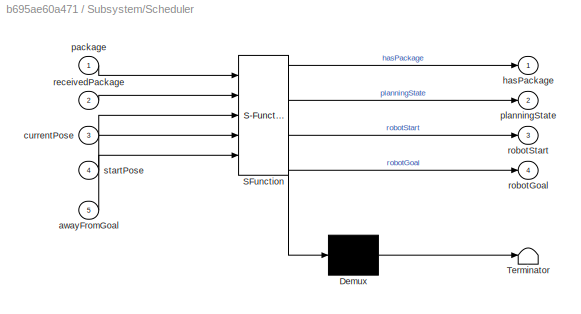
BLOCK [SubSystem] Subsystem/Scheduler
  BlockKeywords = __PRM__SERIALIZED__DATA__:Stateflow Chart,Stateflow Diagram
  ErrorFcn = Stateflow.Translate.translate
  PermitHierarchicalResolution = ExplicitOnly
  Ports = [5, 4]
  Priority = 2
  RequestExecContextInheritance = off
  SFBlockType = Chart
BLOCK [Demux] Subsystem/Scheduler/ Demux 
  Outputs = 1
  Ports = [1, 1]
BLOCK [S-Function] Subsystem/Scheduler/ SFunction 
  EnableBusSupport = on
  FunctionName = sf_sfun
  Parameters = loadingStation,unloadingStations
  PortCounts = [5 5]
  Ports = [5, 5]
  SFcnIsStateOwnerBlock = off
  SFunctionDeploymentMode = off
  Tag = Stateflow S-Function 4
BLOCK [Terminator] Subsystem/Scheduler/ Terminator 
BLOCK [Inport] Subsystem/Scheduler/awayFromGoal
  IconDisplay = Port number
  Port = 5
BLOCK [Inport] Subsystem/Scheduler/currentPose
  IconDisplay = Port number
  Port = 3
BLOCK [Outport] Subsystem/Scheduler/hasPackage
  IconDisplay = Port number
  VectorParamsAs1DForOutWhenUnconnected = off
BLOCK [Inport] Subsystem/Scheduler/package
  IconDisplay = Port number
BLOCK [Outport] Subsystem/Scheduler/planningState
  IconDisplay = Port number
  Port = 2
  VectorParamsAs1DForOutWhenUnconnected = off
BLOCK [Inport] Subsystem/Scheduler/receivedPackage
  IconDisplay = Port number
  Port = 2
BLOCK [Outport] Subsystem/Scheduler/robotGoal
  IconDisplay = Port number
  Port = 4
  VectorParamsAs1DForOutWhenUnconnected = off
BLOCK [Outport] Subsystem/Scheduler/robotStart
  IconDisplay = Port number
  Port = 3
  VectorParamsAs1DForOutWhenUnconnected = off
BLOCK [Inport] Subsystem/Scheduler/startPose
  IconDisplay = Port number
  Port = 4
BLOCK [UnitDelay] Subsystem/Unit Delay
  HasFrameUpgradeWarning = on
  SampleTime = -1
BLOCK [SubSystem] Subsystem/Zero-Velocity at Goal and When Inactive
  Ports = [4, 1]
  RequestExecContextInheritance = off
BLOCK [Product] Subsystem/Zero-Velocity at Goal and When Inactive/Product
  InputSameDT = off
  Inputs = 3
  OutDataTypeStr = Inherit: Inherit via internal rule
  Ports = [3, 1]
  RndMeth = Floor
  SaturateOnIntegerOverflow = off
BLOCK [Product] Subsystem/Zero-Velocity at Goal and When Inactive/Product1
  InputSameDT = off
  Inputs = 3
  OutDataTypeStr = Inherit: Inherit via internal rule
  Ports = [3, 1]
  RndMeth = Floor
  SaturateOnIntegerOverflow = off
BLOCK [Concatenate] Subsystem/Zero-Velocity at Goal and When Inactive/Vector Concatenate
  Ports = [2, 1]
BLOCK [Inport] Subsystem/Zero-Velocity at Goal and When Inactive/active
  IconDisplay = Port number
BLOCK [Inport] Subsystem/Zero-Velocity at Goal and When Inactive/angularVelocityOutput
  IconDisplay = Port number
  Port = 4
BLOCK [Inport] Subsystem/Zero-Velocity at Goal and When Inactive/atGoal
  IconDisplay = Port number
  Port = 2
BLOCK [Inport] Subsystem/Zero-Velocity at Goal and When Inactive/linearVelocityOutput
  IconDisplay = Port number
  Port = 3
BLOCK [Outport] Subsystem/Zero-Velocity at Goal and When Inactive/velocityCommand
  IconDisplay = Port number
BLOCK [Inport] Subsystem/currentPose
  IconDisplay = Port number
  Port = 2
  PortDimensions = [3, 1]
BLOCK [Inport] Subsystem/deliveryCommand
  BusOutputAsStruct = on
  IconDisplay = Port number
  OutDataTypeStr = Bus: RobotDeliverCommand
BLOCK [Constant] Subsystem/map
  Value = logicalMap
BLOCK [Outport] Subsystem/robotPackageStatus
  BusOutputAsStruct = on
  IconDisplay = Port number
  OutDataTypeStr = Bus: RobotPackageStatus
  Port = 2
BLOCK [Inport] Subsystem/startPose
  IconDisplay = Port number
  Port = 3
BLOCK [Outport] Subsystem/velocityCommand
  IconDisplay = Port number
BLOCK [Outport] Subsystem/waypoints
  IconDisplay = Port number
  Port = 3
BLOCK [Inport] currentPose
  IconDisplay = Port number
  Port = 2
  PortDimensions = [3, 1]
BLOCK [Inport] deliveryCommand
  BusOutputAsStruct = on
  IconDisplay = Port number
  OutDataTypeStr = Bus: RobotDeliverCommand
BLOCK [Outport] robotPackageStatus
  BusOutputAsStruct = on
  IconDisplay = Port number
  OutDataTypeStr = Bus: RobotPackageStatus
  Port = 2
BLOCK [Inport] startPose
  IconDisplay = Port number
  Port = 3
BLOCK [Outport] velocityCommand
  IconDisplay = Port number
BLOCK [Outport] waypoints
  IconDisplay = Port number
  Port = 3
ANNOTATION Get cord and adjust Example: Feedback Control of a ROS-enabled Robot
ANNOTATION Get cord and adjust Example: The /odom topic represents orientation as a quarternion, so convert it to a yaw angle
ANNOTATION Get cord and adjust Example: The desired (X,Y) position of the robot (Colored blocks indicate tunable parameters)
ANNOTATION Get cord and adjust Example: <copyright redacted>
ANNOTATION Get cord and adjust Example/Proportional Controller: Proportional Controller
ANNOTATION Get cord and adjust Example/Proportional Controller: Colored blocks indicates tunable parameters
ANNOTATION Get cord and adjust Example/Proportional Controller: Basic algorithm: Calculate difference between current and desired locations If distance is below a threshold, stop the robot. if distance is above the threshold, set yaw angle to orient robot toward desired location, and drive towards it.
ANNOTATION Get image: Get Image AND Display
ANNOTATION Perform Safe Trajectory Tracking Control Using Robotics Manipulator Blocks: Slider to adjust the planar object position
ANNOTATION Perform Safe Trajectory Tracking Control Using Robotics Manipulator Blocks: Switch to toggle trajectory scaling
ANNOTATION Perform Safe Trajectory Tracking Control Using Robotics Manipulator Blocks: Perform Safe Trajectory Tracking Control Using Robotics Manipulator Blocks
ANNOTATION Perform Safe Trajectory Tracking Control Using Robotics Manipulator Blocks: <copyright redacted>
ANNOTATION Perform Safe Trajectory Tracking Control Using Robotics Manipulator Blocks/Computed Torque Controller: qe
ANNOTATION Perform Safe Trajectory Tracking Control Using Robotics Manipulator Blocks/Computed Torque Controller: MassMatrix(ddqd - Kd*dqe - Kp*qe )
ANNOTATION Perform Safe Trajectory Tracking Control Using Robotics Manipulator Blocks/Computed Torque Controller: Velocity Product Torque + Gravity Torque
ANNOTATION Perform Safe Trajectory Tracking Control Using Robotics Manipulator Blocks/Computed Torque Controller: dqe
ANNOTATION Perform Safe Trajectory Tracking Control Using Robotics Manipulator Blocks/Computed Torque Controller: Computed Torque Controller
ANNOTATION Perform Safe Trajectory Tracking Control Using Robotics Manipulator Blocks/Simscape Model with Simple Contact Mechanics: Note: This simscape model is auto-generated by importing 'sawyer.urdf' using smimport(). To access the sensor and control for joints, in the Revolute Joint blocks right_j0 - right_j6 the actuation and sensing options are adjusted.
ANNOTATION Perform Safe Trajectory Tracking Control Using Robotics Manipulator Blocks/Simscape Model with Simple Contact Mechanics: Simscape Model with Simple Contact Mechanics
ANNOTATION Perform Safe Trajectory Tracking Control Using Robotics Manipulator Blocks/Simscape Model with Simple Contact Mechanics: Contact Force and Planar Object Motion and Visualization
ANNOTATION Perform Safe Trajectory Tracking Control Using Robotics Manipulator Blocks/Simscape Model with Simple Contact Mechanics: Sensor Feedback
ANNOTATION Perform Safe Trajectory Tracking Control Using Robotics Manipulator Blocks/Simscape Model with Simple Contact Mechanics: Torque Input
ANNOTATION Perform Safe Trajectory Tracking Control Using Robotics Manipulator Blocks/Simscape Model with Simple Contact Mechanics/Contact Force and Planar Object Motion and Visualization: Contact force based on a linear spring-damper model
ANNOTATION Perform Safe Trajectory Tracking Control Using Robotics Manipulator Blocks/Simscape Model with Simple Contact Mechanics/Contact Force and Planar Object Motion and Visualization: Contact Mechanics
ANNOTATION Perform Safe Trajectory Tracking Control Using Robotics Manipulator Blocks/Simscape Model with Simple Contact Mechanics/Contact Force and Planar Object Motion and Visualization: Planar Object Motion and Visualization
ANNOTATION Perform Safe Trajectory Tracking Control Using Robotics Manipulator Blocks/Trajectory Scaling and Desired Motion: Original time stamp
ANNOTATION Perform Safe Trajectory Tracking Control Using Robotics Manipulator Blocks/Trajectory Scaling and Desired Motion: Time stamp generated by trajectory scaling
ANNOTATION Perform Safe Trajectory Tracking Control Using Robotics Manipulator Blocks/Trajectory Scaling and Desired Motion: Trajectory Scaling and Desired Motion Evaluation
ANNOTATION Perform Safe Trajectory Tracking Control Using Robotics Manipulator Blocks/Trajectory Scaling and Desired Motion: Basic algorithm: Calculate the time stamp t_(i) as t_(i-1) + fs*dt instead of t_(i-1) + dt. Map the measured torque and the desired motion to a scalar function fs in the range of [-1, 1]. Add dead zones for smooth change of fs during the transitions between different levels of interference. Reference: [1] S. Haddadin, A. Albu-Schäffer, A. De Luca, and G. Hirzinger, “Collision detection and reactio...<+141ch>
ANNOTATION Perform Safe Trajectory Tracking Control Using Robotics Manipulator Blocks/Trajectory Scaling and Desired Motion: Desired Motion
ANNOTATION Perform Safe Trajectory Tracking Control Using Robotics Manipulator Blocks/Trajectory Scaling and Desired Motion: Trajectory Scaling
ANNOTATION Perform Safe Trajectory Tracking Control Using Robotics Manipulator Blocks/Trajectory Scaling and Desired Motion/Trajectory Scaling: Trajectory Scaling
ANNOTATION Perform Safe Trajectory Tracking Control Using Robotics Manipulator Blocks/Trajectory Scaling and Desired Motion/Trajectory Scaling: Expected torque
ANNOTATION Perform Safe Trajectory Tracking Control Using Robotics Manipulator Blocks/Trajectory Scaling and Desired Motion/Trajectory Scaling: External Torque Observer
ANNOTATION Perform Safe Trajectory Tracking Control Using Robotics Manipulator Blocks/Trajectory Scaling and Desired Motion/Trajectory Scaling: External torque
ANNOTATION Perform Safe Trajectory Tracking Control Using Robotics Manipulator Blocks/Trajectory Scaling and Desired Motion/Trajectory Scaling: Measured torque
ANNOTATION Perform Safe Trajectory Tracking Control Using Robotics Manipulator Blocks/Trajectory Scaling and Desired Motion/Trajectory Scaling: Time Generator with Trajecttory Scaling
ANNOTATION Point cloud Example: <copyright redacted>
ANNOTATION Subsystem: Control
ANNOTATION Subsystem: Planning
ANNOTATION Subsystem: Robot Scheduler
LINE Get cord and adjust Example/Bus Selector3:1 -> Get cord and adjust Example/Proportional Controller:2
LINE Get cord and adjust Example/Bus Selector3:2 -> Get cord and adjust Example/Proportional Controller:3
LINE Get cord and adjust Example/Bus Selector3:3 -> Get cord and adjust Example/Conversion:1
LINE Get cord and adjust Example/Bus Selector3:4 -> Get cord and adjust Example/Conversion:2
LINE Get cord and adjust Example/Bus Selector3:5 -> Get cord and adjust Example/Conversion:3
LINE Get cord and adjust Example/Bus Selector3:6 -> Get cord and adjust Example/Conversion:4
LINE Get cord and adjust Example/Command Velocity Publisher/Blank Message:1 -> Get cord and adjust Example/Command Velocity Publisher/Bus Assignment1:1
LINE Get cord and adjust Example/Command Velocity Publisher/Bus Assignment1:1 -> Get cord and adjust Example/Command Velocity Publisher/Publish2:1
LINE Get cord and adjust Example/Command Velocity Publisher/v:1 -> Get cord and adjust Example/Command Velocity Publisher/Bus Assignment1:2
LINE Get cord and adjust Example/Command Velocity Publisher/w:1 -> Get cord and adjust Example/Command Velocity Publisher/Bus Assignment1:3
LINE Get cord and adjust Example/Conversion:1 -> Get cord and adjust Example/Proportional Controller:4
LINE Get cord and adjust Example/Desired Position:1 -> Get cord and adjust Example/Proportional Controller:1
LINE Get cord and adjust Example/Proportional Controller/Bound [-pi,pi]:1 -> Get cord and adjust Example/Proportional Controller/Gain (Slider):1
LINE Get cord and adjust Example/Proportional Controller/Constant:1 -> Get cord and adjust Example/Proportional Controller/Linear Velocity (Slider):1
LINE Get cord and adjust Example/Proportional Controller/Demux1:1 -> Get cord and adjust Example/Proportional Controller/Sum:1
LINE Get cord and adjust Example/Proportional Controller/Demux1:2 -> Get cord and adjust Example/Proportional Controller/Sum1:1
LINE Get cord and adjust Example/Proportional Controller/Desired Yaw:1 -> Get cord and adjust Example/Proportional Controller/Sum3:1
LINE Get cord and adjust Example/Proportional Controller/Desired position:1 -> Get cord and adjust Example/Proportional Controller/Demux1:1
NET Get cord and adjust Example/Proportional Controller/Distance Threshold:1 -> Get cord and adjust Example/Proportional Controller/Switch1:2, Get cord and adjust Example/Proportional Controller/Switch:2
LINE Get cord and adjust Example/Proportional Controller/Distance:1 -> Get cord and adjust Example/Proportional Controller/Distance Threshold:1
LINE Get cord and adjust Example/Proportional Controller/Gain (Slider):1 -> Get cord and adjust Example/Proportional Controller/Saturation:1
LINE Get cord and adjust Example/Proportional Controller/Linear Velocity (Slider):1 -> Get cord and adjust Example/Proportional Controller/Switch:3
LINE Get cord and adjust Example/Proportional Controller/Mux:1 -> Get cord and adjust Example/Proportional Controller/Distance:1
LINE Get cord and adjust Example/Proportional Controller/Orientation (theta):1 -> Get cord and adjust Example/Proportional Controller/Sum3:2
LINE Get cord and adjust Example/Proportional Controller/Position X:1 -> Get cord and adjust Example/Proportional Controller/Sum:2
LINE Get cord and adjust Example/Proportional Controller/Position Y:1 -> Get cord and adjust Example/Proportional Controller/Sum1:2
LINE Get cord and adjust Example/Proportional Controller/Saturation:1 -> Get cord and adjust Example/Proportional Controller/Switch1:3
NET Get cord and adjust Example/Proportional Controller/Stop:1 -> Get cord and adjust Example/Proportional Controller/Switch1:1, Get cord and adjust Example/Proportional Controller/Switch:1
NET Get cord and adjust Example/Proportional Controller/Sum1:1 -> Get cord and adjust Example/Proportional Controller/Desired Yaw:1, Get cord and adjust Example/Proportional Controller/Mux:2
LINE Get cord and adjust Example/Proportional Controller/Sum3:1 -> Get cord and adjust Example/Proportional Controller/Bound [-pi,pi]:1
NET Get cord and adjust Example/Proportional Controller/Sum:1 -> Get cord and adjust Example/Proportional Controller/Desired Yaw:2, Get cord and adjust Example/Proportional Controller/Mux:1
LINE Get cord and adjust Example/Proportional Controller/Switch1:1 -> Get cord and adjust Example/Proportional Controller/Angular Velocity (w):1
LINE Get cord and adjust Example/Proportional Controller/Switch:1 -> Get cord and adjust Example/Proportional Controller/Linear Velocity (v):1
LINE Get cord and adjust Example/Proportional Controller:1 -> Get cord and adjust Example/Command Velocity Publisher:1
LINE Get cord and adjust Example/Proportional Controller:2 -> Get cord and adjust Example/Command Velocity Publisher:2
NET Get cord and adjust Example/Subscribe:1 -> Get cord and adjust Example/Command Velocity Publisher:enable, Get cord and adjust Example/Proportional Controller:enable, Get cord and adjust Example/Scope:1
LINE Get cord and adjust Example/Subscribe:2 -> Get cord and adjust Example/Bus Selector3:1
NET Get image/Read Image:1 -> Get image/Video Viewer1:1, Get image/imgLeft:1
LINE Get image/Read Image:2 -> Get image/Error Code Output:1
LINE Get image/imgLeftSubscriber:1 -> Get image/New Message:1
LINE Get image/imgLeftSubscriber:2 -> Get image/Read Image:1
LINE Perform Safe Trajectory Tracking Control Using Robotics Manipulator Blocks/Clock:1 -> Perform Safe Trajectory Tracking Control Using Robotics Manipulator Blocks/Trajectory Scaling and Desired Motion:1
LINE Perform Safe Trajectory Tracking Control Using Robotics Manipulator Blocks/Computed Torque Controller/Add1:1 -> Perform Safe Trajectory Tracking Control Using Robotics Manipulator Blocks/Computed Torque Controller/Add5:2
LINE Perform Safe Trajectory Tracking Control Using Robotics Manipulator Blocks/Computed Torque Controller/Add2:1 -> Perform Safe Trajectory Tracking Control Using Robotics Manipulator Blocks/Computed Torque Controller/Kp:1
LINE Perform Safe Trajectory Tracking Control Using Robotics Manipulator Blocks/Computed Torque Controller/Add3:1 -> Perform Safe Trajectory Tracking Control Using Robotics Manipulator Blocks/Computed Torque Controller/Kd:1
LINE Perform Safe Trajectory Tracking Control Using Robotics Manipulator Blocks/Computed Torque Controller/Add4:1 -> Perform Safe Trajectory Tracking Control Using Robotics Manipulator Blocks/Computed Torque Controller/Add:1
LINE Perform Safe Trajectory Tracking Control Using Robotics Manipulator Blocks/Computed Torque Controller/Add5:1 -> Perform Safe Trajectory Tracking Control Using Robotics Manipulator Blocks/Computed Torque Controller/u:1
LINE Perform Safe Trajectory Tracking Control Using Robotics Manipulator Blocks/Computed Torque Controller/Add:1 -> Perform Safe Trajectory Tracking Control Using Robotics Manipulator Blocks/Computed Torque Controller/Product:2
LINE Perform Safe Trajectory Tracking Control Using Robotics Manipulator Blocks/Computed Torque Controller/Gravity Torque:1 -> Perform Safe Trajectory Tracking Control Using Robotics Manipulator Blocks/Computed Torque Controller/Add1:1
LINE Perform Safe Trajectory Tracking Control Using Robotics Manipulator Blocks/Computed Torque Controller/Joint Space Mass Matrix:1 -> Perform Safe Trajectory Tracking Control Using Robotics Manipulator Blocks/Computed Torque Controller/Product:1
LINE Perform Safe Trajectory Tracking Control Using Robotics Manipulator Blocks/Computed Torque Controller/Kd:1 -> Perform Safe Trajectory Tracking Control Using Robotics Manipulator Blocks/Computed Torque Controller/Add4:2
LINE Perform Safe Trajectory Tracking Control Using Robotics Manipulator Blocks/Computed Torque Controller/Kp:1 -> Perform Safe Trajectory Tracking Control Using Robotics Manipulator Blocks/Computed Torque Controller/Add4:1
LINE Perform Safe Trajectory Tracking Control Using Robotics Manipulator Blocks/Computed Torque Controller/Product:1 -> Perform Safe Trajectory Tracking Control Using Robotics Manipulator Blocks/Computed Torque Controller/Add5:1
LINE Perform Safe Trajectory Tracking Control Using Robotics Manipulator Blocks/Computed Torque Controller/Velocity Product Torque:1 -> Perform Safe Trajectory Tracking Control Using Robotics Manipulator Blocks/Computed Torque Controller/Add1:2
LINE Perform Safe Trajectory Tracking Control Using Robotics Manipulator Blocks/Computed Torque Controller/ddqd:1 -> Perform Safe Trajectory Tracking Control Using Robotics Manipulator Blocks/Computed Torque Controller/Add:2
NET Perform Safe Trajectory Tracking Control Using Robotics Manipulator Blocks/Computed Torque Controller/dq:1 -> Perform Safe Trajectory Tracking Control Using Robotics Manipulator Blocks/Computed Torque Controller/Add3:1, Perform Safe Trajectory Tracking Control Using Robotics Manipulator Blocks/Computed Torque Controller/Velocity Product Torque:2
LINE Perform Safe Trajectory Tracking Control Using Robotics Manipulator Blocks/Computed Torque Controller/dqd:1 -> Perform Safe Trajectory Tracking Control Using Robotics Manipulator Blocks/Computed Torque Controller/Add3:2
NET Perform Safe Trajectory Tracking Control Using Robotics Manipulator Blocks/Computed Torque Controller/q:1 -> Perform Safe Trajectory Tracking Control Using Robotics Manipulator Blocks/Computed Torque Controller/Add2:1, Perform Safe Trajectory Tracking Control Using Robotics Manipulator Blocks/Computed Torque Controller/Gravity Torque:1, Perform Safe Trajectory Tracking Control Using Robotics Manipulator Blocks/Computed Torque Controller/Joint Space Mass Matrix:1, Perform Safe Trajectory Tracking Control Using Robotics Manipulator Blocks/Computed Torque Controller/Velocity Product Torque:1
LINE Perform Safe Trajectory Tracking Control Using Robotics Manipulator Blocks/Computed Torque Controller/qd:1 -> Perform Safe Trajectory Tracking Control Using Robotics Manipulator Blocks/Computed Torque Controller/Add2:2
LINE Perform Safe Trajectory Tracking Control Using Robotics Manipulator Blocks/Computed Torque Controller:1 -> Perform Safe Trajectory Tracking Control Using Robotics Manipulator Blocks/Simscape Model with Simple Contact Mechanics:1
LINE Perform Safe Trajectory Tracking Control Using Robotics Manipulator Blocks/Simscape Model with Simple Contact Mechanics/Add:1 -> Perform Safe Trajectory Tracking Control Using Robotics Manipulator Blocks/Simscape Model with Simple Contact Mechanics/Demux:1
LINE Perform Safe Trajectory Tracking Control Using Robotics Manipulator Blocks/Simscape Model with Simple Contact Mechanics/Constant:1 -> Perform Safe Trajectory Tracking Control Using Robotics Manipulator Blocks/Simscape Model with Simple Contact Mechanics/Contact Force and Planar Object Motion and Visualization:1
LINE Perform Safe Trajectory Tracking Control Using Robotics Manipulator Blocks/Simscape Model with Simple Contact Mechanics/Contact Force and Planar Object Motion and Visualization/Constant1:1 -> Perform Safe Trajectory Tracking Control Using Robotics Manipulator Blocks/Simscape Model with Simple Contact Mechanics/Contact Force and Planar Object Motion and Visualization/Simulink-PS Converter8:1
LINE Perform Safe Trajectory Tracking Control Using Robotics Manipulator Blocks/Simscape Model with Simple Contact Mechanics/Contact Force and Planar Object Motion and Visualization/Constant2:1 -> Perform Safe Trajectory Tracking Control Using Robotics Manipulator Blocks/Simscape Model with Simple Contact Mechanics/Contact Force and Planar Object Motion and Visualization/Subtract2:2
LINE Perform Safe Trajectory Tracking Control Using Robotics Manipulator Blocks/Simscape Model with Simple Contact Mechanics/Contact Force and Planar Object Motion and Visualization/Contact Model:1 -> Perform Safe Trajectory Tracking Control Using Robotics Manipulator Blocks/Simscape Model with Simple Contact Mechanics/Contact Force and Planar Object Motion and Visualization/reaction torque:1
LINE Perform Safe Trajectory Tracking Control Using Robotics Manipulator Blocks/Simscape Model with Simple Contact Mechanics/Contact Force and Planar Object Motion and Visualization/Contact Model:2 -> Perform Safe Trajectory Tracking Control Using Robotics Manipulator Blocks/Simscape Model with Simple Contact Mechanics/Contact Force and Planar Object Motion and Visualization/reaction force:1
LINE Perform Safe Trajectory Tracking Control Using Robotics Manipulator Blocks/Simscape Model with Simple Contact Mechanics/Contact Force and Planar Object Motion and Visualization/Damping:1 -> Perform Safe Trajectory Tracking Control Using Robotics Manipulator Blocks/Simscape Model with Simple Contact Mechanics/Contact Force and Planar Object Motion and Visualization/Contact Model:5
LINE Perform Safe Trajectory Tracking Control Using Robotics Manipulator Blocks/Simscape Model with Simple Contact Mechanics/Contact Force and Planar Object Motion and Visualization/Get Jacobian:1 -> Perform Safe Trajectory Tracking Control Using Robotics Manipulator Blocks/Simscape Model with Simple Contact Mechanics/Contact Force and Planar Object Motion and Visualization/Contact Model:3
LINE Perform Safe Trajectory Tracking Control Using Robotics Manipulator Blocks/Simscape Model with Simple Contact Mechanics/Contact Force and Planar Object Motion and Visualization/Stiffness:1 -> Perform Safe Trajectory Tracking Control Using Robotics Manipulator Blocks/Simscape Model with Simple Contact Mechanics/Contact Force and Planar Object Motion and Visualization/Contact Model:4
LINE Perform Safe Trajectory Tracking Control Using Robotics Manipulator Blocks/Simscape Model with Simple Contact Mechanics/Contact Force and Planar Object Motion and Visualization/Subtract2:1 -> Perform Safe Trajectory Tracking Control Using Robotics Manipulator Blocks/Simscape Model with Simple Contact Mechanics/Contact Force and Planar Object Motion and Visualization/Simulink-PS Converter7:1
LINE Perform Safe Trajectory Tracking Control Using Robotics Manipulator Blocks/Simscape Model with Simple Contact Mechanics/Contact Force and Planar Object Motion and Visualization/Subtract:1 -> Perform Safe Trajectory Tracking Control Using Robotics Manipulator Blocks/Simscape Model with Simple Contact Mechanics/Contact Force and Planar Object Motion and Visualization/Contact Model:1
LINE Perform Safe Trajectory Tracking Control Using Robotics Manipulator Blocks/Simscape Model with Simple Contact Mechanics/Contact Force and Planar Object Motion and Visualization/endeffectorPos:1 -> Perform Safe Trajectory Tracking Control Using Robotics Manipulator Blocks/Simscape Model with Simple Contact Mechanics/Contact Force and Planar Object Motion and Visualization/Subtract:1
LINE Perform Safe Trajectory Tracking Control Using Robotics Manipulator Blocks/Simscape Model with Simple Contact Mechanics/Contact Force and Planar Object Motion and Visualization/endeffectorVel:1 -> Perform Safe Trajectory Tracking Control Using Robotics Manipulator Blocks/Simscape Model with Simple Contact Mechanics/Contact Force and Planar Object Motion and Visualization/Contact Model:2
NET Perform Safe Trajectory Tracking Control Using Robotics Manipulator Blocks/Simscape Model with Simple Contact Mechanics/Contact Force and Planar Object Motion and Visualization/low pass filter:1 -> Perform Safe Trajectory Tracking Control Using Robotics Manipulator Blocks/Simscape Model with Simple Contact Mechanics/Contact Force and Planar Object Motion and Visualization/Scope1:1, Perform Safe Trajectory Tracking Control Using Robotics Manipulator Blocks/Simscape Model with Simple Contact Mechanics/Contact Force and Planar Object Motion and Visualization/Subtract2:1, Perform Safe Trajectory Tracking Control Using Robotics Manipulator Blocks/Simscape Model with Simple Contact Mechanics/Contact Force and Planar Object Motion and Visualization/Subtract:2
LINE Perform Safe Trajectory Tracking Control Using Robotics Manipulator Blocks/Simscape Model with Simple Contact Mechanics/Contact Force and Planar Object Motion and Visualization/objectPos:1 -> Perform Safe Trajectory Tracking Control Using Robotics Manipulator Blocks/Simscape Model with Simple Contact Mechanics/Contact Force and Planar Object Motion and Visualization/low pass filter:1
LINE Perform Safe Trajectory Tracking Control Using Robotics Manipulator Blocks/Simscape Model with Simple Contact Mechanics/Contact Force and Planar Object Motion and Visualization/q:1 -> Perform Safe Trajectory Tracking Control Using Robotics Manipulator Blocks/Simscape Model with Simple Contact Mechanics/Contact Force and Planar Object Motion and Visualization/Get Jacobian:1
LINE Perform Safe Trajectory Tracking Control Using Robotics Manipulator Blocks/Simscape Model with Simple Contact Mechanics/Contact Force and Planar Object Motion and Visualization:1 -> Perform Safe Trajectory Tracking Control Using Robotics Manipulator Blocks/Simscape Model with Simple Contact Mechanics/Goto:1
LINE Perform Safe Trajectory Tracking Control Using Robotics Manipulator Blocks/Simscape Model with Simple Contact Mechanics/Contact Force and Planar Object Motion and Visualization:2 -> Perform Safe Trajectory Tracking Control Using Robotics Manipulator Blocks/Simscape Model with Simple Contact Mechanics/Scope:1
LINE Perform Safe Trajectory Tracking Control Using Robotics Manipulator Blocks/Simscape Model with Simple Contact Mechanics/Demux:1 -> Perform Safe Trajectory Tracking Control Using Robotics Manipulator Blocks/Simscape Model with Simple Contact Mechanics/Simulink-PS Converter:1
LINE Perform Safe Trajectory Tracking Control Using Robotics Manipulator Blocks/Simscape Model with Simple Contact Mechanics/Demux:2 -> Perform Safe Trajectory Tracking Control Using Robotics Manipulator Blocks/Simscape Model with Simple Contact Mechanics/Simulink-PS Converter1:1
LINE Perform Safe Trajectory Tracking Control Using Robotics Manipulator Blocks/Simscape Model with Simple Contact Mechanics/Demux:3 -> Perform Safe Trajectory Tracking Control Using Robotics Manipulator Blocks/Simscape Model with Simple Contact Mechanics/Simulink-PS Converter2:1
LINE Perform Safe Trajectory Tracking Control Using Robotics Manipulator Blocks/Simscape Model with Simple Contact Mechanics/Demux:4 -> Perform Safe Trajectory Tracking Control Using Robotics Manipulator Blocks/Simscape Model with Simple Contact Mechanics/Simulink-PS Converter3:1
LINE Perform Safe Trajectory Tracking Control Using Robotics Manipulator Blocks/Simscape Model with Simple Contact Mechanics/Demux:5 -> Perform Safe Trajectory Tracking Control Using Robotics Manipulator Blocks/Simscape Model with Simple Contact Mechanics/Simulink-PS Converter4:1
LINE Perform Safe Trajectory Tracking Control Using Robotics Manipulator Blocks/Simscape Model with Simple Contact Mechanics/Demux:6 -> Perform Safe Trajectory Tracking Control Using Robotics Manipulator Blocks/Simscape Model with Simple Contact Mechanics/Simulink-PS Converter5:1
LINE Perform Safe Trajectory Tracking Control Using Robotics Manipulator Blocks/Simscape Model with Simple Contact Mechanics/Demux:7 -> Perform Safe Trajectory Tracking Control Using Robotics Manipulator Blocks/Simscape Model with Simple Contact Mechanics/Simulink-PS Converter6:1
LINE Perform Safe Trajectory Tracking Control Using Robotics Manipulator Blocks/Simscape Model with Simple Contact Mechanics/From1:1 -> Perform Safe Trajectory Tracking Control Using Robotics Manipulator Blocks/Simscape Model with Simple Contact Mechanics/Add:2
LINE Perform Safe Trajectory Tracking Control Using Robotics Manipulator Blocks/Simscape Model with Simple Contact Mechanics/From:1 -> Perform Safe Trajectory Tracking Control Using Robotics Manipulator Blocks/Simscape Model with Simple Contact Mechanics/Subtract1:2
LINE Perform Safe Trajectory Tracking Control Using Robotics Manipulator Blocks/Simscape Model with Simple Contact Mechanics/Mux1:1 -> Perform Safe Trajectory Tracking Control Using Robotics Manipulator Blocks/Simscape Model with Simple Contact Mechanics/dq:1
LINE Perform Safe Trajectory Tracking Control Using Robotics Manipulator Blocks/Simscape Model with Simple Contact Mechanics/Mux3:1 -> Perform Safe Trajectory Tracking Control Using Robotics Manipulator Blocks/Simscape Model with Simple Contact Mechanics/Subtract1:1
NET Perform Safe Trajectory Tracking Control Using Robotics Manipulator Blocks/Simscape Model with Simple Contact Mechanics/Mux:1 -> Perform Safe Trajectory Tracking Control Using Robotics Manipulator Blocks/Simscape Model with Simple Contact Mechanics/Contact Force and Planar Object Motion and Visualization:4, Perform Safe Trajectory Tracking Control Using Robotics Manipulator Blocks/Simscape Model with Simple Contact Mechanics/q:1
LINE Perform Safe Trajectory Tracking Control Using Robotics Manipulator Blocks/Simscape Model with Simple Contact Mechanics/PS-Simulink Converter10:1 -> Perform Safe Trajectory Tracking Control Using Robotics Manipulator Blocks/Simscape Model with Simple Contact Mechanics/Mux1:4
LINE Perform Safe Trajectory Tracking Control Using Robotics Manipulator Blocks/Simscape Model with Simple Contact Mechanics/PS-Simulink Converter11:1 -> Perform Safe Trajectory Tracking Control Using Robotics Manipulator Blocks/Simscape Model with Simple Contact Mechanics/Mux1:5
LINE Perform Safe Trajectory Tracking Control Using Robotics Manipulator Blocks/Simscape Model with Simple Contact Mechanics/PS-Simulink Converter12:1 -> Perform Safe Trajectory Tracking Control Using Robotics Manipulator Blocks/Simscape Model with Simple Contact Mechanics/Mux1:6
LINE Perform Safe Trajectory Tracking Control Using Robotics Manipulator Blocks/Simscape Model with Simple Contact Mechanics/PS-Simulink Converter13:1 -> Perform Safe Trajectory Tracking Control Using Robotics Manipulator Blocks/Simscape Model with Simple Contact Mechanics/Mux1:7
LINE Perform Safe Trajectory Tracking Control Using Robotics Manipulator Blocks/Simscape Model with Simple Contact Mechanics/PS-Simulink Converter1:1 -> Perform Safe Trajectory Tracking Control Using Robotics Manipulator Blocks/Simscape Model with Simple Contact Mechanics/Mux:2
LINE Perform Safe Trajectory Tracking Control Using Robotics Manipulator Blocks/Simscape Model with Simple Contact Mechanics/PS-Simulink Converter21:1 -> Perform Safe Trajectory Tracking Control Using Robotics Manipulator Blocks/Simscape Model with Simple Contact Mechanics/Mux3:4
LINE Perform Safe Trajectory Tracking Control Using Robotics Manipulator Blocks/Simscape Model with Simple Contact Mechanics/PS-Simulink Converter22:1 -> Perform Safe Trajectory Tracking Control Using Robotics Manipulator Blocks/Simscape Model with Simple Contact Mechanics/Mux3:5
LINE Perform Safe Trajectory Tracking Control Using Robotics Manipulator Blocks/Simscape Model with Simple Contact Mechanics/PS-Simulink Converter23:1 -> Perform Safe Trajectory Tracking Control Using Robotics Manipulator Blocks/Simscape Model with Simple Contact Mechanics/Mux3:6
LINE Perform Safe Trajectory Tracking Control Using Robotics Manipulator Blocks/Simscape Model with Simple Contact Mechanics/PS-Simulink Converter24:1 -> Perform Safe Trajectory Tracking Control Using Robotics Manipulator Blocks/Simscape Model with Simple Contact Mechanics/Mux3:7
LINE Perform Safe Trajectory Tracking Control Using Robotics Manipulator Blocks/Simscape Model with Simple Contact Mechanics/PS-Simulink Converter25:1 -> Perform Safe Trajectory Tracking Control Using Robotics Manipulator Blocks/Simscape Model with Simple Contact Mechanics/Mux3:1
LINE Perform Safe Trajectory Tracking Control Using Robotics Manipulator Blocks/Simscape Model with Simple Contact Mechanics/PS-Simulink Converter26:1 -> Perform Safe Trajectory Tracking Control Using Robotics Manipulator Blocks/Simscape Model with Simple Contact Mechanics/Mux3:2
LINE Perform Safe Trajectory Tracking Control Using Robotics Manipulator Blocks/Simscape Model with Simple Contact Mechanics/PS-Simulink Converter27:1 -> Perform Safe Trajectory Tracking Control Using Robotics Manipulator Blocks/Simscape Model with Simple Contact Mechanics/Mux3:3
LINE Perform Safe Trajectory Tracking Control Using Robotics Manipulator Blocks/Simscape Model with Simple Contact Mechanics/PS-Simulink Converter29:1 -> Perform Safe Trajectory Tracking Control Using Robotics Manipulator Blocks/Simscape Model with Simple Contact Mechanics/Contact Force and Planar Object Motion and Visualization:2
LINE Perform Safe Trajectory Tracking Control Using Robotics Manipulator Blocks/Simscape Model with Simple Contact Mechanics/PS-Simulink Converter2:1 -> Perform Safe Trajectory Tracking Control Using Robotics Manipulator Blocks/Simscape Model with Simple Contact Mechanics/Mux:3
LINE Perform Safe Trajectory Tracking Control Using Robotics Manipulator Blocks/Simscape Model with Simple Contact Mechanics/PS-Simulink Converter30:1 -> Perform Safe Trajectory Tracking Control Using Robotics Manipulator Blocks/Simscape Model with Simple Contact Mechanics/Contact Force and Planar Object Motion and Visualization:3
LINE Perform Safe Trajectory Tracking Control Using Robotics Manipulator Blocks/Simscape Model with Simple Contact Mechanics/PS-Simulink Converter3:1 -> Perform Safe Trajectory Tracking Control Using Robotics Manipulator Blocks/Simscape Model with Simple Contact Mechanics/Mux:4
LINE Perform Safe Trajectory Tracking Control Using Robotics Manipulator Blocks/Simscape Model with Simple Contact Mechanics/PS-Simulink Converter4:1 -> Perform Safe Trajectory Tracking Control Using Robotics Manipulator Blocks/Simscape Model with Simple Contact Mechanics/Mux:5
LINE Perform Safe Trajectory Tracking Control Using Robotics Manipulator Blocks/Simscape Model with Simple Contact Mechanics/PS-Simulink Converter5:1 -> Perform Safe Trajectory Tracking Control Using Robotics Manipulator Blocks/Simscape Model with Simple Contact Mechanics/Mux:6
LINE Perform Safe Trajectory Tracking Control Using Robotics Manipulator Blocks/Simscape Model with Simple Contact Mechanics/PS-Simulink Converter6:1 -> Perform Safe Trajectory Tracking Control Using Robotics Manipulator Blocks/Simscape Model with Simple Contact Mechanics/Mux:7
LINE Perform Safe Trajectory Tracking Control Using Robotics Manipulator Blocks/Simscape Model with Simple Contact Mechanics/PS-Simulink Converter7:1 -> Perform Safe Trajectory Tracking Control Using Robotics Manipulator Blocks/Simscape Model with Simple Contact Mechanics/Mux1:1
LINE Perform Safe Trajectory Tracking Control Using Robotics Manipulator Blocks/Simscape Model with Simple Contact Mechanics/PS-Simulink Converter8:1 -> Perform Safe Trajectory Tracking Control Using Robotics Manipulator Blocks/Simscape Model with Simple Contact Mechanics/Mux1:2
LINE Perform Safe Trajectory Tracking Control Using Robotics Manipulator Blocks/Simscape Model with Simple Contact Mechanics/PS-Simulink Converter9:1 -> Perform Safe Trajectory Tracking Control Using Robotics Manipulator Blocks/Simscape Model with Simple Contact Mechanics/Mux1:3
LINE Perform Safe Trajectory Tracking Control Using Robotics Manipulator Blocks/Simscape Model with Simple Contact Mechanics/PS-Simulink Converter:1 -> Perform Safe Trajectory Tracking Control Using Robotics Manipulator Blocks/Simscape Model with Simple Contact Mechanics/Mux:1
LINE Perform Safe Trajectory Tracking Control Using Robotics Manipulator Blocks/Simscape Model with Simple Contact Mechanics/Subtract1:1 -> Perform Safe Trajectory Tracking Control Using Robotics Manipulator Blocks/Simscape Model with Simple Contact Mechanics/torque:1
LINE Perform Safe Trajectory Tracking Control Using Robotics Manipulator Blocks/Simscape Model with Simple Contact Mechanics/u:1 -> Perform Safe Trajectory Tracking Control Using Robotics Manipulator Blocks/Simscape Model with Simple Contact Mechanics/Add:1
LINE Perform Safe Trajectory Tracking Control Using Robotics Manipulator Blocks/Simscape Model with Simple Contact Mechanics:1 -> Perform Safe Trajectory Tracking Control Using Robotics Manipulator Blocks/Computed Torque Controller:1
LINE Perform Safe Trajectory Tracking Control Using Robotics Manipulator Blocks/Simscape Model with Simple Contact Mechanics:2 -> Perform Safe Trajectory Tracking Control Using Robotics Manipulator Blocks/Computed Torque Controller:2
LINE Perform Safe Trajectory Tracking Control Using Robotics Manipulator Blocks/Simscape Model with Simple Contact Mechanics:3 -> Perform Safe Trajectory Tracking Control Using Robotics Manipulator Blocks/Trajectory Scaling and Desired Motion:2
NET Perform Safe Trajectory Tracking Control Using Robotics Manipulator Blocks/Trajectory Scaling and Desired Motion/Clock with Switch/Constant1:1 -> Perform Safe Trajectory Tracking Control Using Robotics Manipulator Blocks/Trajectory Scaling and Desired Motion/Clock with Switch/If Action Subsystem:2, Perform Safe Trajectory Tracking Control Using Robotics Manipulator Blocks/Trajectory Scaling and Desired Motion/Clock with Switch/If:2
LINE Perform Safe Trajectory Tracking Control Using Robotics Manipulator Blocks/Trajectory Scaling and Desired Motion/Clock with Switch/If Action Subsystem/Add:1 -> Perform Safe Trajectory Tracking Control Using Robotics Manipulator Blocks/Trajectory Scaling and Desired Motion/Clock with Switch/If Action Subsystem/Out1:1
LINE Perform Safe Trajectory Tracking Control Using Robotics Manipulator Blocks/Trajectory Scaling and Desired Motion/Clock with Switch/If Action Subsystem/In1:1 -> Perform Safe Trajectory Tracking Control Using Robotics Manipulator Blocks/Trajectory Scaling and Desired Motion/Clock with Switch/If Action Subsystem/Add:1
LINE Perform Safe Trajectory Tracking Control Using Robotics Manipulator Blocks/Trajectory Scaling and Desired Motion/Clock with Switch/If Action Subsystem/In2:1 -> Perform Safe Trajectory Tracking Control Using Robotics Manipulator Blocks/Trajectory Scaling and Desired Motion/Clock with Switch/If Action Subsystem/Add:2
NET Perform Safe Trajectory Tracking Control Using Robotics Manipulator Blocks/Trajectory Scaling and Desired Motion/Clock with Switch/If Action Subsystem:1 -> Perform Safe Trajectory Tracking Control Using Robotics Manipulator Blocks/Trajectory Scaling and Desired Motion/Clock with Switch/Scope:1, Perform Safe Trajectory Tracking Control Using Robotics Manipulator Blocks/Trajectory Scaling and Desired Motion/Clock with Switch/t_Out:1
LINE Perform Safe Trajectory Tracking Control Using Robotics Manipulator Blocks/Trajectory Scaling and Desired Motion/Clock with Switch/If:1 -> Perform Safe Trajectory Tracking Control Using Robotics Manipulator Blocks/Trajectory Scaling and Desired Motion/Clock with Switch/If Action Subsystem:ifaction
NET Perform Safe Trajectory Tracking Control Using Robotics Manipulator Blocks/Trajectory Scaling and Desired Motion/Clock with Switch/t_In:1 -> Perform Safe Trajectory Tracking Control Using Robotics Manipulator Blocks/Trajectory Scaling and Desired Motion/Clock with Switch/If Action Subsystem:1, Perform Safe Trajectory Tracking Control Using Robotics Manipulator Blocks/Trajectory Scaling and Desired Motion/Clock with Switch/If:1
NET Perform Safe Trajectory Tracking Control Using Robotics Manipulator Blocks/Trajectory Scaling and Desired Motion/Clock with Switch:1 -> Perform Safe Trajectory Tracking Control Using Robotics Manipulator Blocks/Trajectory Scaling and Desired Motion/Saturation:1, Perform Safe Trajectory Tracking Control Using Robotics Manipulator Blocks/Trajectory Scaling and Desired Motion/Trajectory Scaling:1
LINE Perform Safe Trajectory Tracking Control Using Robotics Manipulator Blocks/Trajectory Scaling and Desired Motion/Constant2:1 -> Perform Safe Trajectory Tracking Control Using Robotics Manipulator Blocks/Trajectory Scaling and Desired Motion/Switch:2
LINE Perform Safe Trajectory Tracking Control Using Robotics Manipulator Blocks/Trajectory Scaling and Desired Motion/Constant:1 -> Perform Safe Trajectory Tracking Control Using Robotics Manipulator Blocks/Trajectory Scaling and Desired Motion/Desired Motion:1
LINE Perform Safe Trajectory Tracking Control Using Robotics Manipulator Blocks/Trajectory Scaling and Desired Motion/Delay:1 -> Perform Safe Trajectory Tracking Control Using Robotics Manipulator Blocks/Trajectory Scaling and Desired Motion/Trajectory Scaling:3
LINE Perform Safe Trajectory Tracking Control Using Robotics Manipulator Blocks/Trajectory Scaling and Desired Motion/Desired Motion:1 -> Perform Safe Trajectory Tracking Control Using Robotics Manipulator Blocks/Trajectory Scaling and Desired Motion/qd:1
LINE Perform Safe Trajectory Tracking Control Using Robotics Manipulator Blocks/Trajectory Scaling and Desired Motion/Desired Motion:2 -> Perform Safe Trajectory Tracking Control Using Robotics Manipulator Blocks/Trajectory Scaling and Desired Motion/dqd:1
LINE Perform Safe Trajectory Tracking Control Using Robotics Manipulator Blocks/Trajectory Scaling and Desired Motion/Desired Motion:3 -> Perform Safe Trajectory Tracking Control Using Robotics Manipulator Blocks/Trajectory Scaling and Desired Motion/ddqd:1
LINE Perform Safe Trajectory Tracking Control Using Robotics Manipulator Blocks/Trajectory Scaling and Desired Motion/From3:1 -> Perform Safe Trajectory Tracking Control Using Robotics Manipulator Blocks/Trajectory Scaling and Desired Motion/Switch:1
LINE Perform Safe Trajectory Tracking Control Using Robotics Manipulator Blocks/Trajectory Scaling and Desired Motion/From4:1 -> Perform Safe Trajectory Tracking Control Using Robotics Manipulator Blocks/Trajectory Scaling and Desired Motion/Switch:3
NET Perform Safe Trajectory Tracking Control Using Robotics Manipulator Blocks/Trajectory Scaling and Desired Motion/Saturation1:1 -> Perform Safe Trajectory Tracking Control Using Robotics Manipulator Blocks/Trajectory Scaling and Desired Motion/Delay:1, Perform Safe Trajectory Tracking Control Using Robotics Manipulator Blocks/Trajectory Scaling and Desired Motion/Goto2:1
LINE Perform Safe Trajectory Tracking Control Using Robotics Manipulator Blocks/Trajectory Scaling and Desired Motion/Saturation:1 -> Perform Safe Trajectory Tracking Control Using Robotics Manipulator Blocks/Trajectory Scaling and Desired Motion/Goto:1
LINE Perform Safe Trajectory Tracking Control Using Robotics Manipulator Blocks/Trajectory Scaling and Desired Motion/Switch:1 -> Perform Safe Trajectory Tracking Control Using Robotics Manipulator Blocks/Trajectory Scaling and Desired Motion/Desired Motion:2
LINE Perform Safe Trajectory Tracking Control Using Robotics Manipulator Blocks/Trajectory Scaling and Desired Motion/Trajectory Scaling/Add1:1 -> Perform Safe Trajectory Tracking Control Using Robotics Manipulator Blocks/Trajectory Scaling and Desired Motion/Trajectory Scaling/low pass filter:1
NET Perform Safe Trajectory Tracking Control Using Robotics Manipulator Blocks/Trajectory Scaling and Desired Motion/Trajectory Scaling/Add2:1 -> Perform Safe Trajectory Tracking Control Using Robotics Manipulator Blocks/Trajectory Scaling and Desired Motion/Trajectory Scaling/Delay1:1, Perform Safe Trajectory Tracking Control Using Robotics Manipulator Blocks/Trajectory Scaling and Desired Motion/Trajectory Scaling/t_Mod:1
LINE Perform Safe Trajectory Tracking Control Using Robotics Manipulator Blocks/Trajectory Scaling and Desired Motion/Trajectory Scaling/Add:1 -> Perform Safe Trajectory Tracking Control Using Robotics Manipulator Blocks/Trajectory Scaling and Desired Motion/Trajectory Scaling/Divide:2
LINE Perform Safe Trajectory Tracking Control Using Robotics Manipulator Blocks/Trajectory Scaling and Desired Motion/Trajectory Scaling/Constant2:1 -> Perform Safe Trajectory Tracking Control Using Robotics Manipulator Blocks/Trajectory Scaling and Desired Motion/Trajectory Scaling/Desired Motion:1
LINE Perform Safe Trajectory Tracking Control Using Robotics Manipulator Blocks/Trajectory Scaling and Desired Motion/Trajectory Scaling/Constant:1 -> Perform Safe Trajectory Tracking Control Using Robotics Manipulator Blocks/Trajectory Scaling and Desired Motion/Trajectory Scaling/Inverse Dynamics:4
LINE Perform Safe Trajectory Tracking Control Using Robotics Manipulator Blocks/Trajectory Scaling and Desired Motion/Trajectory Scaling/Delay1:1 -> Perform Safe Trajectory Tracking Control Using Robotics Manipulator Blocks/Trajectory Scaling and Desired Motion/Trajectory Scaling/Add2:2
LINE Perform Safe Trajectory Tracking Control Using Robotics Manipulator Blocks/Trajectory Scaling and Desired Motion/Trajectory Scaling/Delay:1 -> Perform Safe Trajectory Tracking Control Using Robotics Manipulator Blocks/Trajectory Scaling and Desired Motion/Trajectory Scaling/Add:2
LINE Perform Safe Trajectory Tracking Control Using Robotics Manipulator Blocks/Trajectory Scaling and Desired Motion/Trajectory Scaling/Desired Motion:1 -> Perform Safe Trajectory Tracking Control Using Robotics Manipulator Blocks/Trajectory Scaling and Desired Motion/Trajectory Scaling/Inverse Dynamics:1
NET Perform Safe Trajectory Tracking Control Using Robotics Manipulator Blocks/Trajectory Scaling and Desired Motion/Trajectory Scaling/Desired Motion:2 -> Perform Safe Trajectory Tracking Control Using Robotics Manipulator Blocks/Trajectory Scaling and Desired Motion/Trajectory Scaling/Inverse Dynamics:2, Perform Safe Trajectory Tracking Control Using Robotics Manipulator Blocks/Trajectory Scaling and Desired Motion/Trajectory Scaling/Trajectory Scaling Implementation:2
LINE Perform Safe Trajectory Tracking Control Using Robotics Manipulator Blocks/Trajectory Scaling and Desired Motion/Trajectory Scaling/Desired Motion:3 -> Perform Safe Trajectory Tracking Control Using Robotics Manipulator Blocks/Trajectory Scaling and Desired Motion/Trajectory Scaling/Inverse Dynamics:3
LINE Perform Safe Trajectory Tracking Control Using Robotics Manipulator Blocks/Trajectory Scaling and Desired Motion/Trajectory Scaling/Divide:1 -> Perform Safe Trajectory Tracking Control Using Robotics Manipulator Blocks/Trajectory Scaling and Desired Motion/Trajectory Scaling/Add2:1
LINE Perform Safe Trajectory Tracking Control Using Robotics Manipulator Blocks/Trajectory Scaling and Desired Motion/Trajectory Scaling/Inverse Dynamics:1 -> Perform Safe Trajectory Tracking Control Using Robotics Manipulator Blocks/Trajectory Scaling and Desired Motion/Trajectory Scaling/Add1:2
LINE Perform Safe Trajectory Tracking Control Using Robotics Manipulator Blocks/Trajectory Scaling and Desired Motion/Trajectory Scaling/Trajectory Scaling Implementation:1 -> Perform Safe Trajectory Tracking Control Using Robotics Manipulator Blocks/Trajectory Scaling and Desired Motion/Trajectory Scaling/psi:1
NET Perform Safe Trajectory Tracking Control Using Robotics Manipulator Blocks/Trajectory Scaling and Desired Motion/Trajectory Scaling/Trajectory Scaling Implementation:2 -> Perform Safe Trajectory Tracking Control Using Robotics Manipulator Blocks/Trajectory Scaling and Desired Motion/Trajectory Scaling/Divide:1, Perform Safe Trajectory Tracking Control Using Robotics Manipulator Blocks/Trajectory Scaling and Desired Motion/Trajectory Scaling/f_s:1
LINE Perform Safe Trajectory Tracking Control Using Robotics Manipulator Blocks/Trajectory Scaling and Desired Motion/Trajectory Scaling/low pass filter:1 -> Perform Safe Trajectory Tracking Control Using Robotics Manipulator Blocks/Trajectory Scaling and Desired Motion/Trajectory Scaling/Trajectory Scaling Implementation:1
LINE Perform Safe Trajectory Tracking Control Using Robotics Manipulator Blocks/Trajectory Scaling and Desired Motion/Trajectory Scaling/t_Mod_Delayed :1 -> Perform Safe Trajectory Tracking Control Using Robotics Manipulator Blocks/Trajectory Scaling and Desired Motion/Trajectory Scaling/Desired Motion:2
NET Perform Safe Trajectory Tracking Control Using Robotics Manipulator Blocks/Trajectory Scaling and Desired Motion/Trajectory Scaling/time:1 -> Perform Safe Trajectory Tracking Control Using Robotics Manipulator Blocks/Trajectory Scaling and Desired Motion/Trajectory Scaling/Add:1, Perform Safe Trajectory Tracking Control Using Robotics Manipulator Blocks/Trajectory Scaling and Desired Motion/Trajectory Scaling/Delay:1
LINE Perform Safe Trajectory Tracking Control Using Robotics Manipulator Blocks/Trajectory Scaling and Desired Motion/Trajectory Scaling/torque:1 -> Perform Safe Trajectory Tracking Control Using Robotics Manipulator Blocks/Trajectory Scaling and Desired Motion/Trajectory Scaling/Add1:1
LINE Perform Safe Trajectory Tracking Control Using Robotics Manipulator Blocks/Trajectory Scaling and Desired Motion/Trajectory Scaling:1 -> Perform Safe Trajectory Tracking Control Using Robotics Manipulator Blocks/Trajectory Scaling and Desired Motion/Saturation1:1
LINE Perform Safe Trajectory Tracking Control Using Robotics Manipulator Blocks/Trajectory Scaling and Desired Motion/clock:1 -> Perform Safe Trajectory Tracking Control Using Robotics Manipulator Blocks/Trajectory Scaling and Desired Motion/Clock with Switch:1
LINE Perform Safe Trajectory Tracking Control Using Robotics Manipulator Blocks/Trajectory Scaling and Desired Motion/torque:1 -> Perform Safe Trajectory Tracking Control Using Robotics Manipulator Blocks/Trajectory Scaling and Desired Motion/Trajectory Scaling:2
LINE Perform Safe Trajectory Tracking Control Using Robotics Manipulator Blocks/Trajectory Scaling and Desired Motion:1 -> Perform Safe Trajectory Tracking Control Using Robotics Manipulator Blocks/Computed Torque Controller:3
LINE Perform Safe Trajectory Tracking Control Using Robotics Manipulator Blocks/Trajectory Scaling and Desired Motion:2 -> Perform Safe Trajectory Tracking Control Using Robotics Manipulator Blocks/Computed Torque Controller:4
LINE Perform Safe Trajectory Tracking Control Using Robotics Manipulator Blocks/Trajectory Scaling and Desired Motion:3 -> Perform Safe Trajectory Tracking Control Using Robotics Manipulator Blocks/Computed Torque Controller:5
LINE Point cloud Example/MATLAB Function:1 -> Point cloud Example/XYZ Center of Mass:1
LINE Point cloud Example/Read Point Cloud:1 -> Point cloud Example/MATLAB Function:1
LINE Point cloud Example/Read Point Cloud:2 -> Point cloud Example/Video Viewer:1
LINE Point cloud Example/Read Point Cloud:3 -> Point cloud Example/Error Code Output:1
LINE Point cloud Example/Subscribe:1 -> Point cloud Example/New Message:1
LINE Point cloud Example/Subscribe:2 -> Point cloud Example/Read Point Cloud:1
LINE Subsystem/Bus Creator:1 -> Subsystem/robotPackageStatus:1
LINE Subsystem/Bus Selector:1 -> Subsystem/Zero-Velocity at Goal and When Inactive:1
LINE Subsystem/Bus Selector:2 -> Subsystem/Scheduler:1
LINE Subsystem/Bus Selector:3 -> Subsystem/Scheduler:2
LINE Subsystem/Check Distance To Goal/Constant:1 -> Subsystem/Check Distance To Goal/Less Than:2
LINE Subsystem/Check Distance To Goal/Dot Product:1 -> Subsystem/Check Distance To Goal/Sqrt:1
LINE Subsystem/Check Distance To Goal/Less Than:1 -> Subsystem/Check Distance To Goal/atGoal:1
LINE Subsystem/Check Distance To Goal/Selector:1 -> Subsystem/Check Distance To Goal/Subtract:1
LINE Subsystem/Check Distance To Goal/Sqrt:1 -> Subsystem/Check Distance To Goal/Less Than:1
NET Subsystem/Check Distance To Goal/Subtract:1 -> Subsystem/Check Distance To Goal/Dot Product:1, Subsystem/Check Distance To Goal/Dot Product:2
LINE Subsystem/Check Distance To Goal/currentPose:1 -> Subsystem/Check Distance To Goal/Selector:1
LINE Subsystem/Check Distance To Goal/robotGoal:1 -> Subsystem/Check Distance To Goal/Subtract:2
NET Subsystem/Check Distance To Goal:1 -> Subsystem/Unit Delay:1, Subsystem/Zero-Velocity at Goal and When Inactive:2
NET Subsystem/Planner:1 -> Subsystem/Pure Pursuit:2, Subsystem/waypoints:1
LINE Subsystem/Pure Pursuit:1 -> Subsystem/Zero-Velocity at Goal and When Inactive:3
LINE Subsystem/Pure Pursuit:2 -> Subsystem/Zero-Velocity at Goal and When Inactive:4
LINE Subsystem/Scheduler:1 -> Subsystem/Bus Creator:1
LINE Subsystem/Scheduler:2 -> Subsystem/Bus Creator:2
LINE Subsystem/Scheduler:3 -> Subsystem/Planner:1
NET Subsystem/Scheduler:4 -> Subsystem/Check Distance To Goal:1, Subsystem/Planner:2
LINE Subsystem/Unit Delay:1 -> Subsystem/Scheduler:5
LINE Subsystem/Zero-Velocity at Goal and When Inactive/Product1:1 -> Subsystem/Zero-Velocity at Goal and When Inactive/Vector Concatenate:2
LINE Subsystem/Zero-Velocity at Goal and When Inactive/Product:1 -> Subsystem/Zero-Velocity at Goal and When Inactive/Vector Concatenate:1
LINE Subsystem/Zero-Velocity at Goal and When Inactive/Vector Concatenate:1 -> Subsystem/Zero-Velocity at Goal and When Inactive/velocityCommand:1
NET Subsystem/Zero-Velocity at Goal and When Inactive/active:1 -> Subsystem/Zero-Velocity at Goal and When Inactive/Product1:2, Subsystem/Zero-Velocity at Goal and When Inactive/Product:2
LINE Subsystem/Zero-Velocity at Goal and When Inactive/angularVelocityOutput:1 -> Subsystem/Zero-Velocity at Goal and When Inactive/Product1:3
NET Subsystem/Zero-Velocity at Goal and When Inactive/atGoal:1 -> Subsystem/Zero-Velocity at Goal and When Inactive/Product1:1, Subsystem/Zero-Velocity at Goal and When Inactive/Product:1
LINE Subsystem/Zero-Velocity at Goal and When Inactive/linearVelocityOutput:1 -> Subsystem/Zero-Velocity at Goal and When Inactive/Product:3
LINE Subsystem/Zero-Velocity at Goal and When Inactive:1 -> Subsystem/velocityCommand:1
NET Subsystem/currentPose:1 -> Subsystem/Check Distance To Goal:2, Subsystem/Pure Pursuit:1, Subsystem/Scheduler:3
LINE Subsystem/deliveryCommand:1 -> Subsystem/Bus Selector:1
LINE Subsystem/map:1 -> Subsystem/Planner:3
LINE Subsystem/startPose:1 -> Subsystem/Scheduler:4
LINE Subsystem:1 -> velocityCommand:1
LINE Subsystem:2 -> robotPackageStatus:1
LINE Subsystem:3 -> waypoints:1
LINE currentPose:1 -> Subsystem:2
LINE deliveryCommand:1 -> Subsystem:1
LINE startPose:1 -> Subsystem:3
PLINE Perform Safe Trajectory Tracking Control Using Robotics Manipulator Blocks/Simscape Model with Simple Contact Mechanics/Contact Force and Planar Object Motion and Visualization/Cartesian Joint:LConn1 -- Perform Safe Trajectory Tracking Control Using Robotics Manipulator Blocks/Simscape Model with Simple Contact Mechanics/Contact Force and Planar Object Motion and Visualization/reference frame:RConn1
PLINE Perform Safe Trajectory Tracking Control Using Robotics Manipulator Blocks/Simscape Model with Simple Contact Mechanics/Contact Force and Planar Object Motion and Visualization/Cartesian Joint:LConn2 -- Perform Safe Trajectory Tracking Control Using Robotics Manipulator Blocks/Simscape Model with Simple Contact Mechanics/Contact Force and Planar Object Motion and Visualization/Simulink-PS Converter7:RConn1
PLINE Perform Safe Trajectory Tracking Control Using Robotics Manipulator Blocks/Simscape Model with Simple Contact Mechanics/Contact Force and Planar Object Motion and Visualization/Cartesian Joint:LConn3 -- Perform Safe Trajectory Tracking Control Using Robotics Manipulator Blocks/Simscape Model with Simple Contact Mechanics/Contact Force and Planar Object Motion and Visualization/Simulink-PS Converter8:RConn1
PLINE Perform Safe Trajectory Tracking Control Using Robotics Manipulator Blocks/Simscape Model with Simple Contact Mechanics/Contact Force and Planar Object Motion and Visualization/Cartesian Joint:RConn1 -- Perform Safe Trajectory Tracking Control Using Robotics Manipulator Blocks/Simscape Model with Simple Contact Mechanics/Contact Force and Planar Object Motion and Visualization/Planar Object:LConn1
PNET net1: Perform Safe Trajectory Tracking Control Using Robotics Manipulator Blocks/Simscape Model with Simple Contact Mechanics/Contact Force and Planar Object Motion and Visualization/Planar Object/F:RConn1 -- Perform Safe Trajectory Tracking Control Using Robotics Manipulator Blocks/Simscape Model with Simple Contact Mechanics/Contact Force and Planar Object Motion and Visualization/Planar Object/InertiaOriginTransform:LConn1 -- Perform Safe Trajectory Tracking Control Using Robotics Manipulator Blocks/Simscape Model with Simple Contact Mechanics/Contact Force and Planar Object Motion and Visualization/Planar Object/ReferenceFrame:RConn1
PLINE Perform Safe Trajectory Tracking Control Using Robotics Manipulator Blocks/Simscape Model with Simple Contact Mechanics/Contact Force and Planar Object Motion and Visualization/Planar Object/Inertia:RConn1 -- Perform Safe Trajectory Tracking Control Using Robotics Manipulator Blocks/Simscape Model with Simple Contact Mechanics/Contact Force and Planar Object Motion and Visualization/Planar Object/InertiaOriginTransform:RConn1
PNET net2: Perform Safe Trajectory Tracking Control Using Robotics Manipulator Blocks/Simscape Model with Simple Contact Mechanics/Contact Force and Planar Object Motion and Visualization:LConn1 -- Perform Safe Trajectory Tracking Control Using Robotics Manipulator Blocks/Simscape Model with Simple Contact Mechanics/MechanismConfiguration:RConn1 -- Perform Safe Trajectory Tracking Control Using Robotics Manipulator Blocks/Simscape Model with Simple Contact Mechanics/Solver Configuration:RConn1 -- Perform Safe Trajectory Tracking Control Using Robotics Manipulator Blocks/Simscape Model with Simple Contact Mechanics/Transform Sensor:LConn1 -- Perform Safe Trajectory Tracking Control Using Robotics Manipulator Blocks/Simscape Model with Simple Contact Mechanics/World:RConn1 -- Perform Safe Trajectory Tracking Control Using Robotics Manipulator Blocks/Simscape Model with Simple Contact Mechanics/base:LConn1
PLINE Perform Safe Trajectory Tracking Control Using Robotics Manipulator Blocks/Simscape Model with Simple Contact Mechanics/PS-Simulink Converter10:LConn1 -- Perform Safe Trajectory Tracking Control Using Robotics Manipulator Blocks/Simscape Model with Simple Contact Mechanics/right_j3:RConn3
PLINE Perform Safe Trajectory Tracking Control Using Robotics Manipulator Blocks/Simscape Model with Simple Contact Mechanics/PS-Simulink Converter11:LConn1 -- Perform Safe Trajectory Tracking Control Using Robotics Manipulator Blocks/Simscape Model with Simple Contact Mechanics/right_j4:RConn3
PLINE Perform Safe Trajectory Tracking Control Using Robotics Manipulator Blocks/Simscape Model with Simple Contact Mechanics/PS-Simulink Converter12:LConn1 -- Perform Safe Trajectory Tracking Control Using Robotics Manipulator Blocks/Simscape Model with Simple Contact Mechanics/right_j5:RConn3
PLINE Perform Safe Trajectory Tracking Control Using Robotics Manipulator Blocks/Simscape Model with Simple Contact Mechanics/PS-Simulink Converter13:LConn1 -- Perform Safe Trajectory Tracking Control Using Robotics Manipulator Blocks/Simscape Model with Simple Contact Mechanics/right_j6:RConn3
PLINE Perform Safe Trajectory Tracking Control Using Robotics Manipulator Blocks/Simscape Model with Simple Contact Mechanics/PS-Simulink Converter1:LConn1 -- Perform Safe Trajectory Tracking Control Using Robotics Manipulator Blocks/Simscape Model with Simple Contact Mechanics/right_j1:RConn2
PLINE Perform Safe Trajectory Tracking Control Using Robotics Manipulator Blocks/Simscape Model with Simple Contact Mechanics/PS-Simulink Converter21:LConn1 -- Perform Safe Trajectory Tracking Control Using Robotics Manipulator Blocks/Simscape Model with Simple Contact Mechanics/right_j3:RConn4
PLINE Perform Safe Trajectory Tracking Control Using Robotics Manipulator Blocks/Simscape Model with Simple Contact Mechanics/PS-Simulink Converter22:LConn1 -- Perform Safe Trajectory Tracking Control Using Robotics Manipulator Blocks/Simscape Model with Simple Contact Mechanics/right_j4:RConn4
PLINE Perform Safe Trajectory Tracking Control Using Robotics Manipulator Blocks/Simscape Model with Simple Contact Mechanics/PS-Simulink Converter23:LConn1 -- Perform Safe Trajectory Tracking Control Using Robotics Manipulator Blocks/Simscape Model with Simple Contact Mechanics/right_j5:RConn4
PLINE Perform Safe Trajectory Tracking Control Using Robotics Manipulator Blocks/Simscape Model with Simple Contact Mechanics/PS-Simulink Converter24:LConn1 -- Perform Safe Trajectory Tracking Control Using Robotics Manipulator Blocks/Simscape Model with Simple Contact Mechanics/right_j6:RConn4
PLINE Perform Safe Trajectory Tracking Control Using Robotics Manipulator Blocks/Simscape Model with Simple Contact Mechanics/PS-Simulink Converter25:LConn1 -- Perform Safe Trajectory Tracking Control Using Robotics Manipulator Blocks/Simscape Model with Simple Contact Mechanics/right_j0:RConn4
PLINE Perform Safe Trajectory Tracking Control Using Robotics Manipulator Blocks/Simscape Model with Simple Contact Mechanics/PS-Simulink Converter26:LConn1 -- Perform Safe Trajectory Tracking Control Using Robotics Manipulator Blocks/Simscape Model with Simple Contact Mechanics/right_j1:RConn4
PLINE Perform Safe Trajectory Tracking Control Using Robotics Manipulator Blocks/Simscape Model with Simple Contact Mechanics/PS-Simulink Converter27:LConn1 -- Perform Safe Trajectory Tracking Control Using Robotics Manipulator Blocks/Simscape Model with Simple Contact Mechanics/right_j2:RConn4
PLINE Perform Safe Trajectory Tracking Control Using Robotics Manipulator Blocks/Simscape Model with Simple Contact Mechanics/PS-Simulink Converter29:LConn1 -- Perform Safe Trajectory Tracking Control Using Robotics Manipulator Blocks/Simscape Model with Simple Contact Mechanics/Transform Sensor:RConn2
PLINE Perform Safe Trajectory Tracking Control Using Robotics Manipulator Blocks/Simscape Model with Simple Contact Mechanics/PS-Simulink Converter2:LConn1 -- Perform Safe Trajectory Tracking Control Using Robotics Manipulator Blocks/Simscape Model with Simple Contact Mechanics/right_j2:RConn2
PLINE Perform Safe Trajectory Tracking Control Using Robotics Manipulator Blocks/Simscape Model with Simple Contact Mechanics/PS-Simulink Converter30:LConn1 -- Perform Safe Trajectory Tracking Control Using Robotics Manipulator Blocks/Simscape Model with Simple Contact Mechanics/Transform Sensor:RConn3
PLINE Perform Safe Trajectory Tracking Control Using Robotics Manipulator Blocks/Simscape Model with Simple Contact Mechanics/PS-Simulink Converter3:LConn1 -- Perform Safe Trajectory Tracking Control Using Robotics Manipulator Blocks/Simscape Model with Simple Contact Mechanics/right_j3:RConn2
PLINE Perform Safe Trajectory Tracking Control Using Robotics Manipulator Blocks/Simscape Model with Simple Contact Mechanics/PS-Simulink Converter4:LConn1 -- Perform Safe Trajectory Tracking Control Using Robotics Manipulator Blocks/Simscape Model with Simple Contact Mechanics/right_j4:RConn2
PLINE Perform Safe Trajectory Tracking Control Using Robotics Manipulator Blocks/Simscape Model with Simple Contact Mechanics/PS-Simulink Converter5:LConn1 -- Perform Safe Trajectory Tracking Control Using Robotics Manipulator Blocks/Simscape Model with Simple Contact Mechanics/right_j5:RConn2
PLINE Perform Safe Trajectory Tracking Control Using Robotics Manipulator Blocks/Simscape Model with Simple Contact Mechanics/PS-Simulink Converter6:LConn1 -- Perform Safe Trajectory Tracking Control Using Robotics Manipulator Blocks/Simscape Model with Simple Contact Mechanics/right_j6:RConn2
PLINE Perform Safe Trajectory Tracking Control Using Robotics Manipulator Blocks/Simscape Model with Simple Contact Mechanics/PS-Simulink Converter7:LConn1 -- Perform Safe Trajectory Tracking Control Using Robotics Manipulator Blocks/Simscape Model with Simple Contact Mechanics/right_j0:RConn3
PLINE Perform Safe Trajectory Tracking Control Using Robotics Manipulator Blocks/Simscape Model with Simple Contact Mechanics/PS-Simulink Converter8:LConn1 -- Perform Safe Trajectory Tracking Control Using Robotics Manipulator Blocks/Simscape Model with Simple Contact Mechanics/right_j1:RConn3
PLINE Perform Safe Trajectory Tracking Control Using Robotics Manipulator Blocks/Simscape Model with Simple Contact Mechanics/PS-Simulink Converter9:LConn1 -- Perform Safe Trajectory Tracking Control Using Robotics Manipulator Blocks/Simscape Model with Simple Contact Mechanics/right_j2:RConn3
PLINE Perform Safe Trajectory Tracking Control Using Robotics Manipulator Blocks/Simscape Model with Simple Contact Mechanics/PS-Simulink Converter:LConn1 -- Perform Safe Trajectory Tracking Control Using Robotics Manipulator Blocks/Simscape Model with Simple Contact Mechanics/right_j0:RConn2
PLINE Perform Safe Trajectory Tracking Control Using Robotics Manipulator Blocks/Simscape Model with Simple Contact Mechanics/Simulink-PS Converter1:RConn1 -- Perform Safe Trajectory Tracking Control Using Robotics Manipulator Blocks/Simscape Model with Simple Contact Mechanics/right_j1:LConn2
PLINE Perform Safe Trajectory Tracking Control Using Robotics Manipulator Blocks/Simscape Model with Simple Contact Mechanics/Simulink-PS Converter2:RConn1 -- Perform Safe Trajectory Tracking Control Using Robotics Manipulator Blocks/Simscape Model with Simple Contact Mechanics/right_j2:LConn2
PLINE Perform Safe Trajectory Tracking Control Using Robotics Manipulator Blocks/Simscape Model with Simple Contact Mechanics/Simulink-PS Converter3:RConn1 -- Perform Safe Trajectory Tracking Control Using Robotics Manipulator Blocks/Simscape Model with Simple Contact Mechanics/right_j3:LConn2
PLINE Perform Safe Trajectory Tracking Control Using Robotics Manipulator Blocks/Simscape Model with Simple Contact Mechanics/Simulink-PS Converter4:RConn1 -- Perform Safe Trajectory Tracking Control Using Robotics Manipulator Blocks/Simscape Model with Simple Contact Mechanics/right_j4:LConn2
PLINE Perform Safe Trajectory Tracking Control Using Robotics Manipulator Blocks/Simscape Model with Simple Contact Mechanics/Simulink-PS Converter5:RConn1 -- Perform Safe Trajectory Tracking Control Using Robotics Manipulator Blocks/Simscape Model with Simple Contact Mechanics/right_j5:LConn2
PLINE Perform Safe Trajectory Tracking Control Using Robotics Manipulator Blocks/Simscape Model with Simple Contact Mechanics/Simulink-PS Converter6:RConn1 -- Perform Safe Trajectory Tracking Control Using Robotics Manipulator Blocks/Simscape Model with Simple Contact Mechanics/right_j6:LConn2
PLINE Perform Safe Trajectory Tracking Control Using Robotics Manipulator Blocks/Simscape Model with Simple Contact Mechanics/Simulink-PS Converter:RConn1 -- Perform Safe Trajectory Tracking Control Using Robotics Manipulator Blocks/Simscape Model with Simple Contact Mechanics/right_j0:LConn2
PNET net3: Perform Safe Trajectory Tracking Control Using Robotics Manipulator Blocks/Simscape Model with Simple Contact Mechanics/Transform Sensor:RConn1 -- Perform Safe Trajectory Tracking Control Using Robotics Manipulator Blocks/Simscape Model with Simple Contact Mechanics/right_wrist1:LConn1 -- Perform Safe Trajectory Tracking Control Using Robotics Manipulator Blocks/Simscape Model with Simple Contact Mechanics/right_wrist:RConn1
PLINE Perform Safe Trajectory Tracking Control Using Robotics Manipulator Blocks/Simscape Model with Simple Contact Mechanics/base/F1:RConn1 -- Perform Safe Trajectory Tracking Control Using Robotics Manipulator Blocks/Simscape Model with Simple Contact Mechanics/base/controller_box_fixed_OriginTransform:RConn1
PLINE Perform Safe Trajectory Tracking Control Using Robotics Manipulator Blocks/Simscape Model with Simple Contact Mechanics/base/F2:RConn1 -- Perform Safe Trajectory Tracking Control Using Robotics Manipulator Blocks/Simscape Model with Simple Contact Mechanics/base/pedestal_feet_fixed_OriginTransform:RConn1
PLINE Perform Safe Trajectory Tracking Control Using Robotics Manipulator Blocks/Simscape Model with Simple Contact Mechanics/base/F3:RConn1 -- Perform Safe Trajectory Tracking Control Using Robotics Manipulator Blocks/Simscape Model with Simple Contact Mechanics/base/pedestal_fixed_OriginTransform:RConn1
PLINE Perform Safe Trajectory Tracking Control Using Robotics Manipulator Blocks/Simscape Model with Simple Contact Mechanics/base/F4:RConn1 -- Perform Safe Trajectory Tracking Control Using Robotics Manipulator Blocks/Simscape Model with Simple Contact Mechanics/base/right_arm_mount_OriginTransform:RConn1
PLINE Perform Safe Trajectory Tracking Control Using Robotics Manipulator Blocks/Simscape Model with Simple Contact Mechanics/base/F5:RConn1 -- Perform Safe Trajectory Tracking Control Using Robotics Manipulator Blocks/Simscape Model with Simple Contact Mechanics/base/torso_t0_OriginTransform:RConn1
PNET net4: Perform Safe Trajectory Tracking Control Using Robotics Manipulator Blocks/Simscape Model with Simple Contact Mechanics/base/F:RConn1 -- Perform Safe Trajectory Tracking Control Using Robotics Manipulator Blocks/Simscape Model with Simple Contact Mechanics/base/ReferenceFrame:RConn1 -- Perform Safe Trajectory Tracking Control Using Robotics Manipulator Blocks/Simscape Model with Simple Contact Mechanics/base/controller_box_fixed_OriginTransform:LConn1 -- Perform Safe Trajectory Tracking Control Using Robotics Manipulator Blocks/Simscape Model with Simple Contact Mechanics/base/pedestal_feet_fixed_OriginTransform:LConn1 -- Perform Safe Trajectory Tracking Control Using Robotics Manipulator Blocks/Simscape Model with Simple Contact Mechanics/base/pedestal_fixed_OriginTransform:LConn1 -- Perform Safe Trajectory Tracking Control Using Robotics Manipulator Blocks/Simscape Model with Simple Contact Mechanics/base/right_arm_mount_OriginTransform:LConn1 -- Perform Safe Trajectory Tracking Control Using Robotics Manipulator Blocks/Simscape Model with Simple Contact Mechanics/base/torso_t0_OriginTransform:LConn1
PLINE Perform Safe Trajectory Tracking Control Using Robotics Manipulator Blocks/Simscape Model with Simple Contact Mechanics/base:RConn1 -- Perform Safe Trajectory Tracking Control Using Robotics Manipulator Blocks/Simscape Model with Simple Contact Mechanics/torso_t0:LConn1
PLINE Perform Safe Trajectory Tracking Control Using Robotics Manipulator Blocks/Simscape Model with Simple Contact Mechanics/base:RConn2 -- Perform Safe Trajectory Tracking Control Using Robotics Manipulator Blocks/Simscape Model with Simple Contact Mechanics/right_arm_mount:LConn1
PLINE Perform Safe Trajectory Tracking Control Using Robotics Manipulator Blocks/Simscape Model with Simple Contact Mechanics/base:RConn3 -- Perform Safe Trajectory Tracking Control Using Robotics Manipulator Blocks/Simscape Model with Simple Contact Mechanics/pedestal_fixed:LConn1
PLINE Perform Safe Trajectory Tracking Control Using Robotics Manipulator Blocks/Simscape Model with Simple Contact Mechanics/base:RConn4 -- Perform Safe Trajectory Tracking Control Using Robotics Manipulator Blocks/Simscape Model with Simple Contact Mechanics/pedestal_feet_fixed:LConn1
PLINE Perform Safe Trajectory Tracking Control Using Robotics Manipulator Blocks/Simscape Model with Simple Contact Mechanics/base:RConn5 -- Perform Safe Trajectory Tracking Control Using Robotics Manipulator Blocks/Simscape Model with Simple Contact Mechanics/controller_box_fixed:LConn1
PLINE Perform Safe Trajectory Tracking Control Using Robotics Manipulator Blocks/Simscape Model with Simple Contact Mechanics/controller_box/F:RConn1 -- Perform Safe Trajectory Tracking Control Using Robotics Manipulator Blocks/Simscape Model with Simple Contact Mechanics/controller_box/ReferenceFrame:RConn1
PLINE Perform Safe Trajectory Tracking Control Using Robotics Manipulator Blocks/Simscape Model with Simple Contact Mechanics/controller_box:LConn1 -- Perform Safe Trajectory Tracking Control Using Robotics Manipulator Blocks/Simscape Model with Simple Contact Mechanics/controller_box_fixed:RConn1
PLINE Perform Safe Trajectory Tracking Control Using Robotics Manipulator Blocks/Simscape Model with Simple Contact Mechanics/display_joint:LConn1 -- Perform Safe Trajectory Tracking Control Using Robotics Manipulator Blocks/Simscape Model with Simple Contact Mechanics/head:RConn2
PLINE Perform Safe Trajectory Tracking Control Using Robotics Manipulator Blocks/Simscape Model with Simple Contact Mechanics/display_joint:RConn1 -- Perform Safe Trajectory Tracking Control Using Robotics Manipulator Blocks/Simscape Model with Simple Contact Mechanics/screen:LConn1
PLINE Perform Safe Trajectory Tracking Control Using Robotics Manipulator Blocks/Simscape Model with Simple Contact Mechanics/head/F1:RConn1 -- Perform Safe Trajectory Tracking Control Using Robotics Manipulator Blocks/Simscape Model with Simple Contact Mechanics/head/display_joint_OriginTransform:RConn1
PLINE Perform Safe Trajectory Tracking Control Using Robotics Manipulator Blocks/Simscape Model with Simple Contact Mechanics/head/F2:RConn1 -- Perform Safe Trajectory Tracking Control Using Robotics Manipulator Blocks/Simscape Model with Simple Contact Mechanics/head/head_camera_OriginTransform:RConn1
PLINE Perform Safe Trajectory Tracking Control Using Robotics Manipulator Blocks/Simscape Model with Simple Contact Mechanics/head/F:RConn1 -- Perform Safe Trajectory Tracking Control Using Robotics Manipulator Blocks/Simscape Model with Simple Contact Mechanics/head/head_pan_AxisInvTransform:RConn1
PLINE Perform Safe Trajectory Tracking Control Using Robotics Manipulator Blocks/Simscape Model with Simple Contact Mechanics/head/Inertia:RConn1 -- Perform Safe Trajectory Tracking Control Using Robotics Manipulator Blocks/Simscape Model with Simple Contact Mechanics/head/InertiaOriginTransform:RConn1
PNET net5: Perform Safe Trajectory Tracking Control Using Robotics Manipulator Blocks/Simscape Model with Simple Contact Mechanics/head/InertiaOriginTransform:LConn1 -- Perform Safe Trajectory Tracking Control Using Robotics Manipulator Blocks/Simscape Model with Simple Contact Mechanics/head/ReferenceFrame:RConn1 -- Perform Safe Trajectory Tracking Control Using Robotics Manipulator Blocks/Simscape Model with Simple Contact Mechanics/head/VisualOriginTransform:LConn1 -- Perform Safe Trajectory Tracking Control Using Robotics Manipulator Blocks/Simscape Model with Simple Contact Mechanics/head/display_joint_OriginTransform:LConn1 -- Perform Safe Trajectory Tracking Control Using Robotics Manipulator Blocks/Simscape Model with Simple Contact Mechanics/head/head_camera_OriginTransform:LConn1 -- Perform Safe Trajectory Tracking Control Using Robotics Manipulator Blocks/Simscape Model with Simple Contact Mechanics/head/head_pan_AxisInvTransform:LConn1
PLINE Perform Safe Trajectory Tracking Control Using Robotics Manipulator Blocks/Simscape Model with Simple Contact Mechanics/head/Visual:RConn1 -- Perform Safe Trajectory Tracking Control Using Robotics Manipulator Blocks/Simscape Model with Simple Contact Mechanics/head/VisualOriginTransform:RConn1
PLINE Perform Safe Trajectory Tracking Control Using Robotics Manipulator Blocks/Simscape Model with Simple Contact Mechanics/head:LConn1 -- Perform Safe Trajectory Tracking Control Using Robotics Manipulator Blocks/Simscape Model with Simple Contact Mechanics/head_pan:RConn1
PLINE Perform Safe Trajectory Tracking Control Using Robotics Manipulator Blocks/Simscape Model with Simple Contact Mechanics/head:RConn1 -- Perform Safe Trajectory Tracking Control Using Robotics Manipulator Blocks/Simscape Model with Simple Contact Mechanics/head_camera:LConn1
PLINE Perform Safe Trajectory Tracking Control Using Robotics Manipulator Blocks/Simscape Model with Simple Contact Mechanics/head_camera1/F:RConn1 -- Perform Safe Trajectory Tracking Control Using Robotics Manipulator Blocks/Simscape Model with Simple Contact Mechanics/head_camera1/ReferenceFrame:RConn1
PLINE Perform Safe Trajectory Tracking Control Using Robotics Manipulator Blocks/Simscape Model with Simple Contact Mechanics/head_camera1:LConn1 -- Perform Safe Trajectory Tracking Control Using Robotics Manipulator Blocks/Simscape Model with Simple Contact Mechanics/head_camera:RConn1
PLINE Perform Safe Trajectory Tracking Control Using Robotics Manipulator Blocks/Simscape Model with Simple Contact Mechanics/head_pan:LConn1 -- Perform Safe Trajectory Tracking Control Using Robotics Manipulator Blocks/Simscape Model with Simple Contact Mechanics/right_l0:RConn3
PNET net6: Perform Safe Trajectory Tracking Control Using Robotics Manipulator Blocks/Simscape Model with Simple Contact Mechanics/pedestal/F:RConn1 -- Perform Safe Trajectory Tracking Control Using Robotics Manipulator Blocks/Simscape Model with Simple Contact Mechanics/pedestal/InertiaOriginTransform:LConn1 -- Perform Safe Trajectory Tracking Control Using Robotics Manipulator Blocks/Simscape Model with Simple Contact Mechanics/pedestal/ReferenceFrame:RConn1 -- Perform Safe Trajectory Tracking Control Using Robotics Manipulator Blocks/Simscape Model with Simple Contact Mechanics/pedestal/VisualOriginTransform:LConn1
PLINE Perform Safe Trajectory Tracking Control Using Robotics Manipulator Blocks/Simscape Model with Simple Contact Mechanics/pedestal/Inertia:RConn1 -- Perform Safe Trajectory Tracking Control Using Robotics Manipulator Blocks/Simscape Model with Simple Contact Mechanics/pedestal/InertiaOriginTransform:RConn1
PLINE Perform Safe Trajectory Tracking Control Using Robotics Manipulator Blocks/Simscape Model with Simple Contact Mechanics/pedestal/Visual:RConn1 -- Perform Safe Trajectory Tracking Control Using Robotics Manipulator Blocks/Simscape Model with Simple Contact Mechanics/pedestal/VisualOriginTransform:RConn1
PLINE Perform Safe Trajectory Tracking Control Using Robotics Manipulator Blocks/Simscape Model with Simple Contact Mechanics/pedestal:LConn1 -- Perform Safe Trajectory Tracking Control Using Robotics Manipulator Blocks/Simscape Model with Simple Contact Mechanics/pedestal_fixed:RConn1
PLINE Perform Safe Trajectory Tracking Control Using Robotics Manipulator Blocks/Simscape Model with Simple Contact Mechanics/pedestal_feet/F:RConn1 -- Perform Safe Trajectory Tracking Control Using Robotics Manipulator Blocks/Simscape Model with Simple Contact Mechanics/pedestal_feet/ReferenceFrame:RConn1
PLINE Perform Safe Trajectory Tracking Control Using Robotics Manipulator Blocks/Simscape Model with Simple Contact Mechanics/pedestal_feet:LConn1 -- Perform Safe Trajectory Tracking Control Using Robotics Manipulator Blocks/Simscape Model with Simple Contact Mechanics/pedestal_feet_fixed:RConn1
PLINE Perform Safe Trajectory Tracking Control Using Robotics Manipulator Blocks/Simscape Model with Simple Contact Mechanics/right_arm_base_link/F1:RConn1 -- Perform Safe Trajectory Tracking Control Using Robotics Manipulator Blocks/Simscape Model with Simple Contact Mechanics/right_arm_base_link/right_j0_AxisTransform:RConn1
PNET net7: Perform Safe Trajectory Tracking Control Using Robotics Manipulator Blocks/Simscape Model with Simple Contact Mechanics/right_arm_base_link/F:RConn1 -- Perform Safe Trajectory Tracking Control Using Robotics Manipulator Blocks/Simscape Model with Simple Contact Mechanics/right_arm_base_link/InertiaOriginTransform:LConn1 -- Perform Safe Trajectory Tracking Control Using Robotics Manipulator Blocks/Simscape Model with Simple Contact Mechanics/right_arm_base_link/ReferenceFrame:RConn1 -- Perform Safe Trajectory Tracking Control Using Robotics Manipulator Blocks/Simscape Model with Simple Contact Mechanics/right_arm_base_link/VisualOriginTransform:LConn1 -- Perform Safe Trajectory Tracking Control Using Robotics Manipulator Blocks/Simscape Model with Simple Contact Mechanics/right_arm_base_link/right_j0_OriginTransform:LConn1
PLINE Perform Safe Trajectory Tracking Control Using Robotics Manipulator Blocks/Simscape Model with Simple Contact Mechanics/right_arm_base_link/Inertia:RConn1 -- Perform Safe Trajectory Tracking Control Using Robotics Manipulator Blocks/Simscape Model with Simple Contact Mechanics/right_arm_base_link/InertiaOriginTransform:RConn1
PLINE Perform Safe Trajectory Tracking Control Using Robotics Manipulator Blocks/Simscape Model with Simple Contact Mechanics/right_arm_base_link/Visual:RConn1 -- Perform Safe Trajectory Tracking Control Using Robotics Manipulator Blocks/Simscape Model with Simple Contact Mechanics/right_arm_base_link/VisualOriginTransform:RConn1
PLINE Perform Safe Trajectory Tracking Control Using Robotics Manipulator Blocks/Simscape Model with Simple Contact Mechanics/right_arm_base_link/right_j0_AxisTransform:LConn1 -- Perform Safe Trajectory Tracking Control Using Robotics Manipulator Blocks/Simscape Model with Simple Contact Mechanics/right_arm_base_link/right_j0_OriginTransform:RConn1
PLINE Perform Safe Trajectory Tracking Control Using Robotics Manipulator Blocks/Simscape Model with Simple Contact Mechanics/right_arm_base_link:LConn1 -- Perform Safe Trajectory Tracking Control Using Robotics Manipulator Blocks/Simscape Model with Simple Contact Mechanics/right_arm_mount:RConn1
PLINE Perform Safe Trajectory Tracking Control Using Robotics Manipulator Blocks/Simscape Model with Simple Contact Mechanics/right_arm_base_link:RConn1 -- Perform Safe Trajectory Tracking Control Using Robotics Manipulator Blocks/Simscape Model with Simple Contact Mechanics/right_j0:LConn1
PNET net8: Perform Safe Trajectory Tracking Control Using Robotics Manipulator Blocks/Simscape Model with Simple Contact Mechanics/right_arm_itb1/F:RConn1 -- Perform Safe Trajectory Tracking Control Using Robotics Manipulator Blocks/Simscape Model with Simple Contact Mechanics/right_arm_itb1/InertiaOriginTransform:LConn1 -- Perform Safe Trajectory Tracking Control Using Robotics Manipulator Blocks/Simscape Model with Simple Contact Mechanics/right_arm_itb1/ReferenceFrame:RConn1
PLINE Perform Safe Trajectory Tracking Control Using Robotics Manipulator Blocks/Simscape Model with Simple Contact Mechanics/right_arm_itb1/Inertia:RConn1 -- Perform Safe Trajectory Tracking Control Using Robotics Manipulator Blocks/Simscape Model with Simple Contact Mechanics/right_arm_itb1/InertiaOriginTransform:RConn1
PLINE Perform Safe Trajectory Tracking Control Using Robotics Manipulator Blocks/Simscape Model with Simple Contact Mechanics/right_arm_itb1:LConn1 -- Perform Safe Trajectory Tracking Control Using Robotics Manipulator Blocks/Simscape Model with Simple Contact Mechanics/right_arm_itb:RConn1
PLINE Perform Safe Trajectory Tracking Control Using Robotics Manipulator Blocks/Simscape Model with Simple Contact Mechanics/right_arm_itb:LConn1 -- Perform Safe Trajectory Tracking Control Using Robotics Manipulator Blocks/Simscape Model with Simple Contact Mechanics/right_l4:RConn3
PNET net9: Perform Safe Trajectory Tracking Control Using Robotics Manipulator Blocks/Simscape Model with Simple Contact Mechanics/right_hand1/F:RConn1 -- Perform Safe Trajectory Tracking Control Using Robotics Manipulator Blocks/Simscape Model with Simple Contact Mechanics/right_hand1/InertiaOriginTransform:LConn1 -- Perform Safe Trajectory Tracking Control Using Robotics Manipulator Blocks/Simscape Model with Simple Contact Mechanics/right_hand1/ReferenceFrame:RConn1
PLINE Perform Safe Trajectory Tracking Control Using Robotics Manipulator Blocks/Simscape Model with Simple Contact Mechanics/right_hand1/Inertia:RConn1 -- Perform Safe Trajectory Tracking Control Using Robotics Manipulator Blocks/Simscape Model with Simple Contact Mechanics/right_hand1/InertiaOriginTransform:RConn1
PLINE Perform Safe Trajectory Tracking Control Using Robotics Manipulator Blocks/Simscape Model with Simple Contact Mechanics/right_hand1:LConn1 -- Perform Safe Trajectory Tracking Control Using Robotics Manipulator Blocks/Simscape Model with Simple Contact Mechanics/right_hand:RConn1
PLINE Perform Safe Trajectory Tracking Control Using Robotics Manipulator Blocks/Simscape Model with Simple Contact Mechanics/right_hand:LConn1 -- Perform Safe Trajectory Tracking Control Using Robotics Manipulator Blocks/Simscape Model with Simple Contact Mechanics/right_l6:RConn1
PLINE Perform Safe Trajectory Tracking Control Using Robotics Manipulator Blocks/Simscape Model with Simple Contact Mechanics/right_hand_camera1/F:RConn1 -- Perform Safe Trajectory Tracking Control Using Robotics Manipulator Blocks/Simscape Model with Simple Contact Mechanics/right_hand_camera1/ReferenceFrame:RConn1
PLINE Perform Safe Trajectory Tracking Control Using Robotics Manipulator Blocks/Simscape Model with Simple Contact Mechanics/right_hand_camera1:LConn1 -- Perform Safe Trajectory Tracking Control Using Robotics Manipulator Blocks/Simscape Model with Simple Contact Mechanics/right_hand_camera:RConn1
PLINE Perform Safe Trajectory Tracking Control Using Robotics Manipulator Blocks/Simscape Model with Simple Contact Mechanics/right_hand_camera:LConn1 -- Perform Safe Trajectory Tracking Control Using Robotics Manipulator Blocks/Simscape Model with Simple Contact Mechanics/right_l5:RConn3
PLINE Perform Safe Trajectory Tracking Control Using Robotics Manipulator Blocks/Simscape Model with Simple Contact Mechanics/right_j0:RConn1 -- Perform Safe Trajectory Tracking Control Using Robotics Manipulator Blocks/Simscape Model with Simple Contact Mechanics/right_l0:LConn1
PLINE Perform Safe Trajectory Tracking Control Using Robotics Manipulator Blocks/Simscape Model with Simple Contact Mechanics/right_j1:LConn1 -- Perform Safe Trajectory Tracking Control Using Robotics Manipulator Blocks/Simscape Model with Simple Contact Mechanics/right_l0:RConn2
PLINE Perform Safe Trajectory Tracking Control Using Robotics Manipulator Blocks/Simscape Model with Simple Contact Mechanics/right_j1:RConn1 -- Perform Safe Trajectory Tracking Control Using Robotics Manipulator Blocks/Simscape Model with Simple Contact Mechanics/right_l1:LConn1
PLINE Perform Safe Trajectory Tracking Control Using Robotics Manipulator Blocks/Simscape Model with Simple Contact Mechanics/right_j1_2:LConn1 -- Perform Safe Trajectory Tracking Control Using Robotics Manipulator Blocks/Simscape Model with Simple Contact Mechanics/right_l1:RConn2
PLINE Perform Safe Trajectory Tracking Control Using Robotics Manipulator Blocks/Simscape Model with Simple Contact Mechanics/right_j1_2:RConn1 -- Perform Safe Trajectory Tracking Control Using Robotics Manipulator Blocks/Simscape Model with Simple Contact Mechanics/right_l1_2:LConn1
PLINE Perform Safe Trajectory Tracking Control Using Robotics Manipulator Blocks/Simscape Model with Simple Contact Mechanics/right_j2:LConn1 -- Perform Safe Trajectory Tracking Control Using Robotics Manipulator Blocks/Simscape Model with Simple Contact Mechanics/right_l1:RConn1
PLINE Perform Safe Trajectory Tracking Control Using Robotics Manipulator Blocks/Simscape Model with Simple Contact Mechanics/right_j2:RConn1 -- Perform Safe Trajectory Tracking Control Using Robotics Manipulator Blocks/Simscape Model with Simple Contact Mechanics/right_l2:LConn1
PLINE Perform Safe Trajectory Tracking Control Using Robotics Manipulator Blocks/Simscape Model with Simple Contact Mechanics/right_j2_2:LConn1 -- Perform Safe Trajectory Tracking Control Using Robotics Manipulator Blocks/Simscape Model with Simple Contact Mechanics/right_l2:RConn2
PLINE Perform Safe Trajectory Tracking Control Using Robotics Manipulator Blocks/Simscape Model with Simple Contact Mechanics/right_j2_2:RConn1 -- Perform Safe Trajectory Tracking Control Using Robotics Manipulator Blocks/Simscape Model with Simple Contact Mechanics/right_l2_2:LConn1
PLINE Perform Safe Trajectory Tracking Control Using Robotics Manipulator Blocks/Simscape Model with Simple Contact Mechanics/right_j3:LConn1 -- Perform Safe Trajectory Tracking Control Using Robotics Manipulator Blocks/Simscape Model with Simple Contact Mechanics/right_l2:RConn1
PLINE Perform Safe Trajectory Tracking Control Using Robotics Manipulator Blocks/Simscape Model with Simple Contact Mechanics/right_j3:RConn1 -- Perform Safe Trajectory Tracking Control Using Robotics Manipulator Blocks/Simscape Model with Simple Contact Mechanics/right_l3:LConn1
PLINE Perform Safe Trajectory Tracking Control Using Robotics Manipulator Blocks/Simscape Model with Simple Contact Mechanics/right_j4:LConn1 -- Perform Safe Trajectory Tracking Control Using Robotics Manipulator Blocks/Simscape Model with Simple Contact Mechanics/right_l3:RConn1
PLINE Perform Safe Trajectory Tracking Control Using Robotics Manipulator Blocks/Simscape Model with Simple Contact Mechanics/right_j4:RConn1 -- Perform Safe Trajectory Tracking Control Using Robotics Manipulator Blocks/Simscape Model with Simple Contact Mechanics/right_l4:LConn1
PLINE Perform Safe Trajectory Tracking Control Using Robotics Manipulator Blocks/Simscape Model with Simple Contact Mechanics/right_j4_2:LConn1 -- Perform Safe Trajectory Tracking Control Using Robotics Manipulator Blocks/Simscape Model with Simple Contact Mechanics/right_l4:RConn2
PLINE Perform Safe Trajectory Tracking Control Using Robotics Manipulator Blocks/Simscape Model with Simple Contact Mechanics/right_j4_2:RConn1 -- Perform Safe Trajectory Tracking Control Using Robotics Manipulator Blocks/Simscape Model with Simple Contact Mechanics/right_l4_2:LConn1
PLINE Perform Safe Trajectory Tracking Control Using Robotics Manipulator Blocks/Simscape Model with Simple Contact Mechanics/right_j5:LConn1 -- Perform Safe Trajectory Tracking Control Using Robotics Manipulator Blocks/Simscape Model with Simple Contact Mechanics/right_l4:RConn1
PLINE Perform Safe Trajectory Tracking Control Using Robotics Manipulator Blocks/Simscape Model with Simple Contact Mechanics/right_j5:RConn1 -- Perform Safe Trajectory Tracking Control Using Robotics Manipulator Blocks/Simscape Model with Simple Contact Mechanics/right_l5:LConn1
PLINE Perform Safe Trajectory Tracking Control Using Robotics Manipulator Blocks/Simscape Model with Simple Contact Mechanics/right_j6:LConn1 -- Perform Safe Trajectory Tracking Control Using Robotics Manipulator Blocks/Simscape Model with Simple Contact Mechanics/right_l5:RConn2
PLINE Perform Safe Trajectory Tracking Control Using Robotics Manipulator Blocks/Simscape Model with Simple Contact Mechanics/right_j6:RConn1 -- Perform Safe Trajectory Tracking Control Using Robotics Manipulator Blocks/Simscape Model with Simple Contact Mechanics/right_l6:LConn1
PLINE Perform Safe Trajectory Tracking Control Using Robotics Manipulator Blocks/Simscape Model with Simple Contact Mechanics/right_l0/F1:RConn1 -- Perform Safe Trajectory Tracking Control Using Robotics Manipulator Blocks/Simscape Model with Simple Contact Mechanics/right_l0/head_pan_AxisTransform:RConn1
PLINE Perform Safe Trajectory Tracking Control Using Robotics Manipulator Blocks/Simscape Model with Simple Contact Mechanics/right_l0/F2:RConn1 -- Perform Safe Trajectory Tracking Control Using Robotics Manipulator Blocks/Simscape Model with Simple Contact Mechanics/right_l0/right_j1_AxisTransform:RConn1
PLINE Perform Safe Trajectory Tracking Control Using Robotics Manipulator Blocks/Simscape Model with Simple Contact Mechanics/right_l0/F3:RConn1 -- Perform Safe Trajectory Tracking Control Using Robotics Manipulator Blocks/Simscape Model with Simple Contact Mechanics/right_l0/right_torso_itb_OriginTransform:RConn1
PLINE Perform Safe Trajectory Tracking Control Using Robotics Manipulator Blocks/Simscape Model with Simple Contact Mechanics/right_l0/F:RConn1 -- Perform Safe Trajectory Tracking Control Using Robotics Manipulator Blocks/Simscape Model with Simple Contact Mechanics/right_l0/right_j0_AxisInvTransform:RConn1
PLINE Perform Safe Trajectory Tracking Control Using Robotics Manipulator Blocks/Simscape Model with Simple Contact Mechanics/right_l0/Inertia:RConn1 -- Perform Safe Trajectory Tracking Control Using Robotics Manipulator Blocks/Simscape Model with Simple Contact Mechanics/right_l0/InertiaOriginTransform:RConn1
PNET net10: Perform Safe Trajectory Tracking Control Using Robotics Manipulator Blocks/Simscape Model with Simple Contact Mechanics/right_l0/InertiaOriginTransform:LConn1 -- Perform Safe Trajectory Tracking Control Using Robotics Manipulator Blocks/Simscape Model with Simple Contact Mechanics/right_l0/ReferenceFrame:RConn1 -- Perform Safe Trajectory Tracking Control Using Robotics Manipulator Blocks/Simscape Model with Simple Contact Mechanics/right_l0/VisualOriginTransform:LConn1 -- Perform Safe Trajectory Tracking Control Using Robotics Manipulator Blocks/Simscape Model with Simple Contact Mechanics/right_l0/head_pan_OriginTransform:LConn1 -- Perform Safe Trajectory Tracking Control Using Robotics Manipulator Blocks/Simscape Model with Simple Contact Mechanics/right_l0/right_j0_AxisInvTransform:LConn1 -- Perform Safe Trajectory Tracking Control Using Robotics Manipulator Blocks/Simscape Model with Simple Contact Mechanics/right_l0/right_j1_OriginTransform:LConn1 -- Perform Safe Trajectory Tracking Control Using Robotics Manipulator Blocks/Simscape Model with Simple Contact Mechanics/right_l0/right_torso_itb_OriginTransform:LConn1
PLINE Perform Safe Trajectory Tracking Control Using Robotics Manipulator Blocks/Simscape Model with Simple Contact Mechanics/right_l0/Visual:RConn1 -- Perform Safe Trajectory Tracking Control Using Robotics Manipulator Blocks/Simscape Model with Simple Contact Mechanics/right_l0/VisualOriginTransform:RConn1
PLINE Perform Safe Trajectory Tracking Control Using Robotics Manipulator Blocks/Simscape Model with Simple Contact Mechanics/right_l0/head_pan_AxisTransform:LConn1 -- Perform Safe Trajectory Tracking Control Using Robotics Manipulator Blocks/Simscape Model with Simple Contact Mechanics/right_l0/head_pan_OriginTransform:RConn1
PLINE Perform Safe Trajectory Tracking Control Using Robotics Manipulator Blocks/Simscape Model with Simple Contact Mechanics/right_l0/right_j1_AxisTransform:LConn1 -- Perform Safe Trajectory Tracking Control Using Robotics Manipulator Blocks/Simscape Model with Simple Contact Mechanics/right_l0/right_j1_OriginTransform:RConn1
PLINE Perform Safe Trajectory Tracking Control Using Robotics Manipulator Blocks/Simscape Model with Simple Contact Mechanics/right_l0:RConn1 -- Perform Safe Trajectory Tracking Control Using Robotics Manipulator Blocks/Simscape Model with Simple Contact Mechanics/right_torso_itb:LConn1
PLINE Perform Safe Trajectory Tracking Control Using Robotics Manipulator Blocks/Simscape Model with Simple Contact Mechanics/right_l1/F1:RConn1 -- Perform Safe Trajectory Tracking Control Using Robotics Manipulator Blocks/Simscape Model with Simple Contact Mechanics/right_l1/right_j1_2_OriginTransform:RConn1
PLINE Perform Safe Trajectory Tracking Control Using Robotics Manipulator Blocks/Simscape Model with Simple Contact Mechanics/right_l1/F2:RConn1 -- Perform Safe Trajectory Tracking Control Using Robotics Manipulator Blocks/Simscape Model with Simple Contact Mechanics/right_l1/right_j2_AxisTransform:RConn1
PLINE Perform Safe Trajectory Tracking Control Using Robotics Manipulator Blocks/Simscape Model with Simple Contact Mechanics/right_l1/F:RConn1 -- Perform Safe Trajectory Tracking Control Using Robotics Manipulator Blocks/Simscape Model with Simple Contact Mechanics/right_l1/right_j1_AxisInvTransform:RConn1
PLINE Perform Safe Trajectory Tracking Control Using Robotics Manipulator Blocks/Simscape Model with Simple Contact Mechanics/right_l1/Inertia:RConn1 -- Perform Safe Trajectory Tracking Control Using Robotics Manipulator Blocks/Simscape Model with Simple Contact Mechanics/right_l1/InertiaOriginTransform:RConn1
PNET net11: Perform Safe Trajectory Tracking Control Using Robotics Manipulator Blocks/Simscape Model with Simple Contact Mechanics/right_l1/InertiaOriginTransform:LConn1 -- Perform Safe Trajectory Tracking Control Using Robotics Manipulator Blocks/Simscape Model with Simple Contact Mechanics/right_l1/ReferenceFrame:RConn1 -- Perform Safe Trajectory Tracking Control Using Robotics Manipulator Blocks/Simscape Model with Simple Contact Mechanics/right_l1/VisualOriginTransform:LConn1 -- Perform Safe Trajectory Tracking Control Using Robotics Manipulator Blocks/Simscape Model with Simple Contact Mechanics/right_l1/right_j1_2_OriginTransform:LConn1 -- Perform Safe Trajectory Tracking Control Using Robotics Manipulator Blocks/Simscape Model with Simple Contact Mechanics/right_l1/right_j1_AxisInvTransform:LConn1 -- Perform Safe Trajectory Tracking Control Using Robotics Manipulator Blocks/Simscape Model with Simple Contact Mechanics/right_l1/right_j2_OriginTransform:LConn1
PLINE Perform Safe Trajectory Tracking Control Using Robotics Manipulator Blocks/Simscape Model with Simple Contact Mechanics/right_l1/Visual:RConn1 -- Perform Safe Trajectory Tracking Control Using Robotics Manipulator Blocks/Simscape Model with Simple Contact Mechanics/right_l1/VisualOriginTransform:RConn1
PLINE Perform Safe Trajectory Tracking Control Using Robotics Manipulator Blocks/Simscape Model with Simple Contact Mechanics/right_l1/right_j2_AxisTransform:LConn1 -- Perform Safe Trajectory Tracking Control Using Robotics Manipulator Blocks/Simscape Model with Simple Contact Mechanics/right_l1/right_j2_OriginTransform:RConn1
PNET net12: Perform Safe Trajectory Tracking Control Using Robotics Manipulator Blocks/Simscape Model with Simple Contact Mechanics/right_l1_2/F:RConn1 -- Perform Safe Trajectory Tracking Control Using Robotics Manipulator Blocks/Simscape Model with Simple Contact Mechanics/right_l1_2/InertiaOriginTransform:LConn1 -- Perform Safe Trajectory Tracking Control Using Robotics Manipulator Blocks/Simscape Model with Simple Contact Mechanics/right_l1_2/ReferenceFrame:RConn1
PLINE Perform Safe Trajectory Tracking Control Using Robotics Manipulator Blocks/Simscape Model with Simple Contact Mechanics/right_l1_2/Inertia:RConn1 -- Perform Safe Trajectory Tracking Control Using Robotics Manipulator Blocks/Simscape Model with Simple Contact Mechanics/right_l1_2/InertiaOriginTransform:RConn1
PLINE Perform Safe Trajectory Tracking Control Using Robotics Manipulator Blocks/Simscape Model with Simple Contact Mechanics/right_l2/F1:RConn1 -- Perform Safe Trajectory Tracking Control Using Robotics Manipulator Blocks/Simscape Model with Simple Contact Mechanics/right_l2/right_j2_2_OriginTransform:RConn1
PLINE Perform Safe Trajectory Tracking Control Using Robotics Manipulator Blocks/Simscape Model with Simple Contact Mechanics/right_l2/F2:RConn1 -- Perform Safe Trajectory Tracking Control Using Robotics Manipulator Blocks/Simscape Model with Simple Contact Mechanics/right_l2/right_j3_AxisTransform:RConn1
PLINE Perform Safe Trajectory Tracking Control Using Robotics Manipulator Blocks/Simscape Model with Simple Contact Mechanics/right_l2/F:RConn1 -- Perform Safe Trajectory Tracking Control Using Robotics Manipulator Blocks/Simscape Model with Simple Contact Mechanics/right_l2/right_j2_AxisInvTransform:RConn1
PLINE Perform Safe Trajectory Tracking Control Using Robotics Manipulator Blocks/Simscape Model with Simple Contact Mechanics/right_l2/Inertia:RConn1 -- Perform Safe Trajectory Tracking Control Using Robotics Manipulator Blocks/Simscape Model with Simple Contact Mechanics/right_l2/InertiaOriginTransform:RConn1
PNET net13: Perform Safe Trajectory Tracking Control Using Robotics Manipulator Blocks/Simscape Model with Simple Contact Mechanics/right_l2/InertiaOriginTransform:LConn1 -- Perform Safe Trajectory Tracking Control Using Robotics Manipulator Blocks/Simscape Model with Simple Contact Mechanics/right_l2/ReferenceFrame:RConn1 -- Perform Safe Trajectory Tracking Control Using Robotics Manipulator Blocks/Simscape Model with Simple Contact Mechanics/right_l2/VisualOriginTransform:LConn1 -- Perform Safe Trajectory Tracking Control Using Robotics Manipulator Blocks/Simscape Model with Simple Contact Mechanics/right_l2/right_j2_2_OriginTransform:LConn1 -- Perform Safe Trajectory Tracking Control Using Robotics Manipulator Blocks/Simscape Model with Simple Contact Mechanics/right_l2/right_j2_AxisInvTransform:LConn1 -- Perform Safe Trajectory Tracking Control Using Robotics Manipulator Blocks/Simscape Model with Simple Contact Mechanics/right_l2/right_j3_OriginTransform:LConn1
PLINE Perform Safe Trajectory Tracking Control Using Robotics Manipulator Blocks/Simscape Model with Simple Contact Mechanics/right_l2/Visual:RConn1 -- Perform Safe Trajectory Tracking Control Using Robotics Manipulator Blocks/Simscape Model with Simple Contact Mechanics/right_l2/VisualOriginTransform:RConn1
PLINE Perform Safe Trajectory Tracking Control Using Robotics Manipulator Blocks/Simscape Model with Simple Contact Mechanics/right_l2/right_j3_AxisTransform:LConn1 -- Perform Safe Trajectory Tracking Control Using Robotics Manipulator Blocks/Simscape Model with Simple Contact Mechanics/right_l2/right_j3_OriginTransform:RConn1
PNET net14: Perform Safe Trajectory Tracking Control Using Robotics Manipulator Blocks/Simscape Model with Simple Contact Mechanics/right_l2_2/F:RConn1 -- Perform Safe Trajectory Tracking Control Using Robotics Manipulator Blocks/Simscape Model with Simple Contact Mechanics/right_l2_2/InertiaOriginTransform:LConn1 -- Perform Safe Trajectory Tracking Control Using Robotics Manipulator Blocks/Simscape Model with Simple Contact Mechanics/right_l2_2/ReferenceFrame:RConn1
PLINE Perform Safe Trajectory Tracking Control Using Robotics Manipulator Blocks/Simscape Model with Simple Contact Mechanics/right_l2_2/Inertia:RConn1 -- Perform Safe Trajectory Tracking Control Using Robotics Manipulator Blocks/Simscape Model with Simple Contact Mechanics/right_l2_2/InertiaOriginTransform:RConn1
PLINE Perform Safe Trajectory Tracking Control Using Robotics Manipulator Blocks/Simscape Model with Simple Contact Mechanics/right_l3/F1:RConn1 -- Perform Safe Trajectory Tracking Control Using Robotics Manipulator Blocks/Simscape Model with Simple Contact Mechanics/right_l3/right_j4_AxisTransform:RConn1
PLINE Perform Safe Trajectory Tracking Control Using Robotics Manipulator Blocks/Simscape Model with Simple Contact Mechanics/right_l3/F:RConn1 -- Perform Safe Trajectory Tracking Control Using Robotics Manipulator Blocks/Simscape Model with Simple Contact Mechanics/right_l3/right_j3_AxisInvTransform:RConn1
PLINE Perform Safe Trajectory Tracking Control Using Robotics Manipulator Blocks/Simscape Model with Simple Contact Mechanics/right_l3/Inertia:RConn1 -- Perform Safe Trajectory Tracking Control Using Robotics Manipulator Blocks/Simscape Model with Simple Contact Mechanics/right_l3/InertiaOriginTransform:RConn1
PNET net15: Perform Safe Trajectory Tracking Control Using Robotics Manipulator Blocks/Simscape Model with Simple Contact Mechanics/right_l3/InertiaOriginTransform:LConn1 -- Perform Safe Trajectory Tracking Control Using Robotics Manipulator Blocks/Simscape Model with Simple Contact Mechanics/right_l3/ReferenceFrame:RConn1 -- Perform Safe Trajectory Tracking Control Using Robotics Manipulator Blocks/Simscape Model with Simple Contact Mechanics/right_l3/VisualOriginTransform:LConn1 -- Perform Safe Trajectory Tracking Control Using Robotics Manipulator Blocks/Simscape Model with Simple Contact Mechanics/right_l3/right_j3_AxisInvTransform:LConn1 -- Perform Safe Trajectory Tracking Control Using Robotics Manipulator Blocks/Simscape Model with Simple Contact Mechanics/right_l3/right_j4_OriginTransform:LConn1
PLINE Perform Safe Trajectory Tracking Control Using Robotics Manipulator Blocks/Simscape Model with Simple Contact Mechanics/right_l3/Visual:RConn1 -- Perform Safe Trajectory Tracking Control Using Robotics Manipulator Blocks/Simscape Model with Simple Contact Mechanics/right_l3/VisualOriginTransform:RConn1
PLINE Perform Safe Trajectory Tracking Control Using Robotics Manipulator Blocks/Simscape Model with Simple Contact Mechanics/right_l3/right_j4_AxisTransform:LConn1 -- Perform Safe Trajectory Tracking Control Using Robotics Manipulator Blocks/Simscape Model with Simple Contact Mechanics/right_l3/right_j4_OriginTransform:RConn1
PLINE Perform Safe Trajectory Tracking Control Using Robotics Manipulator Blocks/Simscape Model with Simple Contact Mechanics/right_l4/F1:RConn1 -- Perform Safe Trajectory Tracking Control Using Robotics Manipulator Blocks/Simscape Model with Simple Contact Mechanics/right_l4/right_arm_itb_OriginTransform:RConn1
PLINE Perform Safe Trajectory Tracking Control Using Robotics Manipulator Blocks/Simscape Model with Simple Contact Mechanics/right_l4/F2:RConn1 -- Perform Safe Trajectory Tracking Control Using Robotics Manipulator Blocks/Simscape Model with Simple Contact Mechanics/right_l4/right_j4_2_OriginTransform:RConn1
PLINE Perform Safe Trajectory Tracking Control Using Robotics Manipulator Blocks/Simscape Model with Simple Contact Mechanics/right_l4/F3:RConn1 -- Perform Safe Trajectory Tracking Control Using Robotics Manipulator Blocks/Simscape Model with Simple Contact Mechanics/right_l4/right_j5_AxisTransform:RConn1
PLINE Perform Safe Trajectory Tracking Control Using Robotics Manipulator Blocks/Simscape Model with Simple Contact Mechanics/right_l4/F:RConn1 -- Perform Safe Trajectory Tracking Control Using Robotics Manipulator Blocks/Simscape Model with Simple Contact Mechanics/right_l4/right_j4_AxisInvTransform:RConn1
PLINE Perform Safe Trajectory Tracking Control Using Robotics Manipulator Blocks/Simscape Model with Simple Contact Mechanics/right_l4/Inertia:RConn1 -- Perform Safe Trajectory Tracking Control Using Robotics Manipulator Blocks/Simscape Model with Simple Contact Mechanics/right_l4/InertiaOriginTransform:RConn1
PNET net16: Perform Safe Trajectory Tracking Control Using Robotics Manipulator Blocks/Simscape Model with Simple Contact Mechanics/right_l4/InertiaOriginTransform:LConn1 -- Perform Safe Trajectory Tracking Control Using Robotics Manipulator Blocks/Simscape Model with Simple Contact Mechanics/right_l4/ReferenceFrame:RConn1 -- Perform Safe Trajectory Tracking Control Using Robotics Manipulator Blocks/Simscape Model with Simple Contact Mechanics/right_l4/VisualOriginTransform:LConn1 -- Perform Safe Trajectory Tracking Control Using Robotics Manipulator Blocks/Simscape Model with Simple Contact Mechanics/right_l4/right_arm_itb_OriginTransform:LConn1 -- Perform Safe Trajectory Tracking Control Using Robotics Manipulator Blocks/Simscape Model with Simple Contact Mechanics/right_l4/right_j4_2_OriginTransform:LConn1 -- Perform Safe Trajectory Tracking Control Using Robotics Manipulator Blocks/Simscape Model with Simple Contact Mechanics/right_l4/right_j4_AxisInvTransform:LConn1 -- Perform Safe Trajectory Tracking Control Using Robotics Manipulator Blocks/Simscape Model with Simple Contact Mechanics/right_l4/right_j5_OriginTransform:LConn1
PLINE Perform Safe Trajectory Tracking Control Using Robotics Manipulator Blocks/Simscape Model with Simple Contact Mechanics/right_l4/Visual:RConn1 -- Perform Safe Trajectory Tracking Control Using Robotics Manipulator Blocks/Simscape Model with Simple Contact Mechanics/right_l4/VisualOriginTransform:RConn1
PLINE Perform Safe Trajectory Tracking Control Using Robotics Manipulator Blocks/Simscape Model with Simple Contact Mechanics/right_l4/right_j5_AxisTransform:LConn1 -- Perform Safe Trajectory Tracking Control Using Robotics Manipulator Blocks/Simscape Model with Simple Contact Mechanics/right_l4/right_j5_OriginTransform:RConn1
PNET net17: Perform Safe Trajectory Tracking Control Using Robotics Manipulator Blocks/Simscape Model with Simple Contact Mechanics/right_l4_2/F:RConn1 -- Perform Safe Trajectory Tracking Control Using Robotics Manipulator Blocks/Simscape Model with Simple Contact Mechanics/right_l4_2/InertiaOriginTransform:LConn1 -- Perform Safe Trajectory Tracking Control Using Robotics Manipulator Blocks/Simscape Model with Simple Contact Mechanics/right_l4_2/ReferenceFrame:RConn1
PLINE Perform Safe Trajectory Tracking Control Using Robotics Manipulator Blocks/Simscape Model with Simple Contact Mechanics/right_l4_2/Inertia:RConn1 -- Perform Safe Trajectory Tracking Control Using Robotics Manipulator Blocks/Simscape Model with Simple Contact Mechanics/right_l4_2/InertiaOriginTransform:RConn1
PLINE Perform Safe Trajectory Tracking Control Using Robotics Manipulator Blocks/Simscape Model with Simple Contact Mechanics/right_l5/F1:RConn1 -- Perform Safe Trajectory Tracking Control Using Robotics Manipulator Blocks/Simscape Model with Simple Contact Mechanics/right_l5/right_hand_camera_OriginTransform:RConn1
PLINE Perform Safe Trajectory Tracking Control Using Robotics Manipulator Blocks/Simscape Model with Simple Contact Mechanics/right_l5/F2:RConn1 -- Perform Safe Trajectory Tracking Control Using Robotics Manipulator Blocks/Simscape Model with Simple Contact Mechanics/right_l5/right_j6_AxisTransform:RConn1
PLINE Perform Safe Trajectory Tracking Control Using Robotics Manipulator Blocks/Simscape Model with Simple Contact Mechanics/right_l5/F3:RConn1 -- Perform Safe Trajectory Tracking Control Using Robotics Manipulator Blocks/Simscape Model with Simple Contact Mechanics/right_l5/right_wrist_OriginTransform:RConn1
PLINE Perform Safe Trajectory Tracking Control Using Robotics Manipulator Blocks/Simscape Model with Simple Contact Mechanics/right_l5/F:RConn1 -- Perform Safe Trajectory Tracking Control Using Robotics Manipulator Blocks/Simscape Model with Simple Contact Mechanics/right_l5/right_j5_AxisInvTransform:RConn1
PLINE Perform Safe Trajectory Tracking Control Using Robotics Manipulator Blocks/Simscape Model with Simple Contact Mechanics/right_l5/Inertia:RConn1 -- Perform Safe Trajectory Tracking Control Using Robotics Manipulator Blocks/Simscape Model with Simple Contact Mechanics/right_l5/InertiaOriginTransform:RConn1
PNET net18: Perform Safe Trajectory Tracking Control Using Robotics Manipulator Blocks/Simscape Model with Simple Contact Mechanics/right_l5/InertiaOriginTransform:LConn1 -- Perform Safe Trajectory Tracking Control Using Robotics Manipulator Blocks/Simscape Model with Simple Contact Mechanics/right_l5/ReferenceFrame:RConn1 -- Perform Safe Trajectory Tracking Control Using Robotics Manipulator Blocks/Simscape Model with Simple Contact Mechanics/right_l5/VisualOriginTransform:LConn1 -- Perform Safe Trajectory Tracking Control Using Robotics Manipulator Blocks/Simscape Model with Simple Contact Mechanics/right_l5/right_hand_camera_OriginTransform:LConn1 -- Perform Safe Trajectory Tracking Control Using Robotics Manipulator Blocks/Simscape Model with Simple Contact Mechanics/right_l5/right_j5_AxisInvTransform:LConn1 -- Perform Safe Trajectory Tracking Control Using Robotics Manipulator Blocks/Simscape Model with Simple Contact Mechanics/right_l5/right_j6_OriginTransform:LConn1 -- Perform Safe Trajectory Tracking Control Using Robotics Manipulator Blocks/Simscape Model with Simple Contact Mechanics/right_l5/right_wrist_OriginTransform:LConn1
PLINE Perform Safe Trajectory Tracking Control Using Robotics Manipulator Blocks/Simscape Model with Simple Contact Mechanics/right_l5/Visual:RConn1 -- Perform Safe Trajectory Tracking Control Using Robotics Manipulator Blocks/Simscape Model with Simple Contact Mechanics/right_l5/VisualOriginTransform:RConn1
PLINE Perform Safe Trajectory Tracking Control Using Robotics Manipulator Blocks/Simscape Model with Simple Contact Mechanics/right_l5/right_j6_AxisTransform:LConn1 -- Perform Safe Trajectory Tracking Control Using Robotics Manipulator Blocks/Simscape Model with Simple Contact Mechanics/right_l5/right_j6_OriginTransform:RConn1
PLINE Perform Safe Trajectory Tracking Control Using Robotics Manipulator Blocks/Simscape Model with Simple Contact Mechanics/right_l5:RConn1 -- Perform Safe Trajectory Tracking Control Using Robotics Manipulator Blocks/Simscape Model with Simple Contact Mechanics/right_wrist:LConn1
PLINE Perform Safe Trajectory Tracking Control Using Robotics Manipulator Blocks/Simscape Model with Simple Contact Mechanics/right_l6/F1:RConn1 -- Perform Safe Trajectory Tracking Control Using Robotics Manipulator Blocks/Simscape Model with Simple Contact Mechanics/right_l6/right_hand_OriginTransform:RConn1
PLINE Perform Safe Trajectory Tracking Control Using Robotics Manipulator Blocks/Simscape Model with Simple Contact Mechanics/right_l6/F:RConn1 -- Perform Safe Trajectory Tracking Control Using Robotics Manipulator Blocks/Simscape Model with Simple Contact Mechanics/right_l6/right_j6_AxisInvTransform:RConn1
PLINE Perform Safe Trajectory Tracking Control Using Robotics Manipulator Blocks/Simscape Model with Simple Contact Mechanics/right_l6/Inertia:RConn1 -- Perform Safe Trajectory Tracking Control Using Robotics Manipulator Blocks/Simscape Model with Simple Contact Mechanics/right_l6/InertiaOriginTransform:RConn1
PNET net19: Perform Safe Trajectory Tracking Control Using Robotics Manipulator Blocks/Simscape Model with Simple Contact Mechanics/right_l6/InertiaOriginTransform:LConn1 -- Perform Safe Trajectory Tracking Control Using Robotics Manipulator Blocks/Simscape Model with Simple Contact Mechanics/right_l6/ReferenceFrame:RConn1 -- Perform Safe Trajectory Tracking Control Using Robotics Manipulator Blocks/Simscape Model with Simple Contact Mechanics/right_l6/VisualOriginTransform:LConn1 -- Perform Safe Trajectory Tracking Control Using Robotics Manipulator Blocks/Simscape Model with Simple Contact Mechanics/right_l6/right_hand_OriginTransform:LConn1 -- Perform Safe Trajectory Tracking Control Using Robotics Manipulator Blocks/Simscape Model with Simple Contact Mechanics/right_l6/right_j6_AxisInvTransform:LConn1
PLINE Perform Safe Trajectory Tracking Control Using Robotics Manipulator Blocks/Simscape Model with Simple Contact Mechanics/right_l6/Visual:RConn1 -- Perform Safe Trajectory Tracking Control Using Robotics Manipulator Blocks/Simscape Model with Simple Contact Mechanics/right_l6/VisualOriginTransform:RConn1
PNET net20: Perform Safe Trajectory Tracking Control Using Robotics Manipulator Blocks/Simscape Model with Simple Contact Mechanics/right_torso_itb1/F:RConn1 -- Perform Safe Trajectory Tracking Control Using Robotics Manipulator Blocks/Simscape Model with Simple Contact Mechanics/right_torso_itb1/InertiaOriginTransform:LConn1 -- Perform Safe Trajectory Tracking Control Using Robotics Manipulator Blocks/Simscape Model with Simple Contact Mechanics/right_torso_itb1/ReferenceFrame:RConn1
PLINE Perform Safe Trajectory Tracking Control Using Robotics Manipulator Blocks/Simscape Model with Simple Contact Mechanics/right_torso_itb1/Inertia:RConn1 -- Perform Safe Trajectory Tracking Control Using Robotics Manipulator Blocks/Simscape Model with Simple Contact Mechanics/right_torso_itb1/InertiaOriginTransform:RConn1
PLINE Perform Safe Trajectory Tracking Control Using Robotics Manipulator Blocks/Simscape Model with Simple Contact Mechanics/right_torso_itb1:LConn1 -- Perform Safe Trajectory Tracking Control Using Robotics Manipulator Blocks/Simscape Model with Simple Contact Mechanics/right_torso_itb:RConn1
PLINE Perform Safe Trajectory Tracking Control Using Robotics Manipulator Blocks/Simscape Model with Simple Contact Mechanics/right_wrist1/F:RConn1 -- Perform Safe Trajectory Tracking Control Using Robotics Manipulator Blocks/Simscape Model with Simple Contact Mechanics/right_wrist1/ReferenceFrame:RConn1
PNET net21: Perform Safe Trajectory Tracking Control Using Robotics Manipulator Blocks/Simscape Model with Simple Contact Mechanics/screen/F:RConn1 -- Perform Safe Trajectory Tracking Control Using Robotics Manipulator Blocks/Simscape Model with Simple Contact Mechanics/screen/InertiaOriginTransform:LConn1 -- Perform Safe Trajectory Tracking Control Using Robotics Manipulator Blocks/Simscape Model with Simple Contact Mechanics/screen/ReferenceFrame:RConn1 -- Perform Safe Trajectory Tracking Control Using Robotics Manipulator Blocks/Simscape Model with Simple Contact Mechanics/screen/VisualOriginTransform:LConn1
PLINE Perform Safe Trajectory Tracking Control Using Robotics Manipulator Blocks/Simscape Model with Simple Contact Mechanics/screen/Inertia:RConn1 -- Perform Safe Trajectory Tracking Control Using Robotics Manipulator Blocks/Simscape Model with Simple Contact Mechanics/screen/InertiaOriginTransform:RConn1
PLINE Perform Safe Trajectory Tracking Control Using Robotics Manipulator Blocks/Simscape Model with Simple Contact Mechanics/screen/Visual:RConn1 -- Perform Safe Trajectory Tracking Control Using Robotics Manipulator Blocks/Simscape Model with Simple Contact Mechanics/screen/VisualOriginTransform:RConn1
PNET net22: Perform Safe Trajectory Tracking Control Using Robotics Manipulator Blocks/Simscape Model with Simple Contact Mechanics/torso/F:RConn1 -- Perform Safe Trajectory Tracking Control Using Robotics Manipulator Blocks/Simscape Model with Simple Contact Mechanics/torso/InertiaOriginTransform:LConn1 -- Perform Safe Trajectory Tracking Control Using Robotics Manipulator Blocks/Simscape Model with Simple Contact Mechanics/torso/ReferenceFrame:RConn1 -- Perform Safe Trajectory Tracking Control Using Robotics Manipulator Blocks/Simscape Model with Simple Contact Mechanics/torso/VisualOriginTransform:LConn1
PLINE Perform Safe Trajectory Tracking Control Using Robotics Manipulator Blocks/Simscape Model with Simple Contact Mechanics/torso/Inertia:RConn1 -- Perform Safe Trajectory Tracking Control Using Robotics Manipulator Blocks/Simscape Model with Simple Contact Mechanics/torso/InertiaOriginTransform:RConn1
PLINE Perform Safe Trajectory Tracking Control Using Robotics Manipulator Blocks/Simscape Model with Simple Contact Mechanics/torso/Visual:RConn1 -- Perform Safe Trajectory Tracking Control Using Robotics Manipulator Blocks/Simscape Model with Simple Contact Mechanics/torso/VisualOriginTransform:RConn1
PLINE Perform Safe Trajectory Tracking Control Using Robotics Manipulator Blocks/Simscape Model with Simple Contact Mechanics/torso:LConn1 -- Perform Safe Trajectory Tracking Control Using Robotics Manipulator Blocks/Simscape Model with Simple Contact Mechanics/torso_t0:RConn1
note: NET lines group one-source signal fan-out (src -> all destinations, sorted); 1:1 wires keep LINE; PNET lines group multi-terminal physical nets as a canonical sorted terminal list (undirected conserving connections); 2-terminal nets keep the pairwise PLINE form
CHART Get cord and adjust Example/Conversion states=1 transitions=1
  STATE_LABEL 'eML_blk_kernel()'
  STATE_LABEL 'SCRIPT:\nfunction yaw  = quat2eul(x,y,z,w)\n%#codegen\n\n% Convert the quaternion to a yaw angle (zyx euler angle)\neul = quat2eul([w,x,y,z]);\nyaw = eul(1);\n\nend\n'
CHART Point cloud Example/MATLAB Function states=1 transitions=1
  STATE_LABEL 'eML_blk_kernel()'
  STATE_LABEL 'SCRIPT:\nfunction comXYZ = pointCloudCOM(xyzPoints)\n% Compute the center of mass of a point cloud based on the input NxMx3\n% matrix.\n\n% Turn matrix into vectors.\nxPoints = reshape(xyzPoints(:,:,1),numel(xyzPoints(:,:,1)),1);\nyPoints = reshape(xyzPoints(:,:,2),numel(xyzPoints(:,:,2)),1);\nzPoints = reshape(xyzPoints(:,:,3),numel(xyzPoints(:,:,3)),1);\n\n% Calculate the mean for each set of coordiantes....<+135ch>'
CHART Subsystem/Planner states=1 transitions=1
  STATE_LABEL 'eML_blk_kernel()'
  STATE_LABEL 'SCRIPT:\nfunction waypoints = planning(startPos, endPos, mapMatrix)\n\npersistent waypointsInternal\npersistent prevStartPos\npersistent prevEndPos\n\n% Set constant parameters\nmaxNumNodes = 100;\n\n% Initialize persistent variables that are used downstream\nif isempty(prevStartPos)\n    prevStartPos = startPos;\nend\n\nif isempty(prevEndPos)\n    prevEndPos = endPos;\nend\n\nisNewPath = (~isequal(prevStartPos, sta...<+1019ch>'
CHART Subsystem/Scheduler states=3 transitions=8
  STATE_LABEL "GoToUnloadingStation\nentry:\nrobotGoal = unloadingStations(package, :)';\nrobotStart = currentPose(1:2)';"
  STATE_LABEL "GoToLoadingStation\nentry:\nrobotGoal = loadingStation';\nrobotStart = currentPose(1:2)';"
  STATE_LABEL 'StationHalt\nentry, during:\n'
CHART Perform Safe Trajectory Tracking Control Using Robotics Manipulator Blocks/Trajectory Scaling and Desired Motion/Desired Motion states=1 transitions=1
  STATE_LABEL 'eML_blk_kernel()'
  STATE_LABEL 'SCRIPT:\nfunction [qd,dqd,ddqd] = trajEvaluation(p, timeStamp)\n%trajEvaluation evaluates the desired motion\n%   With the given polynomial coefficients of the generated trajectory and the \n%   time stamp, this function evaluates the desired position, velocity and\n%   acceleration.\n\n[qd,dqd,ddqd]= exampleHelperPolynomialTrajectoryEvaluation(p, timeStamp);\n'
CHART Perform Safe Trajectory Tracking Control Using Robotics Manipulator Blocks/Trajectory Scaling and Desired Motion/Trajectory Scaling/Desired Motion states=1 transitions=1
  STATE_LABEL 'eML_blk_kernel()'
  STATE_LABEL 'SCRIPT:\nfunction [qd,dqd,ddqd] = trajEvaluation(p, timeStamp)\n%trajEvaluation evaluates the desired motion\n%   With the given polynomial coefficients of the generated trajectory and the \n%   time stamp, this function evaluates the desired position, velocity and\n%   acceleration.\n\n[qd,dqd,ddqd]= exampleHelperPolynomialTrajectoryEvaluation(p, timeStamp);\n'
CHART Perform Safe Trajectory Tracking Control Using Robotics Manipulator Blocks/Simscape Model with Simple Contact Mechanics/Contact Force and Planar Object Motion and Visualization/Contact Model states=1 transitions=1
  STATE_LABEL 'eML_blk_kernel()'
  STATE_LABEL 'SCRIPT:\nfunction [torque,force] = contactForce(xPen,vPen,J,k,d)\n%contactForce calculates the reaction force and torque of the contact\n%   The contact mechanism is modeled as a linear spring-damper system, and the\n%   reaction force is calculated by the given penetration depth and\n%   velocity. The torque applied on the robot due to the reaction force is\n%   also calculated.\n\n% Make sure the penetr...<+372ch>'
CHART Perform Safe Trajectory Tracking Control Using Robotics Manipulator Blocks/Trajectory Scaling and Desired Motion/Trajectory Scaling/Trajectory Scaling Implementation states=1 transitions=1
  STATE_LABEL 'eML_blk_kernel()'
  STATE_LABEL 'SCRIPT:\nfunction [psi,fs] = func_fs(externalTorque, dqd)\n%func_fs calculates the fs() based on the external torque and desired velocity\n%   The scalar function fs(psi) is used for integrating the time stamp for \n%   trajectory scaling.\n%\n%   Reference:\n%   [1] S. Haddadin, A. Albu-Schäffer, A. De Luca, and G. Hirzinger, \n%   “Collision detection and reaction: A contribution to safe physical \n%   h...<+1106ch>'
